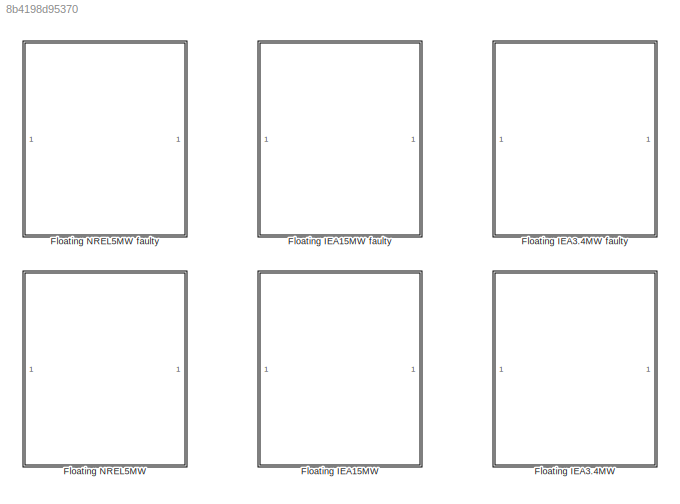
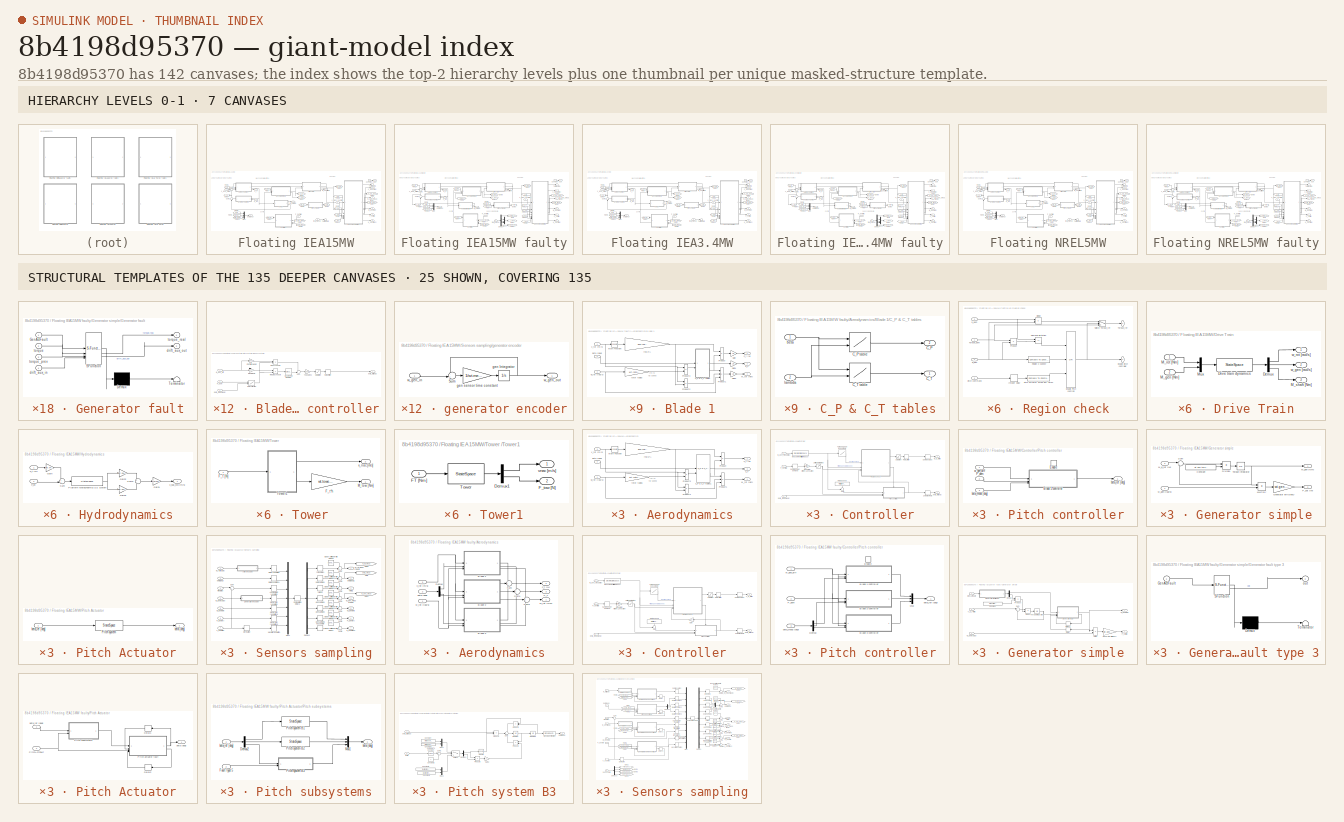
[diagram: thumbnail index - top-2 hierarchy levels (7 canvases) + 25 structural-template representatives of the remaining 135 canvases]
MODEL slx_8b4198d95370
KIND library
CONFIG AbsTol = auto
CONFIG EnableMultiTasking = on
CONFIG FixedStep = auto
CONFIG MaxStep = auto
CONFIG MinStep = auto
CONFIG RelTol = 1e-3
CONFIG SampleTimeConstraint = Unconstrained
CONFIG SolverName = ode45
CONFIG StartTime = 0.0
CONFIG StopTime = 10.0
BLOCK [SubSystem] Floating IEA15MW
  AncestorBlock = libturbines/Floating NREL5MW
  NameLocation = top
  UserDataPersistent = on
BLOCK [SubSystem] Floating IEA15MW faulty
  AncestorBlock = libturbines/Floating NREL5MW faulty
  NameLocation = top
  UserDataPersistent = on
BLOCK [SubSystem] Floating IEA15MW faulty/Aerodynamics
BLOCK [SubSystem] Floating IEA15MW faulty/Aerodynamics/Blade 1
BLOCK [SubSystem] Floating IEA15MW faulty/Aerodynamics/Blade 1/C_P & C_T tables
BLOCK [Outport] Floating IEA15MW faulty/Aerodynamics/Blade 1/C_P & C_T tables/C_P
  Port = 2
BLOCK [Lookup2D] Floating IEA15MW faulty/Aerodynamics/Blade 1/C_P & C_T tables/C_P table 
  ColumnIndex = wt.cp.tsr
  LookUpMeth = Interpolation-Use End Values
  RowIndex = wt.cp.beta
  Table = wt.cp.table
BLOCK [Outport] Floating IEA15MW faulty/Aerodynamics/Blade 1/C_P & C_T tables/C_T
BLOCK [Lookup2D] Floating IEA15MW faulty/Aerodynamics/Blade 1/C_P & C_T tables/C_T table
  ColumnIndex = wt.ct.tsr
  LookUpMeth = Interpolation-Use End Values
  RowIndex = wt.ct.beta
  Table = wt.ct.table
BLOCK [Inport] Floating IEA15MW faulty/Aerodynamics/Blade 1/C_P & C_T tables/beta
BLOCK [Inport] Floating IEA15MW faulty/Aerodynamics/Blade 1/C_P & C_T tables/lambda
  Port = 2
BLOCK [Outport] Floating IEA15MW faulty/Aerodynamics/Blade 1/C_T
  Port = 2
BLOCK [Outport] Floating IEA15MW faulty/Aerodynamics/Blade 1/F_t [N]
BLOCK [Gain] Floating IEA15MW faulty/Aerodynamics/Blade 1/Gain
  Gain = 1/3
BLOCK [Gain] Floating IEA15MW faulty/Aerodynamics/Blade 1/Gain1
  Gain = 1/3
BLOCK [Gain] Floating IEA15MW faulty/Aerodynamics/Blade 1/Gain2
  Gain = 1/3
BLOCK [Outport] Floating IEA15MW faulty/Aerodynamics/Blade 1/M_rot [Nm]
  Port = 3
BLOCK [Math] Floating IEA15MW faulty/Aerodynamics/Blade 1/Math Function
  Operator = square
  SignedPower = on
BLOCK [Product] Floating IEA15MW faulty/Aerodynamics/Blade 1/Product
  InputSameDT = on
  OutDataTypeStr = Inherit: Same as first input
  SaturateOnIntegerOverflow = on
BLOCK [Product] Floating IEA15MW faulty/Aerodynamics/Blade 1/Product1
  InputSameDT = on
  Inputs = **/
  OutDataTypeStr = Inherit: Same as first input
  SaturateOnIntegerOverflow = on
BLOCK [Product] Floating IEA15MW faulty/Aerodynamics/Blade 1/Product2
  InputSameDT = on
  OutDataTypeStr = Inherit: Same as first input
  SaturateOnIntegerOverflow = on
BLOCK [Product] Floating IEA15MW faulty/Aerodynamics/Blade 1/Product3
  InputSameDT = on
  Inputs = /*
  OutDataTypeStr = Inherit: Same as first input
  SaturateOnIntegerOverflow = on
BLOCK [Inport] Floating IEA15MW faulty/Aerodynamics/Blade 1/beta [deg]
  Port = 2
BLOCK [Gain] Floating IEA15MW faulty/Aerodynamics/Blade 1/rho//2*A
  Gain = env.rho*.5* pi * wt.rotor.radius^2
  OutDataTypeStr = Inherit: Same as input
  ParamDataTypeStr = Inherit: Same as input
  SaturateOnIntegerOverflow = on
BLOCK [Gain] Floating IEA15MW faulty/Aerodynamics/Blade 1/rotor radius
  Gain = wt.rotor.radius
  OutDataTypeStr = Inherit: Same as input
  ParamDataTypeStr = Inherit: Same as input
  SaturateOnIntegerOverflow = on
BLOCK [Inport] Floating IEA15MW faulty/Aerodynamics/Blade 1/v_rot [m//s]
BLOCK [Inport] Floating IEA15MW faulty/Aerodynamics/Blade 1/w_rot [rad//s]
  Port = 3
BLOCK [SubSystem] Floating IEA15MW faulty/Aerodynamics/Blade 2
  AncestorBlock = libturbines/Floating faulty NREL5MW1/Aerodynamics/Blade 1
BLOCK [SubSystem] Floating IEA15MW faulty/Aerodynamics/Blade 2/C_P & C_T tables
BLOCK [Outport] Floating IEA15MW faulty/Aerodynamics/Blade 2/C_P & C_T tables/C_P
  Port = 2
BLOCK [Lookup2D] Floating IEA15MW faulty/Aerodynamics/Blade 2/C_P & C_T tables/C_P table 
  ColumnIndex = wt.cp.tsr
  LookUpMeth = Interpolation-Use End Values
  RowIndex = wt.cp.beta
  Table = wt.cp.table
BLOCK [Outport] Floating IEA15MW faulty/Aerodynamics/Blade 2/C_P & C_T tables/C_T
BLOCK [Lookup2D] Floating IEA15MW faulty/Aerodynamics/Blade 2/C_P & C_T tables/C_T table
  ColumnIndex = wt.ct.tsr
  LookUpMeth = Interpolation-Use End Values
  RowIndex = wt.ct.beta
  Table = wt.ct.table
BLOCK [Inport] Floating IEA15MW faulty/Aerodynamics/Blade 2/C_P & C_T tables/beta
BLOCK [Inport] Floating IEA15MW faulty/Aerodynamics/Blade 2/C_P & C_T tables/lambda
  Port = 2
BLOCK [Outport] Floating IEA15MW faulty/Aerodynamics/Blade 2/C_T
  Port = 2
BLOCK [Outport] Floating IEA15MW faulty/Aerodynamics/Blade 2/F_t [N]
BLOCK [Gain] Floating IEA15MW faulty/Aerodynamics/Blade 2/Gain
  Gain = 1/3
BLOCK [Gain] Floating IEA15MW faulty/Aerodynamics/Blade 2/Gain1
  Gain = 1/3
BLOCK [Gain] Floating IEA15MW faulty/Aerodynamics/Blade 2/Gain2
  Gain = 1/3
BLOCK [Outport] Floating IEA15MW faulty/Aerodynamics/Blade 2/M_rot [Nm]
  Port = 3
BLOCK [Math] Floating IEA15MW faulty/Aerodynamics/Blade 2/Math Function
  Operator = square
  SignedPower = on
BLOCK [Product] Floating IEA15MW faulty/Aerodynamics/Blade 2/Product
  InputSameDT = on
  OutDataTypeStr = Inherit: Same as first input
  SaturateOnIntegerOverflow = on
BLOCK [Product] Floating IEA15MW faulty/Aerodynamics/Blade 2/Product1
  InputSameDT = on
  Inputs = **/
  OutDataTypeStr = Inherit: Same as first input
  SaturateOnIntegerOverflow = on
BLOCK [Product] Floating IEA15MW faulty/Aerodynamics/Blade 2/Product2
  InputSameDT = on
  OutDataTypeStr = Inherit: Same as first input
  SaturateOnIntegerOverflow = on
BLOCK [Product] Floating IEA15MW faulty/Aerodynamics/Blade 2/Product3
  InputSameDT = on
  Inputs = /*
  OutDataTypeStr = Inherit: Same as first input
  SaturateOnIntegerOverflow = on
BLOCK [Inport] Floating IEA15MW faulty/Aerodynamics/Blade 2/beta [deg]
  Port = 2
BLOCK [Gain] Floating IEA15MW faulty/Aerodynamics/Blade 2/rho//2*A
  Gain = env.rho*.5* pi * wt.rotor.radius^2
  OutDataTypeStr = Inherit: Same as input
  ParamDataTypeStr = Inherit: Same as input
  SaturateOnIntegerOverflow = on
BLOCK [Gain] Floating IEA15MW faulty/Aerodynamics/Blade 2/rotor radius
  Gain = wt.rotor.radius
  OutDataTypeStr = Inherit: Same as input
  ParamDataTypeStr = Inherit: Same as input
  SaturateOnIntegerOverflow = on
BLOCK [Inport] Floating IEA15MW faulty/Aerodynamics/Blade 2/v_rot [m//s]
BLOCK [Inport] Floating IEA15MW faulty/Aerodynamics/Blade 2/w_rot [rad//s]
  Port = 3
BLOCK [SubSystem] Floating IEA15MW faulty/Aerodynamics/Blade 3
  AncestorBlock = libturbines/Floating faulty NREL5MW1/Aerodynamics/Blade 1
BLOCK [SubSystem] Floating IEA15MW faulty/Aerodynamics/Blade 3/C_P & C_T tables
BLOCK [Outport] Floating IEA15MW faulty/Aerodynamics/Blade 3/C_P & C_T tables/C_P
  Port = 2
BLOCK [Lookup2D] Floating IEA15MW faulty/Aerodynamics/Blade 3/C_P & C_T tables/C_P table 
  ColumnIndex = wt.cp.tsr
  LookUpMeth = Interpolation-Use End Values
  RowIndex = wt.cp.beta
  Table = wt.cp.table
BLOCK [Outport] Floating IEA15MW faulty/Aerodynamics/Blade 3/C_P & C_T tables/C_T
BLOCK [Lookup2D] Floating IEA15MW faulty/Aerodynamics/Blade 3/C_P & C_T tables/C_T table
  ColumnIndex = wt.ct.tsr
  LookUpMeth = Interpolation-Use End Values
  RowIndex = wt.ct.beta
  Table = wt.ct.table
BLOCK [Inport] Floating IEA15MW faulty/Aerodynamics/Blade 3/C_P & C_T tables/beta
BLOCK [Inport] Floating IEA15MW faulty/Aerodynamics/Blade 3/C_P & C_T tables/lambda
  Port = 2
BLOCK [Outport] Floating IEA15MW faulty/Aerodynamics/Blade 3/C_T
  Port = 2
BLOCK [Outport] Floating IEA15MW faulty/Aerodynamics/Blade 3/F_t [N]
BLOCK [Gain] Floating IEA15MW faulty/Aerodynamics/Blade 3/Gain
  Gain = 1/3
BLOCK [Gain] Floating IEA15MW faulty/Aerodynamics/Blade 3/Gain1
  Gain = 1/3
BLOCK [Gain] Floating IEA15MW faulty/Aerodynamics/Blade 3/Gain2
  Gain = 1/3
BLOCK [Outport] Floating IEA15MW faulty/Aerodynamics/Blade 3/M_rot [Nm]
  Port = 3
BLOCK [Math] Floating IEA15MW faulty/Aerodynamics/Blade 3/Math Function
  Operator = square
  SignedPower = on
BLOCK [Product] Floating IEA15MW faulty/Aerodynamics/Blade 3/Product
  InputSameDT = on
  OutDataTypeStr = Inherit: Same as first input
  SaturateOnIntegerOverflow = on
BLOCK [Product] Floating IEA15MW faulty/Aerodynamics/Blade 3/Product1
  InputSameDT = on
  Inputs = **/
  OutDataTypeStr = Inherit: Same as first input
  SaturateOnIntegerOverflow = on
BLOCK [Product] Floating IEA15MW faulty/Aerodynamics/Blade 3/Product2
  InputSameDT = on
  OutDataTypeStr = Inherit: Same as first input
  SaturateOnIntegerOverflow = on
BLOCK [Product] Floating IEA15MW faulty/Aerodynamics/Blade 3/Product3
  InputSameDT = on
  Inputs = /*
  OutDataTypeStr = Inherit: Same as first input
  SaturateOnIntegerOverflow = on
BLOCK [Inport] Floating IEA15MW faulty/Aerodynamics/Blade 3/beta [deg]
  Port = 2
BLOCK [Gain] Floating IEA15MW faulty/Aerodynamics/Blade 3/rho//2*A
  Gain = env.rho*.5* pi * wt.rotor.radius^2
  OutDataTypeStr = Inherit: Same as input
  ParamDataTypeStr = Inherit: Same as input
  SaturateOnIntegerOverflow = on
BLOCK [Gain] Floating IEA15MW faulty/Aerodynamics/Blade 3/rotor radius
  Gain = wt.rotor.radius
  OutDataTypeStr = Inherit: Same as input
  ParamDataTypeStr = Inherit: Same as input
  SaturateOnIntegerOverflow = on
BLOCK [Inport] Floating IEA15MW faulty/Aerodynamics/Blade 3/v_rot [m//s]
BLOCK [Inport] Floating IEA15MW faulty/Aerodynamics/Blade 3/w_rot [rad//s]
  Port = 3
BLOCK [Outport] Floating IEA15MW faulty/Aerodynamics/C_T
  Port = 3
BLOCK [Demux] Floating IEA15MW faulty/Aerodynamics/Demux
  Outputs = 3
BLOCK [Outport] Floating IEA15MW faulty/Aerodynamics/F_t [N]
  Port = 2
BLOCK [Outport] Floating IEA15MW faulty/Aerodynamics/M_rot [Nm]
BLOCK [Sum] Floating IEA15MW faulty/Aerodynamics/Sum
  Inputs = +++
BLOCK [Sum] Floating IEA15MW faulty/Aerodynamics/Sum1
  Inputs = +++
BLOCK [Sum] Floating IEA15MW faulty/Aerodynamics/Sum2
  Inputs = +++
BLOCK [Inport] Floating IEA15MW faulty/Aerodynamics/beta [deg]
  Port = 2
BLOCK [Inport] Floating IEA15MW faulty/Aerodynamics/v_rot [m//s]
  Port = 3
BLOCK [Inport] Floating IEA15MW faulty/Aerodynamics/w_rot [rad//s]
BLOCK [Outport] Floating IEA15MW faulty/C_T
  Port = 2
BLOCK [Constant] Floating IEA15MW faulty/Constant
  Value = 0
BLOCK [SubSystem] Floating IEA15MW faulty/Controller
BLOCK [Gain] Floating IEA15MW faulty/Controller/Gain
  Gain = [1 0 0]
  Multiplication = Matrix(K*u) (u vector)
  NameLocation = top
BLOCK [Gain] Floating IEA15MW faulty/Controller/Generator efficiency compensation
  Gain = 1/wt.ctrl.gen.effeciency
BLOCK [Saturate] Floating IEA15MW faulty/Controller/Limit power to rated
  LowerLimit = 0
  UpperLimit = wt.ctrl.p_rated
BLOCK [DiscreteStateSpace] Floating IEA15MW faulty/Controller/Measurement filter (low pass)
  A = wt.ctrl.alpha
  B = 1-wt.ctrl.alpha
  C = wt.ctrl.alpha
  D = 1-wt.ctrl.alpha
  InitialCondition = wt.ctrl.gen.ini
  SampleTime = wt.ctrl.Ts
BLOCK [Inport] Floating IEA15MW faulty/Controller/P_dem [W]
BLOCK [SubSystem] Floating IEA15MW faulty/Controller/Pitch controller
  TreatAsAtomicUnit = on
BLOCK [SubSystem] Floating IEA15MW faulty/Controller/Pitch controller/Blade 1 controller
BLOCK [DiscreteIntegrator] Floating IEA15MW faulty/Controller/Pitch controller/Blade 1 controller/Discrete-Time Integrator
  ICPrevOutput = DiscIntNeverNeededParam
  ICPrevScaledInput = DiscIntNeverNeededParam
  LimitOutput = on
  LowerSaturationLimit = wt.ctrl.pitch.llim
  SampleTime = wt.ctrl.Ts
  UpperSaturationLimit = wt.ctrl.pitch.ulim*pi/180
BLOCK [Lookup2D] Floating IEA15MW faulty/Controller/Pitch controller/Blade 1 controller/Gain correction
  ColumnIndex = wt.ctrl.pitch.beta
  InputSameDT = off
  LookUpMeth = Interpolation-Use End Values
  RowIndex = wt.ctrl.pitch.pwr
  SaturateOnIntegerOverflow = off
  Table = wt.ctrl.pitch.gs
BLOCK [Gain] Floating IEA15MW faulty/Controller/Pitch controller/Blade 1 controller/Integral gain
  Gain = (1-0.999*noiseFlag)*wt.ctrl.pitch.Igain
BLOCK [Product] Floating IEA15MW faulty/Controller/Pitch controller/Blade 1 controller/Integral schedule
  Inputs = */
  RndMeth = Zero
BLOCK [Inport] Floating IEA15MW faulty/Controller/Pitch controller/Blade 1 controller/P_dem
  Port = 2
BLOCK [Product] Floating IEA15MW faulty/Controller/Pitch controller/Blade 1 controller/Prop schedule
  Inputs = */
  RndMeth = Zero
BLOCK [Gain] Floating IEA15MW faulty/Controller/Pitch controller/Blade 1 controller/Proportional gain
  Gain = (1-0.3*noiseFlag)*wt.ctrl.pitch.Pgain
BLOCK [RateLimiter] Floating IEA15MW faulty/Controller/Pitch controller/Blade 1 controller/Rate Limiter
  FallingSlewLimit = -wt.ctrl.pitch.ratelim
  InitialCondition = wt.ctrl.pitch.ini
  RisingSlewLimit = wt.ctrl.pitch.ratelim
  SampleTimeMode = inherited
BLOCK [Saturate] Floating IEA15MW faulty/Controller/Pitch controller/Blade 1 controller/Saturation
  LowerLimit = 0
  UpperLimit = wt.ctrl.pitch.ulim
BLOCK [Sum] Floating IEA15MW faulty/Controller/Pitch controller/Blade 1 controller/Sum
  Inputs = ++|
BLOCK [Gain] Floating IEA15MW faulty/Controller/Pitch controller/Blade 1 controller/To degrees
  Gain = 180/pi
BLOCK [Inport] Floating IEA15MW faulty/Controller/Pitch controller/Blade 1 controller/beta_meas [deg]
  Port = 3
BLOCK [Outport] Floating IEA15MW faulty/Controller/Pitch controller/Blade 1 controller/beta_ref [deg]
BLOCK [Inport] Floating IEA15MW faulty/Controller/Pitch controller/Blade 1 controller/w_gen_diff
BLOCK [SubSystem] Floating IEA15MW faulty/Controller/Pitch controller/Blade 2 controller
BLOCK [DiscreteIntegrator] Floating IEA15MW faulty/Controller/Pitch controller/Blade 2 controller/Discrete-Time Integrator
  ICPrevOutput = DiscIntNeverNeededParam
  ICPrevScaledInput = DiscIntNeverNeededParam
  LimitOutput = on
  LowerSaturationLimit = wt.ctrl.pitch.llim
  SampleTime = wt.ctrl.Ts
  UpperSaturationLimit = wt.ctrl.pitch.ulim*pi/180
BLOCK [Lookup2D] Floating IEA15MW faulty/Controller/Pitch controller/Blade 2 controller/Gain correction
  ColumnIndex = wt.ctrl.pitch.beta
  InputSameDT = off
  LookUpMeth = Interpolation-Use End Values
  RowIndex = wt.ctrl.pitch.pwr
  SaturateOnIntegerOverflow = off
  Table = wt.ctrl.pitch.gs
BLOCK [Gain] Floating IEA15MW faulty/Controller/Pitch controller/Blade 2 controller/Integral gain
  Gain = (1-0.999*noiseFlag)*wt.ctrl.pitch.Igain
BLOCK [Product] Floating IEA15MW faulty/Controller/Pitch controller/Blade 2 controller/Integral schedule
  Inputs = */
  RndMeth = Zero
BLOCK [Inport] Floating IEA15MW faulty/Controller/Pitch controller/Blade 2 controller/P_dem
  Port = 2
BLOCK [Product] Floating IEA15MW faulty/Controller/Pitch controller/Blade 2 controller/Prop schedule
  Inputs = */
  RndMeth = Zero
BLOCK [Gain] Floating IEA15MW faulty/Controller/Pitch controller/Blade 2 controller/Proportional gain
  Gain = (1-0.3*noiseFlag)*wt.ctrl.pitch.Pgain
BLOCK [RateLimiter] Floating IEA15MW faulty/Controller/Pitch controller/Blade 2 controller/Rate Limiter
  FallingSlewLimit = -wt.ctrl.pitch.ratelim
  InitialCondition = wt.ctrl.pitch.ini
  RisingSlewLimit = wt.ctrl.pitch.ratelim
  SampleTimeMode = inherited
BLOCK [Saturate] Floating IEA15MW faulty/Controller/Pitch controller/Blade 2 controller/Saturation
  LowerLimit = 0
  UpperLimit = wt.ctrl.pitch.ulim
BLOCK [Sum] Floating IEA15MW faulty/Controller/Pitch controller/Blade 2 controller/Sum
  Inputs = ++|
BLOCK [Gain] Floating IEA15MW faulty/Controller/Pitch controller/Blade 2 controller/To degrees
  Gain = 180/pi
BLOCK [Inport] Floating IEA15MW faulty/Controller/Pitch controller/Blade 2 controller/beta_meas [deg]
  Port = 3
BLOCK [Outport] Floating IEA15MW faulty/Controller/Pitch controller/Blade 2 controller/beta_ref [deg]
BLOCK [Inport] Floating IEA15MW faulty/Controller/Pitch controller/Blade 2 controller/w_gen_diff
BLOCK [SubSystem] Floating IEA15MW faulty/Controller/Pitch controller/Blade 3 controller
BLOCK [DiscreteIntegrator] Floating IEA15MW faulty/Controller/Pitch controller/Blade 3 controller/Discrete-Time Integrator
  ICPrevOutput = DiscIntNeverNeededParam
  ICPrevScaledInput = DiscIntNeverNeededParam
  LimitOutput = on
  LowerSaturationLimit = wt.ctrl.pitch.llim
  SampleTime = wt.ctrl.Ts
  UpperSaturationLimit = wt.ctrl.pitch.ulim*pi/180
BLOCK [Lookup2D] Floating IEA15MW faulty/Controller/Pitch controller/Blade 3 controller/Gain correction
  ColumnIndex = wt.ctrl.pitch.beta
  InputSameDT = off
  LookUpMeth = Interpolation-Use End Values
  RowIndex = wt.ctrl.pitch.pwr
  SaturateOnIntegerOverflow = off
  Table = wt.ctrl.pitch.gs
BLOCK [Gain] Floating IEA15MW faulty/Controller/Pitch controller/Blade 3 controller/Integral gain
  Gain = (1-0.999*noiseFlag)*wt.ctrl.pitch.Igain
BLOCK [Product] Floating IEA15MW faulty/Controller/Pitch controller/Blade 3 controller/Integral schedule
  Inputs = */
  RndMeth = Zero
BLOCK [Inport] Floating IEA15MW faulty/Controller/Pitch controller/Blade 3 controller/P_dem
  Port = 2
BLOCK [Product] Floating IEA15MW faulty/Controller/Pitch controller/Blade 3 controller/Prop schedule
  Inputs = */
  RndMeth = Zero
BLOCK [Gain] Floating IEA15MW faulty/Controller/Pitch controller/Blade 3 controller/Proportional gain
  Gain = (1-0.3*noiseFlag)*wt.ctrl.pitch.Pgain
BLOCK [RateLimiter] Floating IEA15MW faulty/Controller/Pitch controller/Blade 3 controller/Rate Limiter
  FallingSlewLimit = -wt.ctrl.pitch.ratelim
  InitialCondition = wt.ctrl.pitch.ini
  RisingSlewLimit = wt.ctrl.pitch.ratelim
  SampleTimeMode = inherited
BLOCK [Saturate] Floating IEA15MW faulty/Controller/Pitch controller/Blade 3 controller/Saturation
  LowerLimit = 0
  UpperLimit = wt.ctrl.pitch.ulim
BLOCK [Sum] Floating IEA15MW faulty/Controller/Pitch controller/Blade 3 controller/Sum
  Inputs = ++|
BLOCK [Gain] Floating IEA15MW faulty/Controller/Pitch controller/Blade 3 controller/To degrees
  Gain = 180/pi
BLOCK [Inport] Floating IEA15MW faulty/Controller/Pitch controller/Blade 3 controller/beta_meas [deg]
  Port = 3
BLOCK [Outport] Floating IEA15MW faulty/Controller/Pitch controller/Blade 3 controller/beta_ref [deg]
BLOCK [Inport] Floating IEA15MW faulty/Controller/Pitch controller/Blade 3 controller/w_gen_diff
BLOCK [Demux] Floating IEA15MW faulty/Controller/Pitch controller/Demux
  Outputs = 3
BLOCK [EnablePort] Floating IEA15MW faulty/Controller/Pitch controller/Enable
  PropagateVarSize = During execution
  StatesWhenEnabling = reset
BLOCK [Mux] Floating IEA15MW faulty/Controller/Pitch controller/Mux
  DisplayOption = bar
  Inputs = 3
BLOCK [Inport] Floating IEA15MW faulty/Controller/Pitch controller/P_dem
  Port = 2
BLOCK [Inport] Floating IEA15MW faulty/Controller/Pitch controller/beta_meas [deg]
  Port = 3
BLOCK [Outport] Floating IEA15MW faulty/Controller/Pitch controller/beta_ref [deg]
  InitialOutput = wt.ctrl.torq.beta
  OutputWhenDisabled = reset
BLOCK [Inport] Floating IEA15MW faulty/Controller/Pitch controller/w_gen_diff
BLOCK [RateLimiter] Floating IEA15MW faulty/Controller/Rate Limiter
  FallingSlewLimit = -wt.ctrl.torq.ratelim
  InitialCondition = wt.ctrl.torq.ini
  RisingSlewLimit = wt.ctrl.torq.ratelim
  SampleTimeMode = inherited
BLOCK [Constant] Floating IEA15MW faulty/Controller/Rated speed
  NameLocation = top
  Value = wt.ctrl.gen.rated
BLOCK [SubSystem] Floating IEA15MW faulty/Controller/Region check
  NameLocation = top
BLOCK [RelationalOperator] Floating IEA15MW faulty/Controller/Region check/Demand limitation
  InputSameDT = off
  Operator = <=
  OutDataTypeStr = boolean
BLOCK [Product] Floating IEA15MW faulty/Controller/Region check/Divide
  Inputs = */
BLOCK [Logic] Floating IEA15MW faulty/Controller/Region check/Enable Pitch control?
  AllPortsSameDT = off
  Inputs = 3
  Operator = OR
  OutDataTypeStr = boolean
BLOCK [Outport] Floating IEA15MW faulty/Controller/Region check/Enable pitch controller
  Port = 2
BLOCK [Delay] Floating IEA15MW faulty/Controller/Region check/Integer Delay
  DelayLength = 1
  InputPortMap = u0
BLOCK [Reference] Floating IEA15MW faulty/Controller/Region check/Pitch actuator active last time?  REF=simulink/Logic and Bit
Operations/Compare
To Constant
  SourceBlock = simulink/Logic and Bit\nOperations/Compare\nTo Constant
  SourceType = Compare To Constant
BLOCK [Product] Floating IEA15MW faulty/Controller/Region check/Product
  RndMeth = Zero
BLOCK [Reference] Floating IEA15MW faulty/Controller/Region check/Region 3 speed?  REF=simulink/Logic and Bit
Operations/Compare
To Constant
  SourceBlock = simulink/Logic and Bit\nOperations/Compare\nTo Constant
  SourceType = Compare To Constant
BLOCK [Switch] Floating IEA15MW faulty/Controller/Region check/Switch Torque_ref
  InputSameDT = off
  SaturateOnIntegerOverflow = off
  Threshold = 1
BLOCK [Inport] Floating IEA15MW faulty/Controller/Region check/Torque_dem
BLOCK [Outport] Floating IEA15MW faulty/Controller/Region check/Torque_ref
BLOCK [Inport] Floating IEA15MW faulty/Controller/Region check/p_dem
  Port = 3
BLOCK [Inport] Floating IEA15MW faulty/Controller/Region check/pitch command
  Port = 4
BLOCK [Inport] Floating IEA15MW faulty/Controller/Region check/w_gen
  Port = 2
BLOCK [ZeroOrderHold] Floating IEA15MW faulty/Controller/Sample output
  SampleTime = wt.ctrl.Ts
BLOCK [ZeroOrderHold] Floating IEA15MW faulty/Controller/Sample power demand
  SampleTime = wt.ctrl.Ts
BLOCK [Saturate] Floating IEA15MW faulty/Controller/Saturation
  LowerLimit = 0
  UpperLimit = wt.ctrl.torq.lim
BLOCK [Sum] Floating IEA15MW faulty/Controller/Sum
  Inputs = +-|
BLOCK [Outport] Floating IEA15MW faulty/Controller/T_g_ref [W]
  Port = 2
BLOCK [Lookup] Floating IEA15MW faulty/Controller/Torque - speed lookup table
  InputValues = wt.ctrl.torq.wg
  LookUpMeth = Interpolation-Use End Values
  SaturateOnIntegerOverflow = off
  Table = wt.ctrl.torq.M
BLOCK [ZeroOrderHold] Floating IEA15MW faulty/Controller/Zero-Order Hold
  SampleTime = wt.ctrl.Ts
BLOCK [Inport] Floating IEA15MW faulty/Controller/beta_meas [deg]
  Port = 3
BLOCK [Outport] Floating IEA15MW faulty/Controller/beta_ref [deg]
BLOCK [Inport] Floating IEA15MW faulty/Controller/w_gen_meas [m//s]
  Port = 2
BLOCK [Demux] Floating IEA15MW faulty/Demux
  Outputs = 6
BLOCK [SubSystem] Floating IEA15MW faulty/Drive Train
BLOCK [Demux] Floating IEA15MW faulty/Drive Train/Demux
  Outputs = 3
BLOCK [StateSpace] Floating IEA15MW faulty/Drive Train/Drive train dynamics
  A = wt.dt.ssA
  B = wt.dt.ssB
  C = wt.dt.ssC
  D = wt.dt.ssD
  InitialCondition = [wt.rotor.ini;wt.gen.ini;0]
BLOCK [Inport] Floating IEA15MW faulty/Drive Train/M_gen [Nm]
  Port = 2
BLOCK [Inport] Floating IEA15MW faulty/Drive Train/M_rot [Nm]
BLOCK [Outport] Floating IEA15MW faulty/Drive Train/M_shaft [Nm]
  Port = 3
BLOCK [Mux] Floating IEA15MW faulty/Drive Train/Mux
  DisplayOption = bar
  Inputs = 2
BLOCK [Outport] Floating IEA15MW faulty/Drive Train/w_gen [rad//s]
  Port = 2
BLOCK [Outport] Floating IEA15MW faulty/Drive Train/w_rot [rad//s]
BLOCK [Inport] Floating IEA15MW faulty/F_ex
  Port = 4
BLOCK [From] Floating IEA15MW faulty/From
  GotoTag = f_PitchAct
BLOCK [From] Floating IEA15MW faulty/From1
  GotoTag = beta
BLOCK [From] Floating IEA15MW faulty/From11
  GotoTag = beta_meas
BLOCK [From] Floating IEA15MW faulty/From12
  GotoTag = w_gen
BLOCK [From] Floating IEA15MW faulty/From13
  GotoTag = P_gen
BLOCK [From] Floating IEA15MW faulty/From14
  GotoTag = M_gen
BLOCK [From] Floating IEA15MW faulty/From15
  GotoTag = v_nac
BLOCK [From] Floating IEA15MW faulty/From2
  GotoTag = f_Sens
BLOCK [From] Floating IEA15MW faulty/From3
  GotoTag = beta
  NameLocation = top
BLOCK [From] Floating IEA15MW faulty/From4
  GotoTag = beta_ref
BLOCK [From] Floating IEA15MW faulty/From5
  GotoTag = beta
  NameLocation = top
BLOCK [From] Floating IEA15MW faulty/From6
  GotoTag = f_GenAct
BLOCK [From] Floating IEA15MW faulty/From7
  GotoTag = w_gen_meas
  NameLocation = top
BLOCK [From] Floating IEA15MW faulty/From8
  GotoTag = beta_meas
  NameLocation = top
BLOCK [From] Floating IEA15MW faulty/From9
  GotoTag = beta_ref
  NameLocation = top
BLOCK [SubSystem] Floating IEA15MW faulty/Generator simple
BLOCK [Constant] Floating IEA15MW faulty/Generator simple/Constant
  Value = wt.gen.timeconstant
BLOCK [Delay] Floating IEA15MW faulty/Generator simple/Delay
  DelayLength = 1
  InitialCondition = 0
  InputPortMap = u0
  NameLocation = top
BLOCK [Delay] Floating IEA15MW faulty/Generator simple/Delay1
  DelayLength = 1
  InitialCondition = 0
  InputPortMap = u0
  NameLocation = top
BLOCK [Demux] Floating IEA15MW faulty/Generator simple/Demux
  Outputs = 2
BLOCK [Product] Floating IEA15MW faulty/Generator simple/Divide1
  Inputs = */
BLOCK [Inport] Floating IEA15MW faulty/Generator simple/GenActFault
  Port = 3
BLOCK [Gain] Floating IEA15MW faulty/Generator simple/Generator efficiency
  Gain = wt.gen.effeciency
BLOCK [SubSystem] Floating IEA15MW faulty/Generator simple/Generator fault
  ErrorFcn = Stateflow.Translate.translate
  PermitHierarchicalResolution = ExplicitOnly
  SFBlockType = MATLAB Function
  TreatAsAtomicUnit = on
BLOCK [SubSystem] Floating IEA15MW faulty/Generator simple/Generator fault type 3
  ErrorFcn = Stateflow.Translate.translate
  PermitHierarchicalResolution = ExplicitOnly
  SFBlockType = MATLAB Function
  TreatAsAtomicUnit = on
BLOCK [Demux] Floating IEA15MW faulty/Generator simple/Generator fault type 3/ Demux 
  Outputs = 1
BLOCK [S-Function] Floating IEA15MW faulty/Generator simple/Generator fault type 3/ SFunction 
  EnableBusSupport = off
  FunctionName = sf_sfun
  Parameters = faultOptions
  PortCounts = [1 2]
  SFcnIsStateOwnerBlock = off
  SFunctionDeploymentMode = off
  Tag = Stateflow S-Function 5
BLOCK [Terminator] Floating IEA15MW faulty/Generator simple/Generator fault type 3/ Terminator 
BLOCK [Inport] Floating IEA15MW faulty/Generator simple/Generator fault type 3/GenActFault
BLOCK [Outport] Floating IEA15MW faulty/Generator simple/Generator fault type 3/out
BLOCK [Demux] Floating IEA15MW faulty/Generator simple/Generator fault/ Demux 
  Outputs = 1
BLOCK [S-Function] Floating IEA15MW faulty/Generator simple/Generator fault/ SFunction 
  EnableBusSupport = off
  FunctionName = sf_sfun
  Parameters = faultOptions
  PortCounts = [4 3]
  SFcnIsStateOwnerBlock = off
  SFunctionDeploymentMode = off
  Tag = Stateflow S-Function 2
BLOCK [Terminator] Floating IEA15MW faulty/Generator simple/Generator fault/ Terminator 
BLOCK [Inport] Floating IEA15MW faulty/Generator simple/Generator fault/GenActFault
BLOCK [Inport] Floating IEA15MW faulty/Generator simple/Generator fault/drift_aux_in
  Port = 4
BLOCK [Outport] Floating IEA15MW faulty/Generator simple/Generator fault/drift_aux_out
  Port = 2
BLOCK [Inport] Floating IEA15MW faulty/Generator simple/Generator fault/torque
  Port = 2
BLOCK [Inport] Floating IEA15MW faulty/Generator simple/Generator fault/torque_prev
  Port = 3
BLOCK [Outport] Floating IEA15MW faulty/Generator simple/Generator fault/torque_real
BLOCK [Outport] Floating IEA15MW faulty/Generator simple/M_gen [Nm]
BLOCK [Product] Floating IEA15MW faulty/Generator simple/Multiply
  Inputs = **
BLOCK [Outport] Floating IEA15MW faulty/Generator simple/P_out [W]
  Port = 2
BLOCK [Product] Floating IEA15MW faulty/Generator simple/Product
BLOCK [Sum] Floating IEA15MW faulty/Generator simple/Sum
  Inputs = |+-
BLOCK [Inport] Floating IEA15MW faulty/Generator simple/T_g_ref [W]
  Port = 2
BLOCK [Integrator] Floating IEA15MW faulty/Generator simple/Torque Integrator
  InitialCondition = wt.gen.torq.ini
BLOCK [Inport] Floating IEA15MW faulty/Generator simple/w_gen [rad//s]
BLOCK [Goto] Floating IEA15MW faulty/Goto
  GotoTag = f_PitchAct
BLOCK [Goto] Floating IEA15MW faulty/Goto1
  GotoTag = w_gen
BLOCK [Goto] Floating IEA15MW faulty/Goto10
  GotoTag = P_gen
BLOCK [Goto] Floating IEA15MW faulty/Goto2
  GotoTag = f_Sens
BLOCK [Goto] Floating IEA15MW faulty/Goto3
  GotoTag = beta
BLOCK [Goto] Floating IEA15MW faulty/Goto4
  GotoTag = beta_ref
  NameLocation = top
BLOCK [Goto] Floating IEA15MW faulty/Goto5
  GotoTag = M_gen
BLOCK [Goto] Floating IEA15MW faulty/Goto6
  GotoTag = w_gen_meas
BLOCK [Goto] Floating IEA15MW faulty/Goto7
  GotoTag = beta_meas
BLOCK [Goto] Floating IEA15MW faulty/Goto8
  GotoTag = f_GenAct
BLOCK [Goto] Floating IEA15MW faulty/Goto9
  GotoTag = v_nac
BLOCK [SubSystem] Floating IEA15MW faulty/Hydrodynamics
BLOCK [Inport] Floating IEA15MW faulty/Hydrodynamics/F_ex
  Port = 2
BLOCK [Inport] Floating IEA15MW faulty/Hydrodynamics/F_t [N]
BLOCK [Gain] Floating IEA15MW faulty/Hydrodynamics/Gain
  Gain = plat.nF2pT
  Multiplication = Matrix(K*u)
BLOCK [Gain] Floating IEA15MW faulty/Hydrodynamics/Gain1
  Gain = hydroFlag
BLOCK [Gain] Floating IEA15MW faulty/Hydrodynamics/Gain2
  Gain = plat.pM2nM_surge
  Multiplication = Matrix(K*u)
BLOCK [Gain] Floating IEA15MW faulty/Hydrodynamics/Gain3
  Gain = plat.pM2nM_pitch
  Multiplication = Matrix(K*u)
BLOCK [StateSpace] Floating IEA15MW faulty/Hydrodynamics/Platform hydrodynamics SS system
  A = plat.HydSys.a
  B = plat.HydSys.b
  C = plat.HydSys.c
  D = plat.HydSys.d
  InitialCondition = 0
BLOCK [Sum] Floating IEA15MW faulty/Hydrodynamics/Sum
  Inputs = ++|
BLOCK [Sum] Floating IEA15MW faulty/Hydrodynamics/Sum2
  Inputs = +|+
BLOCK [Outport] Floating IEA15MW faulty/Hydrodynamics/v_nac_hyd [m//s]
BLOCK [Outport] Floating IEA15MW faulty/M_Shaft [Nm]
  Port = 6
BLOCK [Outport] Floating IEA15MW faulty/M_gen [Nm]
  Port = 8
BLOCK [Outport] Floating IEA15MW faulty/M_tow [Nm]
  Port = 7
BLOCK [Mux] Floating IEA15MW faulty/Mux
  DisplayOption = bar
  Inputs = 3
BLOCK [Mux] Floating IEA15MW faulty/Mux1
  DisplayOption = bar
BLOCK [Inport] Floating IEA15MW faulty/P_dem [W]
BLOCK [Outport] Floating IEA15MW faulty/P_out [W]
BLOCK [SubSystem] Floating IEA15MW faulty/Pitch Actuator
BLOCK [Delay] Floating IEA15MW faulty/Pitch Actuator/Delay1
  DelayLength = 1
  InitialCondition = 0
  InputPortMap = u0
  NameLocation = top
BLOCK [Delay] Floating IEA15MW faulty/Pitch Actuator/Delay2
  DelayLength = 1
  InitialCondition = 0
  InputPortMap = u0
  NameLocation = top
BLOCK [SubSystem] Floating IEA15MW faulty/Pitch Actuator/Pitch actuator fault
  ErrorFcn = Stateflow.Translate.translate
  PermitHierarchicalResolution = ExplicitOnly
  SFBlockType = MATLAB Function
  TreatAsAtomicUnit = on
BLOCK [Demux] Floating IEA15MW faulty/Pitch Actuator/Pitch actuator fault/ Demux 
  Outputs = 1
BLOCK [S-Function] Floating IEA15MW faulty/Pitch Actuator/Pitch actuator fault/ SFunction 
  EnableBusSupport = off
  FunctionName = sf_sfun
  Parameters = faultOptions
  PortCounts = [4 3]
  SFcnIsStateOwnerBlock = off
  SFunctionDeploymentMode = off
  Tag = Stateflow S-Function 8
BLOCK [Terminator] Floating IEA15MW faulty/Pitch Actuator/Pitch actuator fault/ Terminator 
BLOCK [Inport] Floating IEA15MW faulty/Pitch Actuator/Pitch actuator fault/PitchActFault
  Port = 3
BLOCK [Inport] Floating IEA15MW faulty/Pitch Actuator/Pitch actuator fault/beta
BLOCK [Inport] Floating IEA15MW faulty/Pitch Actuator/Pitch actuator fault/beta_prev
  Port = 2
BLOCK [Outport] Floating IEA15MW faulty/Pitch Actuator/Pitch actuator fault/beta_real
BLOCK [Inport] Floating IEA15MW faulty/Pitch Actuator/Pitch actuator fault/drift_aux_in
  Port = 4
BLOCK [Outport] Floating IEA15MW faulty/Pitch Actuator/Pitch actuator fault/drift_aux_out
  Port = 2
BLOCK [SubSystem] Floating IEA15MW faulty/Pitch Actuator/Pitch subsystems
BLOCK [Demux] Floating IEA15MW faulty/Pitch Actuator/Pitch subsystems/Demux2
  Outputs = 3
BLOCK [Inport] Floating IEA15MW faulty/Pitch Actuator/Pitch subsystems/Fault type 5
  Port = 2
BLOCK [Mux] Floating IEA15MW faulty/Pitch Actuator/Pitch subsystems/Mux1
  DisplayOption = bar
  Inputs = 3
BLOCK [StateSpace] Floating IEA15MW faulty/Pitch Actuator/Pitch subsystems/Pitch system B1
  A = wt.pitch.ssA
  B = wt.pitch.ssB
  C = wt.pitch.ssC
  D = wt.pitch.ssD
  InitialCondition = 0
BLOCK [StateSpace] Floating IEA15MW faulty/Pitch Actuator/Pitch subsystems/Pitch system B2
  A = wt.pitch.ssA
  B = wt.pitch.ssB
  C = wt.pitch.ssC
  D = wt.pitch.ssD
  InitialCondition = 0
BLOCK [SubSystem] Floating IEA15MW faulty/Pitch Actuator/Pitch subsystems/Pitch system B3
BLOCK [Reference] Floating IEA15MW faulty/Pitch Actuator/Pitch subsystems/Pitch system B3/Compare To Constant  REF=simulink/Logic and Bit
Operations/Compare
To Constant
  SourceBlock = simulink/Logic and Bit\nOperations/Compare\nTo Constant
  SourceType = Compare To Constant
BLOCK [Constant] Floating IEA15MW faulty/Pitch Actuator/Pitch subsystems/Pitch system B3/Constant
  Value = wt.pitch.omega
BLOCK [Constant] Floating IEA15MW faulty/Pitch Actuator/Pitch subsystems/Pitch system B3/Constant1
  Value = wt.pitch.damp
BLOCK [Constant] Floating IEA15MW faulty/Pitch Actuator/Pitch subsystems/Pitch system B3/Constant2
BLOCK [Constant] Floating IEA15MW faulty/Pitch Actuator/Pitch subsystems/Pitch system B3/Constant3
  Value = faultOptions.pitchNatFreq
BLOCK [Constant] Floating IEA15MW faulty/Pitch Actuator/Pitch subsystems/Pitch system B3/Constant4
  Value = faultOptions.pitchDamp
BLOCK [Demux] Floating IEA15MW faulty/Pitch Actuator/Pitch subsystems/Pitch system B3/Demux1
  Outputs = 2
BLOCK [Gain] Floating IEA15MW faulty/Pitch Actuator/Pitch subsystems/Pitch system B3/Gain2
  Gain = 2
BLOCK [Integrator] Floating IEA15MW faulty/Pitch Actuator/Pitch subsystems/Pitch system B3/Integrator
BLOCK [Integrator] Floating IEA15MW faulty/Pitch Actuator/Pitch subsystems/Pitch system B3/Integrator1
BLOCK [Product] Floating IEA15MW faulty/Pitch Actuator/Pitch subsystems/Pitch system B3/Product1
BLOCK [Product] Floating IEA15MW faulty/Pitch Actuator/Pitch subsystems/Pitch system B3/Product2
  NameLocation = top
BLOCK [Product] Floating IEA15MW faulty/Pitch Actuator/Pitch subsystems/Pitch system B3/Product3
  NameLocation = top
BLOCK [Product] Floating IEA15MW faulty/Pitch Actuator/Pitch subsystems/Pitch system B3/Product5
BLOCK [SignalSpecification] Floating IEA15MW faulty/Pitch Actuator/Pitch subsystems/Pitch system B3/Signal Specification
  Dimensions = 1
  OutDataTypeStr = double
BLOCK [Math] Floating IEA15MW faulty/Pitch Actuator/Pitch subsystems/Pitch system B3/Square
  Operator = square
BLOCK [Sum] Floating IEA15MW faulty/Pitch Actuator/Pitch subsystems/Pitch system B3/Sum
  Inputs = -+-
BLOCK [Sum] Floating IEA15MW faulty/Pitch Actuator/Pitch subsystems/Pitch system B3/Sum1
  Inputs = |+-
BLOCK [Switch] Floating IEA15MW faulty/Pitch Actuator/Pitch subsystems/Pitch system B3/Switch1
  Criteria = u2 ~= 0
  InputSameDT = off
  SaturateOnIntegerOverflow = off
BLOCK [Outport] Floating IEA15MW faulty/Pitch Actuator/Pitch subsystems/Pitch system B3/beta [deg]
BLOCK [Inport] Floating IEA15MW faulty/Pitch Actuator/Pitch subsystems/Pitch system B3/beta_ref [deg]
BLOCK [Inport] Floating IEA15MW faulty/Pitch Actuator/Pitch subsystems/Pitch system B3/fault 5
  Port = 2
BLOCK [Mux] Floating IEA15MW faulty/Pitch Actuator/Pitch subsystems/Pitch system B3/mux1
  DisplayOption = bar
  Inputs = 2
BLOCK [Mux] Floating IEA15MW faulty/Pitch Actuator/Pitch subsystems/Pitch system B3/mux2
  DisplayOption = bar
  Inputs = 2
BLOCK [Outport] Floating IEA15MW faulty/Pitch Actuator/Pitch subsystems/beta [deg]
BLOCK [Inport] Floating IEA15MW faulty/Pitch Actuator/Pitch subsystems/beta_ref [deg]
BLOCK [Inport] Floating IEA15MW faulty/Pitch Actuator/PitchActFault
  Port = 2
BLOCK [Outport] Floating IEA15MW faulty/Pitch Actuator/beta [deg]
BLOCK [Inport] Floating IEA15MW faulty/Pitch Actuator/beta_ref [deg]
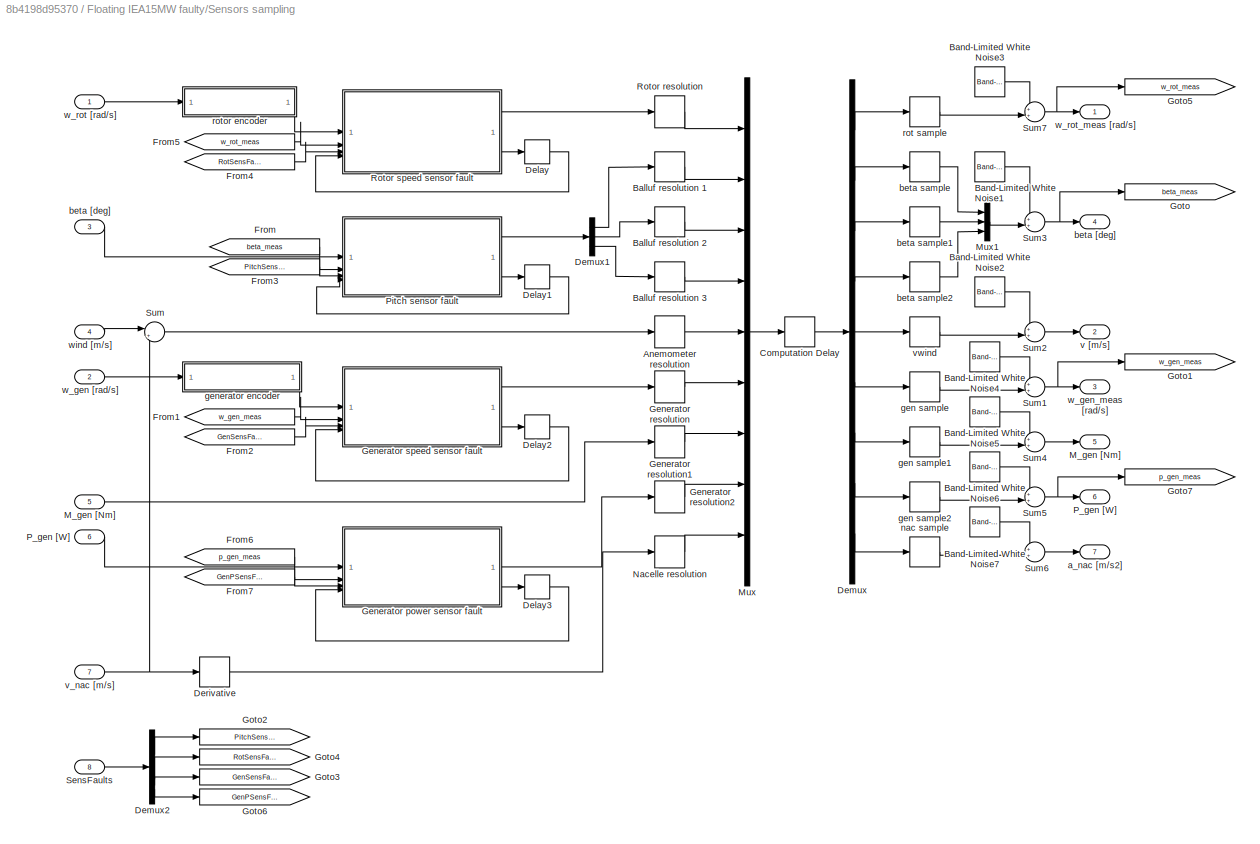
BLOCK [SubSystem] Floating IEA15MW faulty/Sensors sampling
BLOCK [Quantizer] Floating IEA15MW faulty/Sensors sampling/Anemometer resolution
  QuantizationInterval = wt.meas.aneres
BLOCK [Quantizer] Floating IEA15MW faulty/Sensors sampling/Balluf resolution 1
  QuantizationInterval = wt.meas.pitchres
BLOCK [Quantizer] Floating IEA15MW faulty/Sensors sampling/Balluf resolution 2
  QuantizationInterval = wt.meas.pitchres
BLOCK [Quantizer] Floating IEA15MW faulty/Sensors sampling/Balluf resolution 3
  QuantizationInterval = wt.meas.pitchres
BLOCK [Reference] Floating IEA15MW faulty/Sensors sampling/Band-Limited White Noise1  REF=simulink/Sources/Band-Limited
White Noise
  SourceBlock = simulink/Sources/Band-Limited\nWhite Noise
  SourceType = Band-Limited White Noise.
BLOCK [Reference] Floating IEA15MW faulty/Sensors sampling/Band-Limited White Noise2  REF=simulink/Sources/Band-Limited
White Noise
  SourceBlock = simulink/Sources/Band-Limited\nWhite Noise
  SourceType = Band-Limited White Noise.
BLOCK [Reference] Floating IEA15MW faulty/Sensors sampling/Band-Limited White Noise3  REF=simulink/Sources/Band-Limited
White Noise
  SourceBlock = simulink/Sources/Band-Limited\nWhite Noise
  SourceType = Band-Limited White Noise.
BLOCK [Reference] Floating IEA15MW faulty/Sensors sampling/Band-Limited White Noise4  REF=simulink/Sources/Band-Limited
White Noise
  SourceBlock = simulink/Sources/Band-Limited\nWhite Noise
  SourceType = Band-Limited White Noise.
BLOCK [Reference] Floating IEA15MW faulty/Sensors sampling/Band-Limited White Noise5  REF=simulink/Sources/Band-Limited
White Noise
  SourceBlock = simulink/Sources/Band-Limited\nWhite Noise
  SourceType = Band-Limited White Noise.
BLOCK [Reference] Floating IEA15MW faulty/Sensors sampling/Band-Limited White Noise6  REF=simulink/Sources/Band-Limited
White Noise
  SourceBlock = simulink/Sources/Band-Limited\nWhite Noise
  SourceType = Band-Limited White Noise.
BLOCK [Reference] Floating IEA15MW faulty/Sensors sampling/Band-Limited White Noise7  REF=simulink/Sources/Band-Limited
White Noise
  SourceBlock = simulink/Sources/Band-Limited\nWhite Noise
  SourceType = Band-Limited White Noise.
BLOCK [TransportDelay] Floating IEA15MW faulty/Sensors sampling/Computation Delay
  DelayTime = wt.meas.delay
  InitialOutput = [wt.rotor.ini wt.pitch.ini wt.pitch.ini wt.pitch.ini 0 wt.gen.ini 0 0 0]
BLOCK [Delay] Floating IEA15MW faulty/Sensors sampling/Delay
  DelayLength = 1
  InitialCondition = 0
  InputPortMap = u0
BLOCK [Delay] Floating IEA15MW faulty/Sensors sampling/Delay1
  DelayLength = 1
  InitialCondition = 0
  InputPortMap = u0
BLOCK [Delay] Floating IEA15MW faulty/Sensors sampling/Delay2
  DelayLength = 1
  InitialCondition = 0
  InputPortMap = u0
BLOCK [Delay] Floating IEA15MW faulty/Sensors sampling/Delay3
  DelayLength = 1
  InitialCondition = 0
  InputPortMap = u0
BLOCK [Demux] Floating IEA15MW faulty/Sensors sampling/Demux
  Outputs = 9
BLOCK [Demux] Floating IEA15MW faulty/Sensors sampling/Demux1
  Outputs = 3
BLOCK [Demux] Floating IEA15MW faulty/Sensors sampling/Demux2
BLOCK [Derivative] Floating IEA15MW faulty/Sensors sampling/Derivative
BLOCK [From] Floating IEA15MW faulty/Sensors sampling/From
  GotoTag = beta_meas
BLOCK [From] Floating IEA15MW faulty/Sensors sampling/From1
  GotoTag = w_gen_meas
BLOCK [From] Floating IEA15MW faulty/Sensors sampling/From2
  GotoTag = GenSensFault
BLOCK [From] Floating IEA15MW faulty/Sensors sampling/From3
  GotoTag = PitchSensFault
BLOCK [From] Floating IEA15MW faulty/Sensors sampling/From4
  GotoTag = RotSensFault
BLOCK [From] Floating IEA15MW faulty/Sensors sampling/From5
  GotoTag = w_rot_meas
BLOCK [From] Floating IEA15MW faulty/Sensors sampling/From6
  GotoTag = p_gen_meas
BLOCK [From] Floating IEA15MW faulty/Sensors sampling/From7
  GotoTag = GenPSensFault
BLOCK [SubSystem] Floating IEA15MW faulty/Sensors sampling/Generator power sensor fault
  ErrorFcn = Stateflow.Translate.translate
  PermitHierarchicalResolution = ExplicitOnly
  SFBlockType = MATLAB Function
  TreatAsAtomicUnit = on
BLOCK [Demux] Floating IEA15MW faulty/Sensors sampling/Generator power sensor fault/ Demux 
  Outputs = 1
BLOCK [S-Function] Floating IEA15MW faulty/Sensors sampling/Generator power sensor fault/ SFunction 
  EnableBusSupport = off
  FunctionName = sf_sfun
  Parameters = faultOptions
  PortCounts = [4 3]
  SFcnIsStateOwnerBlock = off
  SFunctionDeploymentMode = off
  Tag = Stateflow S-Function 11
BLOCK [Terminator] Floating IEA15MW faulty/Sensors sampling/Generator power sensor fault/ Terminator 
BLOCK [Inport] Floating IEA15MW faulty/Sensors sampling/Generator power sensor fault/GenPSenFault
  Port = 3
BLOCK [Inport] Floating IEA15MW faulty/Sensors sampling/Generator power sensor fault/drift_aux_in
  Port = 4
BLOCK [Outport] Floating IEA15MW faulty/Sensors sampling/Generator power sensor fault/drift_aux_out
  Port = 2
BLOCK [Outport] Floating IEA15MW faulty/Sensors sampling/Generator power sensor fault/p_gen_meas
BLOCK [Inport] Floating IEA15MW faulty/Sensors sampling/Generator power sensor fault/p_gen_prev
  Port = 2
BLOCK [Inport] Floating IEA15MW faulty/Sensors sampling/Generator power sensor fault/p_gen_real
BLOCK [Quantizer] Floating IEA15MW faulty/Sensors sampling/Generator resolution
  QuantizationInterval = wt.meas.genres
BLOCK [Quantizer] Floating IEA15MW faulty/Sensors sampling/Generator resolution1
  QuantizationInterval = wt.meas.genres
BLOCK [Quantizer] Floating IEA15MW faulty/Sensors sampling/Generator resolution2
  QuantizationInterval = wt.meas.genres
BLOCK [SubSystem] Floating IEA15MW faulty/Sensors sampling/Generator speed sensor fault
  ErrorFcn = Stateflow.Translate.translate
  PermitHierarchicalResolution = ExplicitOnly
  SFBlockType = MATLAB Function
  TreatAsAtomicUnit = on
BLOCK [Demux] Floating IEA15MW faulty/Sensors sampling/Generator speed sensor fault/ Demux 
  Outputs = 1
BLOCK [S-Function] Floating IEA15MW faulty/Sensors sampling/Generator speed sensor fault/ SFunction 
  EnableBusSupport = off
  FunctionName = sf_sfun
  Parameters = faultOptions
  PortCounts = [4 3]
  SFcnIsStateOwnerBlock = off
  SFunctionDeploymentMode = off
  Tag = Stateflow S-Function 13
BLOCK [Terminator] Floating IEA15MW faulty/Sensors sampling/Generator speed sensor fault/ Terminator 
BLOCK [Inport] Floating IEA15MW faulty/Sensors sampling/Generator speed sensor fault/GenSenFault
  Port = 3
BLOCK [Inport] Floating IEA15MW faulty/Sensors sampling/Generator speed sensor fault/drift_aux_in
  Port = 4
BLOCK [Outport] Floating IEA15MW faulty/Sensors sampling/Generator speed sensor fault/drift_aux_out
  Port = 2
BLOCK [Outport] Floating IEA15MW faulty/Sensors sampling/Generator speed sensor fault/w_gen_meas
BLOCK [Inport] Floating IEA15MW faulty/Sensors sampling/Generator speed sensor fault/w_gen_prev
  Port = 2
BLOCK [Inport] Floating IEA15MW faulty/Sensors sampling/Generator speed sensor fault/w_gen_real
BLOCK [Goto] Floating IEA15MW faulty/Sensors sampling/Goto
  GotoTag = beta_meas
BLOCK [Goto] Floating IEA15MW faulty/Sensors sampling/Goto1
  GotoTag = w_gen_meas
BLOCK [Goto] Floating IEA15MW faulty/Sensors sampling/Goto2
  GotoTag = PitchSensFault
BLOCK [Goto] Floating IEA15MW faulty/Sensors sampling/Goto3
  GotoTag = GenSensFault
BLOCK [Goto] Floating IEA15MW faulty/Sensors sampling/Goto4
  GotoTag = RotSensFault
BLOCK [Goto] Floating IEA15MW faulty/Sensors sampling/Goto5
  GotoTag = w_rot_meas
BLOCK [Goto] Floating IEA15MW faulty/Sensors sampling/Goto6
  GotoTag = GenPSensFault
BLOCK [Goto] Floating IEA15MW faulty/Sensors sampling/Goto7
  GotoTag = p_gen_meas
BLOCK [Outport] Floating IEA15MW faulty/Sensors sampling/M_gen [Nm]
  InitialOutput = 0
  Port = 5
BLOCK [Inport] Floating IEA15MW faulty/Sensors sampling/M_gen [Nm] 
  Port = 5
BLOCK [Mux] Floating IEA15MW faulty/Sensors sampling/Mux
  DisplayOption = bar
  Inputs = 9
BLOCK [Mux] Floating IEA15MW faulty/Sensors sampling/Mux1
  DisplayOption = bar
  Inputs = 3
BLOCK [Quantizer] Floating IEA15MW faulty/Sensors sampling/Nacelle resolution
  QuantizationInterval = wt.meas.nacres
BLOCK [Outport] Floating IEA15MW faulty/Sensors sampling/P_gen [W]
  InitialOutput = 0
  Port = 6
BLOCK [Inport] Floating IEA15MW faulty/Sensors sampling/P_gen [W] 
  Port = 6
BLOCK [SubSystem] Floating IEA15MW faulty/Sensors sampling/Pitch sensor fault
  ErrorFcn = Stateflow.Translate.translate
  PermitHierarchicalResolution = ExplicitOnly
  SFBlockType = MATLAB Function
  TreatAsAtomicUnit = on
BLOCK [Demux] Floating IEA15MW faulty/Sensors sampling/Pitch sensor fault/ Demux 
  Outputs = 1
BLOCK [S-Function] Floating IEA15MW faulty/Sensors sampling/Pitch sensor fault/ SFunction 
  EnableBusSupport = off
  FunctionName = sf_sfun
  Parameters = faultOptions
  PortCounts = [4 3]
  SFcnIsStateOwnerBlock = off
  SFunctionDeploymentMode = off
  Tag = Stateflow S-Function 14
BLOCK [Terminator] Floating IEA15MW faulty/Sensors sampling/Pitch sensor fault/ Terminator 
BLOCK [Inport] Floating IEA15MW faulty/Sensors sampling/Pitch sensor fault/PitchSenFault
  Port = 3
BLOCK [Outport] Floating IEA15MW faulty/Sensors sampling/Pitch sensor fault/beta_meas
BLOCK [Inport] Floating IEA15MW faulty/Sensors sampling/Pitch sensor fault/beta_prev
  Port = 2
BLOCK [Inport] Floating IEA15MW faulty/Sensors sampling/Pitch sensor fault/beta_real
BLOCK [Inport] Floating IEA15MW faulty/Sensors sampling/Pitch sensor fault/drift_aux_in
  Port = 4
BLOCK [Outport] Floating IEA15MW faulty/Sensors sampling/Pitch sensor fault/drift_aux_out
  Port = 2
BLOCK [Quantizer] Floating IEA15MW faulty/Sensors sampling/Rotor resolution
  QuantizationInterval = wt.meas.rotres
BLOCK [SubSystem] Floating IEA15MW faulty/Sensors sampling/Rotor speed sensor fault
  ErrorFcn = Stateflow.Translate.translate
  PermitHierarchicalResolution = ExplicitOnly
  SFBlockType = MATLAB Function
  TreatAsAtomicUnit = on
BLOCK [Demux] Floating IEA15MW faulty/Sensors sampling/Rotor speed sensor fault/ Demux 
  Outputs = 1
BLOCK [S-Function] Floating IEA15MW faulty/Sensors sampling/Rotor speed sensor fault/ SFunction 
  EnableBusSupport = off
  FunctionName = sf_sfun
  Parameters = faultOptions
  PortCounts = [4 3]
  SFcnIsStateOwnerBlock = off
  SFunctionDeploymentMode = off
  Tag = Stateflow S-Function 15
BLOCK [Terminator] Floating IEA15MW faulty/Sensors sampling/Rotor speed sensor fault/ Terminator 
BLOCK [Inport] Floating IEA15MW faulty/Sensors sampling/Rotor speed sensor fault/RotSenFault
  Port = 3
BLOCK [Inport] Floating IEA15MW faulty/Sensors sampling/Rotor speed sensor fault/drift_aux_in
  Port = 4
BLOCK [Outport] Floating IEA15MW faulty/Sensors sampling/Rotor speed sensor fault/drift_aux_out
  Port = 2
BLOCK [Outport] Floating IEA15MW faulty/Sensors sampling/Rotor speed sensor fault/w_rot_meas
BLOCK [Inport] Floating IEA15MW faulty/Sensors sampling/Rotor speed sensor fault/w_rot_prev
  Port = 2
BLOCK [Inport] Floating IEA15MW faulty/Sensors sampling/Rotor speed sensor fault/w_rot_real
BLOCK [Inport] Floating IEA15MW faulty/Sensors sampling/SensFaults
  Port = 8
BLOCK [Sum] Floating IEA15MW faulty/Sensors sampling/Sum
  Inputs = |+-
BLOCK [Sum] Floating IEA15MW faulty/Sensors sampling/Sum1
  Inputs = ++|
BLOCK [Sum] Floating IEA15MW faulty/Sensors sampling/Sum2
  Inputs = ++|
BLOCK [Sum] Floating IEA15MW faulty/Sensors sampling/Sum3
  Inputs = ++|
BLOCK [Sum] Floating IEA15MW faulty/Sensors sampling/Sum4
  Inputs = ++|
BLOCK [Sum] Floating IEA15MW faulty/Sensors sampling/Sum5
  Inputs = ++|
BLOCK [Sum] Floating IEA15MW faulty/Sensors sampling/Sum6
  Inputs = ++|
BLOCK [Sum] Floating IEA15MW faulty/Sensors sampling/Sum7
  Inputs = ++|
BLOCK [Outport] Floating IEA15MW faulty/Sensors sampling/a_nac [m//s2]
  InitialOutput = 0
  Port = 7
BLOCK [Outport] Floating IEA15MW faulty/Sensors sampling/beta [deg]
  InitialOutput = 0
  Port = 4
BLOCK [Inport] Floating IEA15MW faulty/Sensors sampling/beta [deg] 
  Port = 3
BLOCK [ZeroOrderHold] Floating IEA15MW faulty/Sensors sampling/beta sample
  SampleTime = wt.meas.Ts
BLOCK [ZeroOrderHold] Floating IEA15MW faulty/Sensors sampling/beta sample1
  SampleTime = wt.meas.Ts
BLOCK [ZeroOrderHold] Floating IEA15MW faulty/Sensors sampling/beta sample2
  SampleTime = wt.meas.Ts
BLOCK [ZeroOrderHold] Floating IEA15MW faulty/Sensors sampling/gen sample
  SampleTime = wt.meas.Ts
BLOCK [ZeroOrderHold] Floating IEA15MW faulty/Sensors sampling/gen sample1
  SampleTime = wt.meas.Ts
BLOCK [ZeroOrderHold] Floating IEA15MW faulty/Sensors sampling/gen sample2
  SampleTime = wt.meas.Ts
BLOCK [SubSystem] Floating IEA15MW faulty/Sensors sampling/generator encoder
BLOCK [Sum] Floating IEA15MW faulty/Sensors sampling/generator encoder/Sum
  Inputs = -+|
BLOCK [Integrator] Floating IEA15MW faulty/Sensors sampling/generator encoder/gen Integrator
  InitialCondition = wt.gen.ini
  NameLocation = top
BLOCK [Gain] Floating IEA15MW faulty/Sensors sampling/generator encoder/gen sensor time constant
  Gain = 1/wt.meas.gentau
BLOCK [Inport] Floating IEA15MW faulty/Sensors sampling/generator encoder/w_gen_in
BLOCK [Outport] Floating IEA15MW faulty/Sensors sampling/generator encoder/w_gen_out
BLOCK [ZeroOrderHold] Floating IEA15MW faulty/Sensors sampling/nac sample
  SampleTime = wt.meas.Ts
BLOCK [ZeroOrderHold] Floating IEA15MW faulty/Sensors sampling/rot sample
  SampleTime = wt.meas.Ts
BLOCK [SubSystem] Floating IEA15MW faulty/Sensors sampling/rotor encoder
BLOCK [Sum] Floating IEA15MW faulty/Sensors sampling/rotor encoder/Sum1
  Inputs = |+-
BLOCK [Integrator] Floating IEA15MW faulty/Sensors sampling/rotor encoder/gen Integrator1
  InitialCondition = wt.rotor.ini
BLOCK [Gain] Floating IEA15MW faulty/Sensors sampling/rotor encoder/gen sensor time constant1
  Gain = 1/wt.meas.rottau
BLOCK [Inport] Floating IEA15MW faulty/Sensors sampling/rotor encoder/w_rot_in
BLOCK [Outport] Floating IEA15MW faulty/Sensors sampling/rotor encoder/w_rot_out
BLOCK [Outport] Floating IEA15MW faulty/Sensors sampling/v [m//s]
  InitialOutput = 0
  Port = 2
BLOCK [Inport] Floating IEA15MW faulty/Sensors sampling/v_nac [m//s] 
  Port = 7
BLOCK [ZeroOrderHold] Floating IEA15MW faulty/Sensors sampling/vwind
  SampleTime = wt.meas.Ts
BLOCK [Inport] Floating IEA15MW faulty/Sensors sampling/w_gen [rad//s]
  Port = 2
BLOCK [Outport] Floating IEA15MW faulty/Sensors sampling/w_gen_meas [rad//s]
  InitialOutput = 0
  Port = 3
BLOCK [Inport] Floating IEA15MW faulty/Sensors sampling/w_rot [rad//s] 
BLOCK [Outport] Floating IEA15MW faulty/Sensors sampling/w_rot_meas [rad//s]
  InitialOutput = 0
BLOCK [Inport] Floating IEA15MW faulty/Sensors sampling/wind [m//s]
  Port = 4
BLOCK [Sum] Floating IEA15MW faulty/Sum2
  InputSameDT = on
  Inputs = |++
  NameLocation = right
  OutDataTypeStr = Inherit: Same as first input
  SaturateOnIntegerOverflow = on
BLOCK [Sum] Floating IEA15MW faulty/Sum3
  InputSameDT = on
  Inputs = |+-
  OutDataTypeStr = Inherit: Same as first input
  SaturateOnIntegerOverflow = on
BLOCK [Terminator] Floating IEA15MW faulty/Terminator1
BLOCK [SubSystem] Floating IEA15MW faulty/Tower deflection 
BLOCK [Inport] Floating IEA15MW faulty/Tower deflection /F_t [N]
BLOCK [Gain] Floating IEA15MW faulty/Tower deflection /F_t*h
  Gain = wt.tower.height
  OutDataTypeStr = Inherit: Same as input
  ParamDataTypeStr = Inherit: Same as input
  SaturateOnIntegerOverflow = on
BLOCK [Outport] Floating IEA15MW faulty/Tower deflection /M_tow [Nm]
  Port = 2
BLOCK [SubSystem] Floating IEA15MW faulty/Tower deflection /Tower1
BLOCK [Demux] Floating IEA15MW faulty/Tower deflection /Tower1/Demux1
  Outputs = 2
BLOCK [Inport] Floating IEA15MW faulty/Tower deflection /Tower1/FT [Nm]
BLOCK [Outport] Floating IEA15MW faulty/Tower deflection /Tower1/F_tow [N]
  InitialOutput = 0
  Port = 2
BLOCK [StateSpace] Floating IEA15MW faulty/Tower deflection /Tower1/Tower
  A = A
  B = B
  C = C
  D = D
  InitialCondition = zeros(2,1)
BLOCK [Outport] Floating IEA15MW faulty/Tower deflection /Tower1/vnac [m//s]
  InitialOutput = 0
BLOCK [Outport] Floating IEA15MW faulty/Tower deflection /v_nac [m//s]
BLOCK [Outport] Floating IEA15MW faulty/V_meas [m//s]
  Port = 4
BLOCK [Outport] Floating IEA15MW faulty/a_nac [m//s]
  Port = 9
BLOCK [Outport] Floating IEA15MW faulty/aux
  Port = 10
BLOCK [Outport] Floating IEA15MW faulty/beta [deg]
  Port = 5
BLOCK [Inport] Floating IEA15MW faulty/fault_signal
  Port = 5
BLOCK [Inport] Floating IEA15MW faulty/v_wnd_nac [m//s]
  Port = 3
BLOCK [Inport] Floating IEA15MW faulty/v_wnd_rot [m//s]
  Port = 2
BLOCK [Outport] Floating IEA15MW faulty/w_gen_meas [rad//s]
  Port = 3
BLOCK [SubSystem] Floating IEA15MW/Aerodynamics
BLOCK [Reference] Floating IEA15MW/Aerodynamics/C_P & C_T tables1  REF=$bdroot/Floating NREL5MW faulty/Aerodynamics/Blade 1/C_P & C_T tables
  SourceBlock = $bdroot/Floating NREL5MW faulty/Aerodynamics/Blade 1/C_P & C_T tables
BLOCK [Outport] Floating IEA15MW/Aerodynamics/C_T
  Port = 3
BLOCK [Outport] Floating IEA15MW/Aerodynamics/F_t [N]
  Port = 2
BLOCK [Outport] Floating IEA15MW/Aerodynamics/M_rot [Nm]
BLOCK [Math] Floating IEA15MW/Aerodynamics/Math Function
  Operator = square
  SignedPower = on
BLOCK [Product] Floating IEA15MW/Aerodynamics/Product
  InputSameDT = on
  OutDataTypeStr = Inherit: Same as first input
  SaturateOnIntegerOverflow = on
BLOCK [Product] Floating IEA15MW/Aerodynamics/Product1
  InputSameDT = on
  Inputs = **/
  OutDataTypeStr = Inherit: Same as first input
  SaturateOnIntegerOverflow = on
BLOCK [Product] Floating IEA15MW/Aerodynamics/Product2
  InputSameDT = on
  OutDataTypeStr = Inherit: Same as first input
  SaturateOnIntegerOverflow = on
BLOCK [Product] Floating IEA15MW/Aerodynamics/Product3
  InputSameDT = on
  Inputs = /*
  OutDataTypeStr = Inherit: Same as first input
  SaturateOnIntegerOverflow = on
BLOCK [Inport] Floating IEA15MW/Aerodynamics/beta [deg]
  Port = 2
BLOCK [Gain] Floating IEA15MW/Aerodynamics/rho//2*A
  Gain = env.rho*.5* pi * wt.rotor.radius^2
  OutDataTypeStr = Inherit: Same as input
  ParamDataTypeStr = Inherit: Same as input
  SaturateOnIntegerOverflow = on
BLOCK [Gain] Floating IEA15MW/Aerodynamics/rotor radius
  Gain = wt.rotor.radius
  OutDataTypeStr = Inherit: Same as input
  ParamDataTypeStr = Inherit: Same as input
  SaturateOnIntegerOverflow = on
BLOCK [Inport] Floating IEA15MW/Aerodynamics/v_rot [m//s]
  Port = 3
BLOCK [Inport] Floating IEA15MW/Aerodynamics/w_rot [rad//s]
BLOCK [Outport] Floating IEA15MW/C_T
  Port = 2
BLOCK [Constant] Floating IEA15MW/Constant
  Value = 0
BLOCK [SubSystem] Floating IEA15MW/Controller
BLOCK [Gain] Floating IEA15MW/Controller/Generator efficiency compensation
  Gain = 1/wt.ctrl.gen.effeciency
BLOCK [Saturate] Floating IEA15MW/Controller/Limit power to rated
  LowerLimit = 0
  UpperLimit = wt.ctrl.p_rated
BLOCK [Outport] Floating IEA15MW/Controller/M_g_ref [W]
  Port = 2
BLOCK [DiscreteStateSpace] Floating IEA15MW/Controller/Measurement filter (low pass)
  A = wt.ctrl.alpha
  B = 1-wt.ctrl.alpha
  C = wt.ctrl.alpha
  D = 1-wt.ctrl.alpha
  InitialCondition = wt.ctrl.gen.ini
  SampleTime = wt.ctrl.Ts
BLOCK [Inport] Floating IEA15MW/Controller/P_dem [W]
BLOCK [SubSystem] Floating IEA15MW/Controller/Pitch controller
  TreatAsAtomicUnit = on
BLOCK [SubSystem] Floating IEA15MW/Controller/Pitch controller/Blade 1 controller
BLOCK [DiscreteIntegrator] Floating IEA15MW/Controller/Pitch controller/Blade 1 controller/Discrete-Time Integrator
  ICPrevOutput = DiscIntNeverNeededParam
  ICPrevScaledInput = DiscIntNeverNeededParam
  LimitOutput = on
  LowerSaturationLimit = wt.ctrl.pitch.llim
  SampleTime = wt.ctrl.Ts
  UpperSaturationLimit = wt.ctrl.pitch.ulim*pi/180
BLOCK [Lookup2D] Floating IEA15MW/Controller/Pitch controller/Blade 1 controller/Gain correction
  ColumnIndex = wt.ctrl.pitch.beta
  InputSameDT = off
  LookUpMeth = Interpolation-Use End Values
  RowIndex = wt.ctrl.pitch.pwr
  SaturateOnIntegerOverflow = off
  Table = wt.ctrl.pitch.gs
BLOCK [Gain] Floating IEA15MW/Controller/Pitch controller/Blade 1 controller/Integral gain
  Gain = (1-0.999*noiseFlag)*wt.ctrl.pitch.Igain
BLOCK [Product] Floating IEA15MW/Controller/Pitch controller/Blade 1 controller/Integral schedule
  Inputs = */
  RndMeth = Zero
BLOCK [Inport] Floating IEA15MW/Controller/Pitch controller/Blade 1 controller/P_dem
  Port = 2
BLOCK [Product] Floating IEA15MW/Controller/Pitch controller/Blade 1 controller/Prop schedule
  Inputs = */
  RndMeth = Zero
BLOCK [Gain] Floating IEA15MW/Controller/Pitch controller/Blade 1 controller/Proportional gain
  Gain = (1-0.3*noiseFlag)*wt.ctrl.pitch.Pgain
BLOCK [RateLimiter] Floating IEA15MW/Controller/Pitch controller/Blade 1 controller/Rate Limiter
  FallingSlewLimit = -wt.ctrl.pitch.ratelim
  InitialCondition = wt.ctrl.pitch.ini
  RisingSlewLimit = wt.ctrl.pitch.ratelim
  SampleTimeMode = inherited
BLOCK [Saturate] Floating IEA15MW/Controller/Pitch controller/Blade 1 controller/Saturation
  LowerLimit = 0
  UpperLimit = wt.ctrl.pitch.ulim
BLOCK [Sum] Floating IEA15MW/Controller/Pitch controller/Blade 1 controller/Sum
  Inputs = ++|
BLOCK [Gain] Floating IEA15MW/Controller/Pitch controller/Blade 1 controller/To degrees
  Gain = 180/pi
BLOCK [Inport] Floating IEA15MW/Controller/Pitch controller/Blade 1 controller/beta_meas [deg]
  Port = 3
BLOCK [Outport] Floating IEA15MW/Controller/Pitch controller/Blade 1 controller/beta_ref [deg]
BLOCK [Inport] Floating IEA15MW/Controller/Pitch controller/Blade 1 controller/w_gen_diff
BLOCK [EnablePort] Floating IEA15MW/Controller/Pitch controller/Enable
  PropagateVarSize = During execution
  StatesWhenEnabling = reset
BLOCK [Inport] Floating IEA15MW/Controller/Pitch controller/P_dem
  Port = 2
BLOCK [Inport] Floating IEA15MW/Controller/Pitch controller/beta_meas [deg]
  Port = 3
BLOCK [Outport] Floating IEA15MW/Controller/Pitch controller/beta_ref [deg]
  InitialOutput = wt.ctrl.torq.beta
  OutputWhenDisabled = reset
BLOCK [Inport] Floating IEA15MW/Controller/Pitch controller/w_gen_diff
BLOCK [RateLimiter] Floating IEA15MW/Controller/Rate Limiter
  FallingSlewLimit = -wt.ctrl.torq.ratelim
  InitialCondition = wt.ctrl.torq.ini
  RisingSlewLimit = wt.ctrl.torq.ratelim
  SampleTimeMode = inherited
BLOCK [Constant] Floating IEA15MW/Controller/Rated speed
  NameLocation = top
  Value = wt.ctrl.gen.rated
BLOCK [SubSystem] Floating IEA15MW/Controller/Region check
  NameLocation = top
BLOCK [RelationalOperator] Floating IEA15MW/Controller/Region check/Demand limitation
  InputSameDT = off
  Operator = <=
  OutDataTypeStr = boolean
BLOCK [Product] Floating IEA15MW/Controller/Region check/Divide
  Inputs = */
BLOCK [Logic] Floating IEA15MW/Controller/Region check/Enable Pitch control?
  AllPortsSameDT = off
  Inputs = 3
  Operator = OR
  OutDataTypeStr = boolean
BLOCK [Outport] Floating IEA15MW/Controller/Region check/Enable pitch controller
  Port = 2
BLOCK [Delay] Floating IEA15MW/Controller/Region check/Integer Delay
  DelayLength = 1
  InputPortMap = u0
BLOCK [Reference] Floating IEA15MW/Controller/Region check/Pitch actuator active last time?  REF=simulink/Logic and Bit
Operations/Compare
To Constant
  SourceBlock = simulink/Logic and Bit\nOperations/Compare\nTo Constant
  SourceType = Compare To Constant
BLOCK [Product] Floating IEA15MW/Controller/Region check/Product
  RndMeth = Zero
BLOCK [Reference] Floating IEA15MW/Controller/Region check/Region 3 speed?  REF=simulink/Logic and Bit
Operations/Compare
To Constant
  SourceBlock = simulink/Logic and Bit\nOperations/Compare\nTo Constant
  SourceType = Compare To Constant
BLOCK [Switch] Floating IEA15MW/Controller/Region check/Switch Torque_ref
  InputSameDT = off
  SaturateOnIntegerOverflow = off
  Threshold = 1
BLOCK [Inport] Floating IEA15MW/Controller/Region check/Torque_dem
BLOCK [Outport] Floating IEA15MW/Controller/Region check/Torque_ref
BLOCK [Inport] Floating IEA15MW/Controller/Region check/p_dem
  Port = 3
BLOCK [Inport] Floating IEA15MW/Controller/Region check/pitch command
  Port = 4
BLOCK [Inport] Floating IEA15MW/Controller/Region check/w_gen
  Port = 2
BLOCK [ZeroOrderHold] Floating IEA15MW/Controller/Sample output
  SampleTime = wt.ctrl.Ts
BLOCK [ZeroOrderHold] Floating IEA15MW/Controller/Sample power demand
  SampleTime = wt.ctrl.Ts
BLOCK [Saturate] Floating IEA15MW/Controller/Saturation
  LowerLimit = 0
  UpperLimit = wt.ctrl.torq.lim
BLOCK [Sum] Floating IEA15MW/Controller/Sum
  Inputs = +-|
BLOCK [Lookup] Floating IEA15MW/Controller/Torque - speed lookup table
  InputValues = wt.ctrl.torq.wg
  LookUpMeth = Interpolation-Use End Values
  SaturateOnIntegerOverflow = off
  Table = wt.ctrl.torq.M
BLOCK [ZeroOrderHold] Floating IEA15MW/Controller/Zero-Order Hold
  SampleTime = wt.ctrl.Ts
BLOCK [Inport] Floating IEA15MW/Controller/beta_meas [deg]
  Port = 3
BLOCK [Outport] Floating IEA15MW/Controller/beta_ref [deg]
BLOCK [Inport] Floating IEA15MW/Controller/w_gen_meas [m//s]
  Port = 2
BLOCK [SubSystem] Floating IEA15MW/Drive Train
BLOCK [Demux] Floating IEA15MW/Drive Train/Demux
  Outputs = 3
BLOCK [StateSpace] Floating IEA15MW/Drive Train/Drive train dynamics
  A = wt.dt.ssA
  B = wt.dt.ssB
  C = wt.dt.ssC
  D = wt.dt.ssD
  InitialCondition = [wt.rotor.ini;wt.gen.ini;0]
BLOCK [Inport] Floating IEA15MW/Drive Train/M_gen [Nm]
  Port = 2
BLOCK [Inport] Floating IEA15MW/Drive Train/M_rot [Nm]
BLOCK [Outport] Floating IEA15MW/Drive Train/M_shaft [Nm]
  Port = 3
BLOCK [Mux] Floating IEA15MW/Drive Train/Mux
  DisplayOption = bar
  Inputs = 2
BLOCK [Outport] Floating IEA15MW/Drive Train/w_gen [rad//s]
  Port = 2
BLOCK [Outport] Floating IEA15MW/Drive Train/w_rot [rad//s]
BLOCK [Inport] Floating IEA15MW/F_ex
  Port = 4
BLOCK [From] Floating IEA15MW/From
  GotoTag = w_gen
BLOCK [From] Floating IEA15MW/From1
  GotoTag = beta
BLOCK [From] Floating IEA15MW/From10
  GotoTag = v_nac
  NameLocation = top
BLOCK [From] Floating IEA15MW/From11
  GotoTag = beta_meas
BLOCK [From] Floating IEA15MW/From2
  GotoTag = M_gen
BLOCK [From] Floating IEA15MW/From3
  GotoTag = beta
  NameLocation = top
BLOCK [From] Floating IEA15MW/From4
  GotoTag = beta_ref
BLOCK [From] Floating IEA15MW/From5
  GotoTag = beta
  NameLocation = top
BLOCK [From] Floating IEA15MW/From6
  GotoTag = P_gen
BLOCK [From] Floating IEA15MW/From7
  GotoTag = w_gen_meas
BLOCK [From] Floating IEA15MW/From8
  GotoTag = beta_meas
BLOCK [From] Floating IEA15MW/From9
  GotoTag = beta_ref
  NameLocation = top
BLOCK [SubSystem] Floating IEA15MW/Generator simple
BLOCK [Constant] Floating IEA15MW/Generator simple/Constant
  Value = wt.gen.timeconstant
BLOCK [Product] Floating IEA15MW/Generator simple/Divide1
  Inputs = */
BLOCK [Gain] Floating IEA15MW/Generator simple/Generator efficiency
  Gain = wt.gen.effeciency
BLOCK [Inport] Floating IEA15MW/Generator simple/M_g_ref [W]
  Port = 2
BLOCK [Outport] Floating IEA15MW/Generator simple/M_gen [Nm]
BLOCK [Product] Floating IEA15MW/Generator simple/Multiply
  Inputs = **
BLOCK [Outport] Floating IEA15MW/Generator simple/P_out [W]
  Port = 2
BLOCK [Sum] Floating IEA15MW/Generator simple/Sum
  Inputs = |+-
BLOCK [Integrator] Floating IEA15MW/Generator simple/Torque Integrator
  InitialCondition = wt.gen.torq.ini
BLOCK [Inport] Floating IEA15MW/Generator simple/w_gen [rad//s]
BLOCK [Goto] Floating IEA15MW/Goto1
  GotoTag = w_gen
BLOCK [Goto] Floating IEA15MW/Goto2
  GotoTag = P_gen
BLOCK [Goto] Floating IEA15MW/Goto3
  GotoTag = beta
BLOCK [Goto] Floating IEA15MW/Goto4
  GotoTag = beta_ref
  NameLocation = top
BLOCK [Goto] Floating IEA15MW/Goto5
  GotoTag = M_gen
BLOCK [Goto] Floating IEA15MW/Goto6
  GotoTag = w_gen_meas
BLOCK [Goto] Floating IEA15MW/Goto7
  GotoTag = beta_meas
BLOCK [Goto] Floating IEA15MW/Goto8
  GotoTag = v_nac
  NameLocation = top
BLOCK [SubSystem] Floating IEA15MW/Hydrodynamics
BLOCK [Inport] Floating IEA15MW/Hydrodynamics/F_ex
  Port = 2
BLOCK [Inport] Floating IEA15MW/Hydrodynamics/F_t [N]
BLOCK [Gain] Floating IEA15MW/Hydrodynamics/Gain
  Gain = plat.nF2pT
  Multiplication = Matrix(K*u)
BLOCK [Gain] Floating IEA15MW/Hydrodynamics/Gain1
  Gain = hydroFlag
BLOCK [Gain] Floating IEA15MW/Hydrodynamics/Gain2
  Gain = plat.pM2nM_surge
  Multiplication = Matrix(K*u)
BLOCK [Gain] Floating IEA15MW/Hydrodynamics/Gain3
  Gain = plat.pM2nM_pitch
  Multiplication = Matrix(K*u)
BLOCK [StateSpace] Floating IEA15MW/Hydrodynamics/Platform hydrodynamics SS system
  A = plat.HydSys.a
  B = plat.HydSys.b
  C = plat.HydSys.c
  D = plat.HydSys.d
  InitialCondition = 0
BLOCK [Sum] Floating IEA15MW/Hydrodynamics/Sum
  Inputs = ++|
BLOCK [Sum] Floating IEA15MW/Hydrodynamics/Sum2
  Inputs = +|+
BLOCK [Outport] Floating IEA15MW/Hydrodynamics/v_nac_hyd [m//s]
BLOCK [Outport] Floating IEA15MW/M_Shaft [Nm]
  Port = 6
BLOCK [Outport] Floating IEA15MW/M_gen [Nm]
  Port = 8
BLOCK [Outport] Floating IEA15MW/M_tow [Nm]
  Port = 7
BLOCK [Mux] Floating IEA15MW/Mux
  DisplayOption = bar
  Inputs = 3
BLOCK [Inport] Floating IEA15MW/P_dem [W]
BLOCK [Outport] Floating IEA15MW/P_out [W]
BLOCK [SubSystem] Floating IEA15MW/Pitch Actuator
BLOCK [StateSpace] Floating IEA15MW/Pitch Actuator/Pitch system
  A = wt.pitch.ssA
  B = wt.pitch.ssB
  C = wt.pitch.ssC
  D = wt.pitch.ssD
  InitialCondition = 0
BLOCK [Outport] Floating IEA15MW/Pitch Actuator/beta [deg]
BLOCK [Inport] Floating IEA15MW/Pitch Actuator/beta_ref [deg]
BLOCK [SubSystem] Floating IEA15MW/Sensors sampling
BLOCK [Quantizer] Floating IEA15MW/Sensors sampling/Anemometer resolution
  QuantizationInterval = wt.meas.aneres
BLOCK [Quantizer] Floating IEA15MW/Sensors sampling/Balluf resolution 1
  QuantizationInterval = wt.meas.pitchres
BLOCK [Reference] Floating IEA15MW/Sensors sampling/Band-Limited White Noise1  REF=simulink/Sources/Band-Limited
White Noise
  SourceBlock = simulink/Sources/Band-Limited\nWhite Noise
  SourceType = Band-Limited White Noise.
BLOCK [Reference] Floating IEA15MW/Sensors sampling/Band-Limited White Noise2  REF=simulink/Sources/Band-Limited
White Noise
  SourceBlock = simulink/Sources/Band-Limited\nWhite Noise
  SourceType = Band-Limited White Noise.
BLOCK [Reference] Floating IEA15MW/Sensors sampling/Band-Limited White Noise3  REF=simulink/Sources/Band-Limited
White Noise
  SourceBlock = simulink/Sources/Band-Limited\nWhite Noise
  SourceType = Band-Limited White Noise.
BLOCK [Reference] Floating IEA15MW/Sensors sampling/Band-Limited White Noise4  REF=simulink/Sources/Band-Limited
White Noise
  SourceBlock = simulink/Sources/Band-Limited\nWhite Noise
  SourceType = Band-Limited White Noise.
BLOCK [Reference] Floating IEA15MW/Sensors sampling/Band-Limited White Noise5  REF=simulink/Sources/Band-Limited
White Noise
  SourceBlock = simulink/Sources/Band-Limited\nWhite Noise
  SourceType = Band-Limited White Noise.
BLOCK [Reference] Floating IEA15MW/Sensors sampling/Band-Limited White Noise6  REF=simulink/Sources/Band-Limited
White Noise
  SourceBlock = simulink/Sources/Band-Limited\nWhite Noise
  SourceType = Band-Limited White Noise.
BLOCK [Reference] Floating IEA15MW/Sensors sampling/Band-Limited White Noise7  REF=simulink/Sources/Band-Limited
White Noise
  SourceBlock = simulink/Sources/Band-Limited\nWhite Noise
  SourceType = Band-Limited White Noise.
BLOCK [TransportDelay] Floating IEA15MW/Sensors sampling/Computation Delay1
  DelayTime = wt.meas.delay
  InitialOutput = [wt.rotor.ini wt.pitch.ini 0 wt.gen.ini 0 0 0]
BLOCK [Demux] Floating IEA15MW/Sensors sampling/Demux1
  Outputs = 7
BLOCK [Derivative] Floating IEA15MW/Sensors sampling/Derivative
BLOCK [Quantizer] Floating IEA15MW/Sensors sampling/Generator resolution
  QuantizationInterval = wt.meas.genres
BLOCK [Quantizer] Floating IEA15MW/Sensors sampling/Generator resolution1
  QuantizationInterval = wt.meas.genres
BLOCK [Quantizer] Floating IEA15MW/Sensors sampling/Generator resolution2
  QuantizationInterval = wt.meas.genres
BLOCK [Goto] Floating IEA15MW/Sensors sampling/Goto
  GotoTag = beta_meas
BLOCK [Goto] Floating IEA15MW/Sensors sampling/Goto1
  GotoTag = w_gen_meas
BLOCK [Goto] Floating IEA15MW/Sensors sampling/Goto5
  GotoTag = w_rot_meas
BLOCK [Outport] Floating IEA15MW/Sensors sampling/M_gen [Nm]
  InitialOutput = 0
  Port = 5
BLOCK [Inport] Floating IEA15MW/Sensors sampling/M_gen [Nm] 
  Port = 5
BLOCK [Mux] Floating IEA15MW/Sensors sampling/Mux1
  DisplayOption = bar
  Inputs = 7
BLOCK [Quantizer] Floating IEA15MW/Sensors sampling/Nacelle resolution
  QuantizationInterval = wt.meas.nacres
BLOCK [Outport] Floating IEA15MW/Sensors sampling/P_gen [W]
  InitialOutput = 0
  Port = 6
BLOCK [Inport] Floating IEA15MW/Sensors sampling/P_gen [W] 
  Port = 6
BLOCK [Quantizer] Floating IEA15MW/Sensors sampling/Rotor resolution
  QuantizationInterval = wt.meas.rotres
BLOCK [Sum] Floating IEA15MW/Sensors sampling/Sum
  Inputs = |+-
BLOCK [Sum] Floating IEA15MW/Sensors sampling/Sum1
  Inputs = ++|
BLOCK [Sum] Floating IEA15MW/Sensors sampling/Sum2
  Inputs = ++|
BLOCK [Sum] Floating IEA15MW/Sensors sampling/Sum3
  Inputs = ++|
BLOCK [Sum] Floating IEA15MW/Sensors sampling/Sum4
  Inputs = ++|
BLOCK [Sum] Floating IEA15MW/Sensors sampling/Sum5
  Inputs = ++|
BLOCK [Sum] Floating IEA15MW/Sensors sampling/Sum6
  Inputs = ++|
BLOCK [Sum] Floating IEA15MW/Sensors sampling/Sum7
  Inputs = ++|
BLOCK [Outport] Floating IEA15MW/Sensors sampling/a_nac [m//s2]
  InitialOutput = 0
  Port = 7
BLOCK [Inport] Floating IEA15MW/Sensors sampling/beta [deg] 
  Port = 3
BLOCK [Outport] Floating IEA15MW/Sensors sampling/beta [deg]1
  InitialOutput = 0
  Port = 4
BLOCK [ZeroOrderHold] Floating IEA15MW/Sensors sampling/beta sample1
  SampleTime = wt.meas.Ts
BLOCK [ZeroOrderHold] Floating IEA15MW/Sensors sampling/gen sample1
  SampleTime = wt.meas.Ts
BLOCK [ZeroOrderHold] Floating IEA15MW/Sensors sampling/gen sample2
  SampleTime = wt.meas.Ts
BLOCK [ZeroOrderHold] Floating IEA15MW/Sensors sampling/gen sample3
  SampleTime = wt.meas.Ts
BLOCK [SubSystem] Floating IEA15MW/Sensors sampling/generator encoder
BLOCK [Sum] Floating IEA15MW/Sensors sampling/generator encoder/Sum
  Inputs = -+|
BLOCK [Integrator] Floating IEA15MW/Sensors sampling/generator encoder/gen Integrator
  InitialCondition = wt.gen.ini
  NameLocation = top
BLOCK [Gain] Floating IEA15MW/Sensors sampling/generator encoder/gen sensor time constant
  Gain = 1/wt.meas.gentau
BLOCK [Inport] Floating IEA15MW/Sensors sampling/generator encoder/w_gen_in
BLOCK [Outport] Floating IEA15MW/Sensors sampling/generator encoder/w_gen_out
BLOCK [ZeroOrderHold] Floating IEA15MW/Sensors sampling/nac sample
  SampleTime = wt.meas.Ts
BLOCK [ZeroOrderHold] Floating IEA15MW/Sensors sampling/rot sample1
  SampleTime = wt.meas.Ts
BLOCK [SubSystem] Floating IEA15MW/Sensors sampling/rotor encoder
BLOCK [Sum] Floating IEA15MW/Sensors sampling/rotor encoder/Sum1
  Inputs = |+-
BLOCK [Integrator] Floating IEA15MW/Sensors sampling/rotor encoder/gen Integrator1
  InitialCondition = wt.rotor.ini
BLOCK [Gain] Floating IEA15MW/Sensors sampling/rotor encoder/gen sensor time constant1
  Gain = 1/wt.meas.rottau
BLOCK [Inport] Floating IEA15MW/Sensors sampling/rotor encoder/w_rot_in
BLOCK [Outport] Floating IEA15MW/Sensors sampling/rotor encoder/w_rot_out
BLOCK [Outport] Floating IEA15MW/Sensors sampling/v [m//s]1
  InitialOutput = 0
  Port = 2
BLOCK [Inport] Floating IEA15MW/Sensors sampling/v_nac [m//s] 
  Port = 7
BLOCK [ZeroOrderHold] Floating IEA15MW/Sensors sampling/vwind1
  SampleTime = wt.meas.Ts
BLOCK [Inport] Floating IEA15MW/Sensors sampling/w_gen [rad//s]
  Port = 2
BLOCK [Outport] Floating IEA15MW/Sensors sampling/w_gen_meas [rad//s]1
  InitialOutput = 0
  Port = 3
BLOCK [Inport] Floating IEA15MW/Sensors sampling/w_rot [rad//s] 
BLOCK [Outport] Floating IEA15MW/Sensors sampling/w_rot_meas [rad//s]1
  InitialOutput = 0
BLOCK [Inport] Floating IEA15MW/Sensors sampling/wind [m//s]
  Port = 4
BLOCK [Sum] Floating IEA15MW/Sum1
  InputSameDT = on
  Inputs = |+-
  OutDataTypeStr = Inherit: Same as first input
  SaturateOnIntegerOverflow = on
BLOCK [Sum] Floating IEA15MW/Sum2
  InputSameDT = on
  Inputs = |++
  NameLocation = right
  OutDataTypeStr = Inherit: Same as first input
  SaturateOnIntegerOverflow = on
BLOCK [Terminator] Floating IEA15MW/Terminator1
BLOCK [Terminator] Floating IEA15MW/Terminator2
BLOCK [SubSystem] Floating IEA15MW/Tower 
BLOCK [Inport] Floating IEA15MW/Tower /F_t [N]
BLOCK [Gain] Floating IEA15MW/Tower /F_t*h
  Gain = wt.tower.height
  OutDataTypeStr = Inherit: Same as input
  ParamDataTypeStr = Inherit: Same as input
  SaturateOnIntegerOverflow = on
BLOCK [Outport] Floating IEA15MW/Tower /M_tow [Nm]
BLOCK [SubSystem] Floating IEA15MW/Tower /Tower1
BLOCK [Demux] Floating IEA15MW/Tower /Tower1/Demux1
  Outputs = 2
BLOCK [Inport] Floating IEA15MW/Tower /Tower1/FT [Nm]
BLOCK [Outport] Floating IEA15MW/Tower /Tower1/F_tow [N]
  InitialOutput = 0
  Port = 2
BLOCK [StateSpace] Floating IEA15MW/Tower /Tower1/Tower
  A = A
  B = B
  C = C
  D = D
  InitialCondition = zeros(2,1)
BLOCK [Outport] Floating IEA15MW/Tower /Tower1/vnac [m//s]
  InitialOutput = 0
BLOCK [Outport] Floating IEA15MW/Tower /v_nac [m//s]
  Port = 2
BLOCK [Outport] Floating IEA15MW/V_meas [m//s]
  Port = 4
BLOCK [Outport] Floating IEA15MW/a_nac [m//s2]
  Port = 9
BLOCK [Outport] Floating IEA15MW/aux
  Port = 10
BLOCK [Outport] Floating IEA15MW/beta [deg]
  Port = 5
BLOCK [Inport] Floating IEA15MW/fault_signal
  Port = 5
BLOCK [Inport] Floating IEA15MW/v_wnd_nac [m//s]
  Port = 3
BLOCK [Inport] Floating IEA15MW/v_wnd_rot [m//s]
  Port = 2
BLOCK [Outport] Floating IEA15MW/w_gen_meas [rad//s]
  Port = 3
BLOCK [SubSystem] Floating IEA3.4MW
  AncestorBlock = libturbines/Floating IEA15MW
  NameLocation = top
  UserDataPersistent = on
BLOCK [SubSystem] Floating IEA3.4MW faulty
  AncestorBlock = libturbines/Floating IEA15MW faulty
  NameLocation = top
  UserDataPersistent = on
BLOCK [SubSystem] Floating IEA3.4MW faulty/Aerodynamics
BLOCK [SubSystem] Floating IEA3.4MW faulty/Aerodynamics/Blade 1
BLOCK [SubSystem] Floating IEA3.4MW faulty/Aerodynamics/Blade 1/C_P & C_T tables
BLOCK [Outport] Floating IEA3.4MW faulty/Aerodynamics/Blade 1/C_P & C_T tables/C_P
  Port = 2
BLOCK [Lookup2D] Floating IEA3.4MW faulty/Aerodynamics/Blade 1/C_P & C_T tables/C_P table 
  ColumnIndex = wt.cp.tsr
  LookUpMeth = Interpolation-Use End Values
  RowIndex = wt.cp.beta
  Table = wt.cp.table
BLOCK [Outport] Floating IEA3.4MW faulty/Aerodynamics/Blade 1/C_P & C_T tables/C_T
BLOCK [Lookup2D] Floating IEA3.4MW faulty/Aerodynamics/Blade 1/C_P & C_T tables/C_T table
  ColumnIndex = wt.ct.tsr
  LookUpMeth = Interpolation-Use End Values
  RowIndex = wt.ct.beta
  Table = wt.ct.table
BLOCK [Inport] Floating IEA3.4MW faulty/Aerodynamics/Blade 1/C_P & C_T tables/beta
BLOCK [Inport] Floating IEA3.4MW faulty/Aerodynamics/Blade 1/C_P & C_T tables/lambda
  Port = 2
BLOCK [Outport] Floating IEA3.4MW faulty/Aerodynamics/Blade 1/C_T
  Port = 2
BLOCK [Outport] Floating IEA3.4MW faulty/Aerodynamics/Blade 1/F_t [N]
BLOCK [Gain] Floating IEA3.4MW faulty/Aerodynamics/Blade 1/Gain
  Gain = 1/3
BLOCK [Gain] Floating IEA3.4MW faulty/Aerodynamics/Blade 1/Gain1
  Gain = 1/3
BLOCK [Gain] Floating IEA3.4MW faulty/Aerodynamics/Blade 1/Gain2
  Gain = 1/3
BLOCK [Outport] Floating IEA3.4MW faulty/Aerodynamics/Blade 1/M_rot [Nm]
  Port = 3
BLOCK [Math] Floating IEA3.4MW faulty/Aerodynamics/Blade 1/Math Function
  Operator = square
  SignedPower = on
BLOCK [Product] Floating IEA3.4MW faulty/Aerodynamics/Blade 1/Product
  InputSameDT = on
  OutDataTypeStr = Inherit: Same as first input
  SaturateOnIntegerOverflow = on
BLOCK [Product] Floating IEA3.4MW faulty/Aerodynamics/Blade 1/Product1
  InputSameDT = on
  Inputs = **/
  OutDataTypeStr = Inherit: Same as first input
  SaturateOnIntegerOverflow = on
BLOCK [Product] Floating IEA3.4MW faulty/Aerodynamics/Blade 1/Product2
  InputSameDT = on
  OutDataTypeStr = Inherit: Same as first input
  SaturateOnIntegerOverflow = on
BLOCK [Product] Floating IEA3.4MW faulty/Aerodynamics/Blade 1/Product3
  InputSameDT = on
  Inputs = /*
  OutDataTypeStr = Inherit: Same as first input
  SaturateOnIntegerOverflow = on
BLOCK [Inport] Floating IEA3.4MW faulty/Aerodynamics/Blade 1/beta [deg]
  Port = 2
BLOCK [Gain] Floating IEA3.4MW faulty/Aerodynamics/Blade 1/rho//2*A
  Gain = env.rho*.5* pi * wt.rotor.radius^2
  OutDataTypeStr = Inherit: Same as input
  ParamDataTypeStr = Inherit: Same as input
  SaturateOnIntegerOverflow = on
BLOCK [Gain] Floating IEA3.4MW faulty/Aerodynamics/Blade 1/rotor radius
  Gain = wt.rotor.radius
  OutDataTypeStr = Inherit: Same as input
  ParamDataTypeStr = Inherit: Same as input
  SaturateOnIntegerOverflow = on
BLOCK [Inport] Floating IEA3.4MW faulty/Aerodynamics/Blade 1/v_rot [m//s]
BLOCK [Inport] Floating IEA3.4MW faulty/Aerodynamics/Blade 1/w_rot [rad//s]
  Port = 3
BLOCK [SubSystem] Floating IEA3.4MW faulty/Aerodynamics/Blade 2
  AncestorBlock = libturbines/Floating faulty NREL5MW1/Aerodynamics/Blade 1
BLOCK [SubSystem] Floating IEA3.4MW faulty/Aerodynamics/Blade 2/C_P & C_T tables
BLOCK [Outport] Floating IEA3.4MW faulty/Aerodynamics/Blade 2/C_P & C_T tables/C_P
  Port = 2
BLOCK [Lookup2D] Floating IEA3.4MW faulty/Aerodynamics/Blade 2/C_P & C_T tables/C_P table 
  ColumnIndex = wt.cp.tsr
  LookUpMeth = Interpolation-Use End Values
  RowIndex = wt.cp.beta
  Table = wt.cp.table
BLOCK [Outport] Floating IEA3.4MW faulty/Aerodynamics/Blade 2/C_P & C_T tables/C_T
BLOCK [Lookup2D] Floating IEA3.4MW faulty/Aerodynamics/Blade 2/C_P & C_T tables/C_T table
  ColumnIndex = wt.ct.tsr
  LookUpMeth = Interpolation-Use End Values
  RowIndex = wt.ct.beta
  Table = wt.ct.table
BLOCK [Inport] Floating IEA3.4MW faulty/Aerodynamics/Blade 2/C_P & C_T tables/beta
BLOCK [Inport] Floating IEA3.4MW faulty/Aerodynamics/Blade 2/C_P & C_T tables/lambda
  Port = 2
BLOCK [Outport] Floating IEA3.4MW faulty/Aerodynamics/Blade 2/C_T
  Port = 2
BLOCK [Outport] Floating IEA3.4MW faulty/Aerodynamics/Blade 2/F_t [N]
BLOCK [Gain] Floating IEA3.4MW faulty/Aerodynamics/Blade 2/Gain
  Gain = 1/3
BLOCK [Gain] Floating IEA3.4MW faulty/Aerodynamics/Blade 2/Gain1
  Gain = 1/3
BLOCK [Gain] Floating IEA3.4MW faulty/Aerodynamics/Blade 2/Gain2
  Gain = 1/3
BLOCK [Outport] Floating IEA3.4MW faulty/Aerodynamics/Blade 2/M_rot [Nm]
  Port = 3
BLOCK [Math] Floating IEA3.4MW faulty/Aerodynamics/Blade 2/Math Function
  Operator = square
  SignedPower = on
BLOCK [Product] Floating IEA3.4MW faulty/Aerodynamics/Blade 2/Product
  InputSameDT = on
  OutDataTypeStr = Inherit: Same as first input
  SaturateOnIntegerOverflow = on
BLOCK [Product] Floating IEA3.4MW faulty/Aerodynamics/Blade 2/Product1
  InputSameDT = on
  Inputs = **/
  OutDataTypeStr = Inherit: Same as first input
  SaturateOnIntegerOverflow = on
BLOCK [Product] Floating IEA3.4MW faulty/Aerodynamics/Blade 2/Product2
  InputSameDT = on
  OutDataTypeStr = Inherit: Same as first input
  SaturateOnIntegerOverflow = on
BLOCK [Product] Floating IEA3.4MW faulty/Aerodynamics/Blade 2/Product3
  InputSameDT = on
  Inputs = /*
  OutDataTypeStr = Inherit: Same as first input
  SaturateOnIntegerOverflow = on
BLOCK [Inport] Floating IEA3.4MW faulty/Aerodynamics/Blade 2/beta [deg]
  Port = 2
BLOCK [Gain] Floating IEA3.4MW faulty/Aerodynamics/Blade 2/rho//2*A
  Gain = env.rho*.5* pi * wt.rotor.radius^2
  OutDataTypeStr = Inherit: Same as input
  ParamDataTypeStr = Inherit: Same as input
  SaturateOnIntegerOverflow = on
BLOCK [Gain] Floating IEA3.4MW faulty/Aerodynamics/Blade 2/rotor radius
  Gain = wt.rotor.radius
  OutDataTypeStr = Inherit: Same as input
  ParamDataTypeStr = Inherit: Same as input
  SaturateOnIntegerOverflow = on
BLOCK [Inport] Floating IEA3.4MW faulty/Aerodynamics/Blade 2/v_rot [m//s]
BLOCK [Inport] Floating IEA3.4MW faulty/Aerodynamics/Blade 2/w_rot [rad//s]
  Port = 3
BLOCK [SubSystem] Floating IEA3.4MW faulty/Aerodynamics/Blade 3
  AncestorBlock = libturbines/Floating faulty NREL5MW1/Aerodynamics/Blade 1
BLOCK [SubSystem] Floating IEA3.4MW faulty/Aerodynamics/Blade 3/C_P & C_T tables
BLOCK [Outport] Floating IEA3.4MW faulty/Aerodynamics/Blade 3/C_P & C_T tables/C_P
  Port = 2
BLOCK [Lookup2D] Floating IEA3.4MW faulty/Aerodynamics/Blade 3/C_P & C_T tables/C_P table 
  ColumnIndex = wt.cp.tsr
  LookUpMeth = Interpolation-Use End Values
  RowIndex = wt.cp.beta
  Table = wt.cp.table
BLOCK [Outport] Floating IEA3.4MW faulty/Aerodynamics/Blade 3/C_P & C_T tables/C_T
BLOCK [Lookup2D] Floating IEA3.4MW faulty/Aerodynamics/Blade 3/C_P & C_T tables/C_T table
  ColumnIndex = wt.ct.tsr
  LookUpMeth = Interpolation-Use End Values
  RowIndex = wt.ct.beta
  Table = wt.ct.table
BLOCK [Inport] Floating IEA3.4MW faulty/Aerodynamics/Blade 3/C_P & C_T tables/beta
BLOCK [Inport] Floating IEA3.4MW faulty/Aerodynamics/Blade 3/C_P & C_T tables/lambda
  Port = 2
BLOCK [Outport] Floating IEA3.4MW faulty/Aerodynamics/Blade 3/C_T
  Port = 2
BLOCK [Outport] Floating IEA3.4MW faulty/Aerodynamics/Blade 3/F_t [N]
BLOCK [Gain] Floating IEA3.4MW faulty/Aerodynamics/Blade 3/Gain
  Gain = 1/3
BLOCK [Gain] Floating IEA3.4MW faulty/Aerodynamics/Blade 3/Gain1
  Gain = 1/3
BLOCK [Gain] Floating IEA3.4MW faulty/Aerodynamics/Blade 3/Gain2
  Gain = 1/3
BLOCK [Outport] Floating IEA3.4MW faulty/Aerodynamics/Blade 3/M_rot [Nm]
  Port = 3
BLOCK [Math] Floating IEA3.4MW faulty/Aerodynamics/Blade 3/Math Function
  Operator = square
  SignedPower = on
BLOCK [Product] Floating IEA3.4MW faulty/Aerodynamics/Blade 3/Product
  InputSameDT = on
  OutDataTypeStr = Inherit: Same as first input
  SaturateOnIntegerOverflow = on
BLOCK [Product] Floating IEA3.4MW faulty/Aerodynamics/Blade 3/Product1
  InputSameDT = on
  Inputs = **/
  OutDataTypeStr = Inherit: Same as first input
  SaturateOnIntegerOverflow = on
BLOCK [Product] Floating IEA3.4MW faulty/Aerodynamics/Blade 3/Product2
  InputSameDT = on
  OutDataTypeStr = Inherit: Same as first input
  SaturateOnIntegerOverflow = on
BLOCK [Product] Floating IEA3.4MW faulty/Aerodynamics/Blade 3/Product3
  InputSameDT = on
  Inputs = /*
  OutDataTypeStr = Inherit: Same as first input
  SaturateOnIntegerOverflow = on
BLOCK [Inport] Floating IEA3.4MW faulty/Aerodynamics/Blade 3/beta [deg]
  Port = 2
BLOCK [Gain] Floating IEA3.4MW faulty/Aerodynamics/Blade 3/rho//2*A
  Gain = env.rho*.5* pi * wt.rotor.radius^2
  OutDataTypeStr = Inherit: Same as input
  ParamDataTypeStr = Inherit: Same as input
  SaturateOnIntegerOverflow = on
BLOCK [Gain] Floating IEA3.4MW faulty/Aerodynamics/Blade 3/rotor radius
  Gain = wt.rotor.radius
  OutDataTypeStr = Inherit: Same as input
  ParamDataTypeStr = Inherit: Same as input
  SaturateOnIntegerOverflow = on
BLOCK [Inport] Floating IEA3.4MW faulty/Aerodynamics/Blade 3/v_rot [m//s]
BLOCK [Inport] Floating IEA3.4MW faulty/Aerodynamics/Blade 3/w_rot [rad//s]
  Port = 3
BLOCK [Outport] Floating IEA3.4MW faulty/Aerodynamics/C_T
  Port = 3
BLOCK [Demux] Floating IEA3.4MW faulty/Aerodynamics/Demux
  Outputs = 3
BLOCK [Outport] Floating IEA3.4MW faulty/Aerodynamics/F_t [N]
  Port = 2
BLOCK [Outport] Floating IEA3.4MW faulty/Aerodynamics/M_rot [Nm]
BLOCK [Sum] Floating IEA3.4MW faulty/Aerodynamics/Sum
  Inputs = +++
BLOCK [Sum] Floating IEA3.4MW faulty/Aerodynamics/Sum1
  Inputs = +++
BLOCK [Sum] Floating IEA3.4MW faulty/Aerodynamics/Sum2
  Inputs = +++
BLOCK [Inport] Floating IEA3.4MW faulty/Aerodynamics/beta [deg]
  Port = 2
BLOCK [Inport] Floating IEA3.4MW faulty/Aerodynamics/v_rot [m//s]
  Port = 3
BLOCK [Inport] Floating IEA3.4MW faulty/Aerodynamics/w_rot [rad//s]
BLOCK [Outport] Floating IEA3.4MW faulty/C_T
  Port = 2
BLOCK [Constant] Floating IEA3.4MW faulty/Constant
  Value = 0
BLOCK [SubSystem] Floating IEA3.4MW faulty/Controller
BLOCK [Gain] Floating IEA3.4MW faulty/Controller/Gain
  Gain = [1 0 0]
  Multiplication = Matrix(K*u) (u vector)
  NameLocation = top
BLOCK [Gain] Floating IEA3.4MW faulty/Controller/Generator efficiency compensation
  Gain = 1/wt.ctrl.gen.effeciency
BLOCK [Saturate] Floating IEA3.4MW faulty/Controller/Limit power to rated
  LowerLimit = 0
  UpperLimit = wt.ctrl.p_rated
BLOCK [DiscreteStateSpace] Floating IEA3.4MW faulty/Controller/Measurement filter (low pass)
  A = wt.ctrl.alpha
  B = 1-wt.ctrl.alpha
  C = wt.ctrl.alpha
  D = 1-wt.ctrl.alpha
  InitialCondition = wt.ctrl.gen.ini
  SampleTime = wt.ctrl.Ts
BLOCK [Inport] Floating IEA3.4MW faulty/Controller/P_dem [W]
BLOCK [SubSystem] Floating IEA3.4MW faulty/Controller/Pitch controller
  TreatAsAtomicUnit = on
BLOCK [SubSystem] Floating IEA3.4MW faulty/Controller/Pitch controller/Blade 1 controller
BLOCK [DiscreteIntegrator] Floating IEA3.4MW faulty/Controller/Pitch controller/Blade 1 controller/Discrete-Time Integrator
  ICPrevOutput = DiscIntNeverNeededParam
  ICPrevScaledInput = DiscIntNeverNeededParam
  LimitOutput = on
  LowerSaturationLimit = wt.ctrl.pitch.llim
  SampleTime = wt.ctrl.Ts
  UpperSaturationLimit = wt.ctrl.pitch.ulim*pi/180
BLOCK [Lookup2D] Floating IEA3.4MW faulty/Controller/Pitch controller/Blade 1 controller/Gain correction
  ColumnIndex = wt.ctrl.pitch.beta
  InputSameDT = off
  LookUpMeth = Interpolation-Use End Values
  RowIndex = wt.ctrl.pitch.pwr
  SaturateOnIntegerOverflow = off
  Table = wt.ctrl.pitch.gs
BLOCK [Gain] Floating IEA3.4MW faulty/Controller/Pitch controller/Blade 1 controller/Integral gain
  Gain = (1-0.999*noiseFlag)*wt.ctrl.pitch.Igain
BLOCK [Product] Floating IEA3.4MW faulty/Controller/Pitch controller/Blade 1 controller/Integral schedule
  Inputs = */
  RndMeth = Zero
BLOCK [Inport] Floating IEA3.4MW faulty/Controller/Pitch controller/Blade 1 controller/P_dem
  Port = 2
BLOCK [Product] Floating IEA3.4MW faulty/Controller/Pitch controller/Blade 1 controller/Prop schedule
  Inputs = */
  RndMeth = Zero
BLOCK [Gain] Floating IEA3.4MW faulty/Controller/Pitch controller/Blade 1 controller/Proportional gain
  Gain = (1-0.3*noiseFlag)*wt.ctrl.pitch.Pgain
BLOCK [RateLimiter] Floating IEA3.4MW faulty/Controller/Pitch controller/Blade 1 controller/Rate Limiter
  FallingSlewLimit = -wt.ctrl.pitch.ratelim
  InitialCondition = wt.ctrl.pitch.ini
  RisingSlewLimit = wt.ctrl.pitch.ratelim
  SampleTimeMode = inherited
BLOCK [Saturate] Floating IEA3.4MW faulty/Controller/Pitch controller/Blade 1 controller/Saturation
  LowerLimit = 0
  UpperLimit = wt.ctrl.pitch.ulim
BLOCK [Sum] Floating IEA3.4MW faulty/Controller/Pitch controller/Blade 1 controller/Sum
  Inputs = ++|
BLOCK [Gain] Floating IEA3.4MW faulty/Controller/Pitch controller/Blade 1 controller/To degrees
  Gain = 180/pi
BLOCK [Inport] Floating IEA3.4MW faulty/Controller/Pitch controller/Blade 1 controller/beta_meas [deg]
  Port = 3
BLOCK [Outport] Floating IEA3.4MW faulty/Controller/Pitch controller/Blade 1 controller/beta_ref [deg]
BLOCK [Inport] Floating IEA3.4MW faulty/Controller/Pitch controller/Blade 1 controller/w_gen_diff
BLOCK [SubSystem] Floating IEA3.4MW faulty/Controller/Pitch controller/Blade 2 controller
BLOCK [DiscreteIntegrator] Floating IEA3.4MW faulty/Controller/Pitch controller/Blade 2 controller/Discrete-Time Integrator
  ICPrevOutput = DiscIntNeverNeededParam
  ICPrevScaledInput = DiscIntNeverNeededParam
  LimitOutput = on
  LowerSaturationLimit = wt.ctrl.pitch.llim
  SampleTime = wt.ctrl.Ts
  UpperSaturationLimit = wt.ctrl.pitch.ulim*pi/180
BLOCK [Lookup2D] Floating IEA3.4MW faulty/Controller/Pitch controller/Blade 2 controller/Gain correction
  ColumnIndex = wt.ctrl.pitch.beta
  InputSameDT = off
  LookUpMeth = Interpolation-Use End Values
  RowIndex = wt.ctrl.pitch.pwr
  SaturateOnIntegerOverflow = off
  Table = wt.ctrl.pitch.gs
BLOCK [Gain] Floating IEA3.4MW faulty/Controller/Pitch controller/Blade 2 controller/Integral gain
  Gain = (1-0.999*noiseFlag)*wt.ctrl.pitch.Igain
BLOCK [Product] Floating IEA3.4MW faulty/Controller/Pitch controller/Blade 2 controller/Integral schedule
  Inputs = */
  RndMeth = Zero
BLOCK [Inport] Floating IEA3.4MW faulty/Controller/Pitch controller/Blade 2 controller/P_dem
  Port = 2
BLOCK [Product] Floating IEA3.4MW faulty/Controller/Pitch controller/Blade 2 controller/Prop schedule
  Inputs = */
  RndMeth = Zero
BLOCK [Gain] Floating IEA3.4MW faulty/Controller/Pitch controller/Blade 2 controller/Proportional gain
  Gain = (1-0.3*noiseFlag)*wt.ctrl.pitch.Pgain
BLOCK [RateLimiter] Floating IEA3.4MW faulty/Controller/Pitch controller/Blade 2 controller/Rate Limiter
  FallingSlewLimit = -wt.ctrl.pitch.ratelim
  InitialCondition = wt.ctrl.pitch.ini
  RisingSlewLimit = wt.ctrl.pitch.ratelim
  SampleTimeMode = inherited
BLOCK [Saturate] Floating IEA3.4MW faulty/Controller/Pitch controller/Blade 2 controller/Saturation
  LowerLimit = 0
  UpperLimit = wt.ctrl.pitch.ulim
BLOCK [Sum] Floating IEA3.4MW faulty/Controller/Pitch controller/Blade 2 controller/Sum
  Inputs = ++|
BLOCK [Gain] Floating IEA3.4MW faulty/Controller/Pitch controller/Blade 2 controller/To degrees
  Gain = 180/pi
BLOCK [Inport] Floating IEA3.4MW faulty/Controller/Pitch controller/Blade 2 controller/beta_meas [deg]
  Port = 3
BLOCK [Outport] Floating IEA3.4MW faulty/Controller/Pitch controller/Blade 2 controller/beta_ref [deg]
BLOCK [Inport] Floating IEA3.4MW faulty/Controller/Pitch controller/Blade 2 controller/w_gen_diff
BLOCK [SubSystem] Floating IEA3.4MW faulty/Controller/Pitch controller/Blade 3 controller
BLOCK [DiscreteIntegrator] Floating IEA3.4MW faulty/Controller/Pitch controller/Blade 3 controller/Discrete-Time Integrator
  ICPrevOutput = DiscIntNeverNeededParam
  ICPrevScaledInput = DiscIntNeverNeededParam
  LimitOutput = on
  LowerSaturationLimit = wt.ctrl.pitch.llim
  SampleTime = wt.ctrl.Ts
  UpperSaturationLimit = wt.ctrl.pitch.ulim*pi/180
BLOCK [Lookup2D] Floating IEA3.4MW faulty/Controller/Pitch controller/Blade 3 controller/Gain correction
  ColumnIndex = wt.ctrl.pitch.beta
  InputSameDT = off
  LookUpMeth = Interpolation-Use End Values
  RowIndex = wt.ctrl.pitch.pwr
  SaturateOnIntegerOverflow = off
  Table = wt.ctrl.pitch.gs
BLOCK [Gain] Floating IEA3.4MW faulty/Controller/Pitch controller/Blade 3 controller/Integral gain
  Gain = (1-0.999*noiseFlag)*wt.ctrl.pitch.Igain
BLOCK [Product] Floating IEA3.4MW faulty/Controller/Pitch controller/Blade 3 controller/Integral schedule
  Inputs = */
  RndMeth = Zero
BLOCK [Inport] Floating IEA3.4MW faulty/Controller/Pitch controller/Blade 3 controller/P_dem
  Port = 2
BLOCK [Product] Floating IEA3.4MW faulty/Controller/Pitch controller/Blade 3 controller/Prop schedule
  Inputs = */
  RndMeth = Zero
BLOCK [Gain] Floating IEA3.4MW faulty/Controller/Pitch controller/Blade 3 controller/Proportional gain
  Gain = (1-0.3*noiseFlag)*wt.ctrl.pitch.Pgain
BLOCK [RateLimiter] Floating IEA3.4MW faulty/Controller/Pitch controller/Blade 3 controller/Rate Limiter
  FallingSlewLimit = -wt.ctrl.pitch.ratelim
  InitialCondition = wt.ctrl.pitch.ini
  RisingSlewLimit = wt.ctrl.pitch.ratelim
  SampleTimeMode = inherited
BLOCK [Saturate] Floating IEA3.4MW faulty/Controller/Pitch controller/Blade 3 controller/Saturation
  LowerLimit = 0
  UpperLimit = wt.ctrl.pitch.ulim
BLOCK [Sum] Floating IEA3.4MW faulty/Controller/Pitch controller/Blade 3 controller/Sum
  Inputs = ++|
BLOCK [Gain] Floating IEA3.4MW faulty/Controller/Pitch controller/Blade 3 controller/To degrees
  Gain = 180/pi
BLOCK [Inport] Floating IEA3.4MW faulty/Controller/Pitch controller/Blade 3 controller/beta_meas [deg]
  Port = 3
BLOCK [Outport] Floating IEA3.4MW faulty/Controller/Pitch controller/Blade 3 controller/beta_ref [deg]
BLOCK [Inport] Floating IEA3.4MW faulty/Controller/Pitch controller/Blade 3 controller/w_gen_diff
BLOCK [Demux] Floating IEA3.4MW faulty/Controller/Pitch controller/Demux
  Outputs = 3
BLOCK [EnablePort] Floating IEA3.4MW faulty/Controller/Pitch controller/Enable
  PropagateVarSize = During execution
  StatesWhenEnabling = reset
BLOCK [Mux] Floating IEA3.4MW faulty/Controller/Pitch controller/Mux
  DisplayOption = bar
  Inputs = 3
BLOCK [Inport] Floating IEA3.4MW faulty/Controller/Pitch controller/P_dem
  Port = 2
BLOCK [Inport] Floating IEA3.4MW faulty/Controller/Pitch controller/beta_meas [deg]
  Port = 3
BLOCK [Outport] Floating IEA3.4MW faulty/Controller/Pitch controller/beta_ref [deg]
  InitialOutput = wt.ctrl.torq.beta
  OutputWhenDisabled = reset
BLOCK [Inport] Floating IEA3.4MW faulty/Controller/Pitch controller/w_gen_diff
BLOCK [RateLimiter] Floating IEA3.4MW faulty/Controller/Rate Limiter
  FallingSlewLimit = -wt.ctrl.torq.ratelim
  InitialCondition = wt.ctrl.torq.ini
  RisingSlewLimit = wt.ctrl.torq.ratelim
  SampleTimeMode = inherited
BLOCK [Constant] Floating IEA3.4MW faulty/Controller/Rated speed
  NameLocation = top
  Value = wt.ctrl.gen.rated
BLOCK [SubSystem] Floating IEA3.4MW faulty/Controller/Region check
  NameLocation = top
BLOCK [RelationalOperator] Floating IEA3.4MW faulty/Controller/Region check/Demand limitation
  InputSameDT = off
  Operator = <=
  OutDataTypeStr = boolean
BLOCK [Product] Floating IEA3.4MW faulty/Controller/Region check/Divide
  Inputs = */
BLOCK [Logic] Floating IEA3.4MW faulty/Controller/Region check/Enable Pitch control?
  AllPortsSameDT = off
  Inputs = 3
  Operator = OR
  OutDataTypeStr = boolean
BLOCK [Outport] Floating IEA3.4MW faulty/Controller/Region check/Enable pitch controller
  Port = 2
BLOCK [Delay] Floating IEA3.4MW faulty/Controller/Region check/Integer Delay
  DelayLength = 1
  InputPortMap = u0
BLOCK [Reference] Floating IEA3.4MW faulty/Controller/Region check/Pitch actuator active last time?  REF=simulink/Logic and Bit
Operations/Compare
To Constant
  SourceBlock = simulink/Logic and Bit\nOperations/Compare\nTo Constant
  SourceType = Compare To Constant
BLOCK [Product] Floating IEA3.4MW faulty/Controller/Region check/Product
  RndMeth = Zero
BLOCK [Reference] Floating IEA3.4MW faulty/Controller/Region check/Region 3 speed?  REF=simulink/Logic and Bit
Operations/Compare
To Constant
  SourceBlock = simulink/Logic and Bit\nOperations/Compare\nTo Constant
  SourceType = Compare To Constant
BLOCK [Switch] Floating IEA3.4MW faulty/Controller/Region check/Switch Torque_ref
  InputSameDT = off
  SaturateOnIntegerOverflow = off
  Threshold = 1
BLOCK [Inport] Floating IEA3.4MW faulty/Controller/Region check/Torque_dem
BLOCK [Outport] Floating IEA3.4MW faulty/Controller/Region check/Torque_ref
BLOCK [Inport] Floating IEA3.4MW faulty/Controller/Region check/p_dem
  Port = 3
BLOCK [Inport] Floating IEA3.4MW faulty/Controller/Region check/pitch command
  Port = 4
BLOCK [Inport] Floating IEA3.4MW faulty/Controller/Region check/w_gen
  Port = 2
BLOCK [ZeroOrderHold] Floating IEA3.4MW faulty/Controller/Sample output
  SampleTime = wt.ctrl.Ts
BLOCK [ZeroOrderHold] Floating IEA3.4MW faulty/Controller/Sample power demand
  SampleTime = wt.ctrl.Ts
BLOCK [Saturate] Floating IEA3.4MW faulty/Controller/Saturation
  LowerLimit = 0
  UpperLimit = wt.ctrl.torq.lim
BLOCK [Sum] Floating IEA3.4MW faulty/Controller/Sum
  Inputs = +-|
BLOCK [Outport] Floating IEA3.4MW faulty/Controller/T_g_ref [W]
  Port = 2
BLOCK [Lookup] Floating IEA3.4MW faulty/Controller/Torque - speed lookup table
  InputValues = wt.ctrl.torq.wg
  LookUpMeth = Interpolation-Use End Values
  SaturateOnIntegerOverflow = off
  Table = wt.ctrl.torq.M
BLOCK [ZeroOrderHold] Floating IEA3.4MW faulty/Controller/Zero-Order Hold
  SampleTime = wt.ctrl.Ts
BLOCK [Inport] Floating IEA3.4MW faulty/Controller/beta_meas [deg]
  Port = 3
BLOCK [Outport] Floating IEA3.4MW faulty/Controller/beta_ref [deg]
BLOCK [Inport] Floating IEA3.4MW faulty/Controller/w_gen_meas [m//s]
  Port = 2
BLOCK [Demux] Floating IEA3.4MW faulty/Demux
  Outputs = 6
BLOCK [SubSystem] Floating IEA3.4MW faulty/Drive Train
BLOCK [Demux] Floating IEA3.4MW faulty/Drive Train/Demux
  Outputs = 3
BLOCK [StateSpace] Floating IEA3.4MW faulty/Drive Train/Drive train dynamics
  A = wt.dt.ssA
  B = wt.dt.ssB
  C = wt.dt.ssC
  D = wt.dt.ssD
  InitialCondition = [wt.rotor.ini;wt.gen.ini;0]
BLOCK [Inport] Floating IEA3.4MW faulty/Drive Train/M_gen [Nm]
  Port = 2
BLOCK [Inport] Floating IEA3.4MW faulty/Drive Train/M_rot [Nm]
BLOCK [Outport] Floating IEA3.4MW faulty/Drive Train/M_shaft [Nm]
  Port = 3
BLOCK [Mux] Floating IEA3.4MW faulty/Drive Train/Mux
  DisplayOption = bar
  Inputs = 2
BLOCK [Outport] Floating IEA3.4MW faulty/Drive Train/w_gen [rad//s]
  Port = 2
BLOCK [Outport] Floating IEA3.4MW faulty/Drive Train/w_rot [rad//s]
BLOCK [Inport] Floating IEA3.4MW faulty/F_ex
  Port = 4
BLOCK [From] Floating IEA3.4MW faulty/From
  GotoTag = f_PitchAct
BLOCK [From] Floating IEA3.4MW faulty/From1
  GotoTag = beta
BLOCK [From] Floating IEA3.4MW faulty/From11
  GotoTag = beta_meas
BLOCK [From] Floating IEA3.4MW faulty/From12
  GotoTag = w_gen
BLOCK [From] Floating IEA3.4MW faulty/From13
  GotoTag = P_gen
BLOCK [From] Floating IEA3.4MW faulty/From14
  GotoTag = M_gen
BLOCK [From] Floating IEA3.4MW faulty/From15
  GotoTag = v_nac
BLOCK [From] Floating IEA3.4MW faulty/From2
  GotoTag = f_Sens
BLOCK [From] Floating IEA3.4MW faulty/From3
  GotoTag = beta
  NameLocation = top
BLOCK [From] Floating IEA3.4MW faulty/From4
  GotoTag = beta_ref
BLOCK [From] Floating IEA3.4MW faulty/From5
  GotoTag = beta
  NameLocation = top
BLOCK [From] Floating IEA3.4MW faulty/From6
  GotoTag = f_GenAct
BLOCK [From] Floating IEA3.4MW faulty/From7
  GotoTag = w_gen_meas
  NameLocation = top
BLOCK [From] Floating IEA3.4MW faulty/From8
  GotoTag = beta_meas
  NameLocation = top
BLOCK [From] Floating IEA3.4MW faulty/From9
  GotoTag = beta_ref
  NameLocation = top
BLOCK [SubSystem] Floating IEA3.4MW faulty/Generator simple
BLOCK [Constant] Floating IEA3.4MW faulty/Generator simple/Constant
  Value = wt.gen.timeconstant
BLOCK [Delay] Floating IEA3.4MW faulty/Generator simple/Delay
  DelayLength = 1
  InitialCondition = 0
  InputPortMap = u0
  NameLocation = top
BLOCK [Delay] Floating IEA3.4MW faulty/Generator simple/Delay1
  DelayLength = 1
  InitialCondition = 0
  InputPortMap = u0
  NameLocation = top
BLOCK [Demux] Floating IEA3.4MW faulty/Generator simple/Demux
  Outputs = 2
BLOCK [Product] Floating IEA3.4MW faulty/Generator simple/Divide1
  Inputs = */
BLOCK [Inport] Floating IEA3.4MW faulty/Generator simple/GenActFault
  Port = 3
BLOCK [Gain] Floating IEA3.4MW faulty/Generator simple/Generator efficiency
  Gain = wt.gen.effeciency
BLOCK [SubSystem] Floating IEA3.4MW faulty/Generator simple/Generator fault
  ErrorFcn = Stateflow.Translate.translate
  PermitHierarchicalResolution = ExplicitOnly
  SFBlockType = MATLAB Function
  TreatAsAtomicUnit = on
BLOCK [SubSystem] Floating IEA3.4MW faulty/Generator simple/Generator fault type 3
  ErrorFcn = Stateflow.Translate.translate
  PermitHierarchicalResolution = ExplicitOnly
  SFBlockType = MATLAB Function
  TreatAsAtomicUnit = on
BLOCK [Demux] Floating IEA3.4MW faulty/Generator simple/Generator fault type 3/ Demux 
  Outputs = 1
BLOCK [S-Function] Floating IEA3.4MW faulty/Generator simple/Generator fault type 3/ SFunction 
  EnableBusSupport = off
  FunctionName = sf_sfun
  Parameters = faultOptions
  PortCounts = [1 2]
  SFcnIsStateOwnerBlock = off
  SFunctionDeploymentMode = off
  Tag = Stateflow S-Function 17
BLOCK [Terminator] Floating IEA3.4MW faulty/Generator simple/Generator fault type 3/ Terminator 
BLOCK [Inport] Floating IEA3.4MW faulty/Generator simple/Generator fault type 3/GenActFault
BLOCK [Outport] Floating IEA3.4MW faulty/Generator simple/Generator fault type 3/out
BLOCK [Demux] Floating IEA3.4MW faulty/Generator simple/Generator fault/ Demux 
  Outputs = 1
BLOCK [S-Function] Floating IEA3.4MW faulty/Generator simple/Generator fault/ SFunction 
  EnableBusSupport = off
  FunctionName = sf_sfun
  Parameters = faultOptions
  PortCounts = [4 3]
  SFcnIsStateOwnerBlock = off
  SFunctionDeploymentMode = off
  Tag = Stateflow S-Function 16
BLOCK [Terminator] Floating IEA3.4MW faulty/Generator simple/Generator fault/ Terminator 
BLOCK [Inport] Floating IEA3.4MW faulty/Generator simple/Generator fault/GenActFault
BLOCK [Inport] Floating IEA3.4MW faulty/Generator simple/Generator fault/drift_aux_in
  Port = 4
BLOCK [Outport] Floating IEA3.4MW faulty/Generator simple/Generator fault/drift_aux_out
  Port = 2
BLOCK [Inport] Floating IEA3.4MW faulty/Generator simple/Generator fault/torque
  Port = 2
BLOCK [Inport] Floating IEA3.4MW faulty/Generator simple/Generator fault/torque_prev
  Port = 3
BLOCK [Outport] Floating IEA3.4MW faulty/Generator simple/Generator fault/torque_real
BLOCK [Outport] Floating IEA3.4MW faulty/Generator simple/M_gen [Nm]
BLOCK [Product] Floating IEA3.4MW faulty/Generator simple/Multiply
  Inputs = **
BLOCK [Outport] Floating IEA3.4MW faulty/Generator simple/P_out [W]
  Port = 2
BLOCK [Product] Floating IEA3.4MW faulty/Generator simple/Product
BLOCK [Sum] Floating IEA3.4MW faulty/Generator simple/Sum
  Inputs = |+-
BLOCK [Inport] Floating IEA3.4MW faulty/Generator simple/T_g_ref [W]
  Port = 2
BLOCK [Integrator] Floating IEA3.4MW faulty/Generator simple/Torque Integrator
  InitialCondition = wt.gen.torq.ini
BLOCK [Inport] Floating IEA3.4MW faulty/Generator simple/w_gen [rad//s]
BLOCK [Goto] Floating IEA3.4MW faulty/Goto
  GotoTag = f_PitchAct
BLOCK [Goto] Floating IEA3.4MW faulty/Goto1
  GotoTag = w_gen
BLOCK [Goto] Floating IEA3.4MW faulty/Goto10
  GotoTag = P_gen
BLOCK [Goto] Floating IEA3.4MW faulty/Goto2
  GotoTag = f_Sens
BLOCK [Goto] Floating IEA3.4MW faulty/Goto3
  GotoTag = beta
BLOCK [Goto] Floating IEA3.4MW faulty/Goto4
  GotoTag = beta_ref
  NameLocation = top
BLOCK [Goto] Floating IEA3.4MW faulty/Goto5
  GotoTag = M_gen
BLOCK [Goto] Floating IEA3.4MW faulty/Goto6
  GotoTag = w_gen_meas
BLOCK [Goto] Floating IEA3.4MW faulty/Goto7
  GotoTag = beta_meas
BLOCK [Goto] Floating IEA3.4MW faulty/Goto8
  GotoTag = f_GenAct
BLOCK [Goto] Floating IEA3.4MW faulty/Goto9
  GotoTag = v_nac
BLOCK [SubSystem] Floating IEA3.4MW faulty/Hydrodynamics
BLOCK [Inport] Floating IEA3.4MW faulty/Hydrodynamics/F_ex
  Port = 2
BLOCK [Inport] Floating IEA3.4MW faulty/Hydrodynamics/F_t [N]
BLOCK [Gain] Floating IEA3.4MW faulty/Hydrodynamics/Gain
  Gain = plat.nF2pT
  Multiplication = Matrix(K*u)
BLOCK [Gain] Floating IEA3.4MW faulty/Hydrodynamics/Gain1
  Gain = hydroFlag
BLOCK [Gain] Floating IEA3.4MW faulty/Hydrodynamics/Gain2
  Gain = plat.pM2nM_surge
  Multiplication = Matrix(K*u)
BLOCK [Gain] Floating IEA3.4MW faulty/Hydrodynamics/Gain3
  Gain = plat.pM2nM_pitch
  Multiplication = Matrix(K*u)
BLOCK [StateSpace] Floating IEA3.4MW faulty/Hydrodynamics/Platform hydrodynamics SS system
  A = plat.HydSys.a
  B = plat.HydSys.b
  C = plat.HydSys.c
  D = plat.HydSys.d
  InitialCondition = 0
BLOCK [Sum] Floating IEA3.4MW faulty/Hydrodynamics/Sum
  Inputs = ++|
BLOCK [Sum] Floating IEA3.4MW faulty/Hydrodynamics/Sum2
  Inputs = +|+
BLOCK [Outport] Floating IEA3.4MW faulty/Hydrodynamics/v_nac_hyd [m//s]
BLOCK [Outport] Floating IEA3.4MW faulty/M_Shaft [Nm]
  Port = 6
BLOCK [Outport] Floating IEA3.4MW faulty/M_gen [Nm]
  Port = 8
BLOCK [Outport] Floating IEA3.4MW faulty/M_tow [Nm]
  Port = 7
BLOCK [Mux] Floating IEA3.4MW faulty/Mux
  DisplayOption = bar
  Inputs = 3
BLOCK [Mux] Floating IEA3.4MW faulty/Mux1
  DisplayOption = bar
BLOCK [Inport] Floating IEA3.4MW faulty/P_dem [W]
BLOCK [Outport] Floating IEA3.4MW faulty/P_out [W]
BLOCK [SubSystem] Floating IEA3.4MW faulty/Pitch Actuator
BLOCK [Delay] Floating IEA3.4MW faulty/Pitch Actuator/Delay1
  DelayLength = 1
  InitialCondition = 0
  InputPortMap = u0
  NameLocation = top
BLOCK [Delay] Floating IEA3.4MW faulty/Pitch Actuator/Delay2
  DelayLength = 1
  InitialCondition = 0
  InputPortMap = u0
  NameLocation = top
BLOCK [SubSystem] Floating IEA3.4MW faulty/Pitch Actuator/Pitch actuator fault
  ErrorFcn = Stateflow.Translate.translate
  PermitHierarchicalResolution = ExplicitOnly
  SFBlockType = MATLAB Function
  TreatAsAtomicUnit = on
BLOCK [Demux] Floating IEA3.4MW faulty/Pitch Actuator/Pitch actuator fault/ Demux 
  Outputs = 1
BLOCK [S-Function] Floating IEA3.4MW faulty/Pitch Actuator/Pitch actuator fault/ SFunction 
  EnableBusSupport = off
  FunctionName = sf_sfun
  Parameters = faultOptions
  PortCounts = [4 3]
  SFcnIsStateOwnerBlock = off
  SFunctionDeploymentMode = off
  Tag = Stateflow S-Function 18
BLOCK [Terminator] Floating IEA3.4MW faulty/Pitch Actuator/Pitch actuator fault/ Terminator 
BLOCK [Inport] Floating IEA3.4MW faulty/Pitch Actuator/Pitch actuator fault/PitchActFault
  Port = 3
BLOCK [Inport] Floating IEA3.4MW faulty/Pitch Actuator/Pitch actuator fault/beta
BLOCK [Inport] Floating IEA3.4MW faulty/Pitch Actuator/Pitch actuator fault/beta_prev
  Port = 2
BLOCK [Outport] Floating IEA3.4MW faulty/Pitch Actuator/Pitch actuator fault/beta_real
BLOCK [Inport] Floating IEA3.4MW faulty/Pitch Actuator/Pitch actuator fault/drift_aux_in
  Port = 4
BLOCK [Outport] Floating IEA3.4MW faulty/Pitch Actuator/Pitch actuator fault/drift_aux_out
  Port = 2
BLOCK [SubSystem] Floating IEA3.4MW faulty/Pitch Actuator/Pitch subsystems
BLOCK [Demux] Floating IEA3.4MW faulty/Pitch Actuator/Pitch subsystems/Demux2
  Outputs = 3
BLOCK [Inport] Floating IEA3.4MW faulty/Pitch Actuator/Pitch subsystems/Fault type 5
  Port = 2
BLOCK [Mux] Floating IEA3.4MW faulty/Pitch Actuator/Pitch subsystems/Mux1
  DisplayOption = bar
  Inputs = 3
BLOCK [StateSpace] Floating IEA3.4MW faulty/Pitch Actuator/Pitch subsystems/Pitch system B1
  A = wt.pitch.ssA
  B = wt.pitch.ssB
  C = wt.pitch.ssC
  D = wt.pitch.ssD
  InitialCondition = 0
BLOCK [StateSpace] Floating IEA3.4MW faulty/Pitch Actuator/Pitch subsystems/Pitch system B2
  A = wt.pitch.ssA
  B = wt.pitch.ssB
  C = wt.pitch.ssC
  D = wt.pitch.ssD
  InitialCondition = 0
BLOCK [SubSystem] Floating IEA3.4MW faulty/Pitch Actuator/Pitch subsystems/Pitch system B3
BLOCK [Reference] Floating IEA3.4MW faulty/Pitch Actuator/Pitch subsystems/Pitch system B3/Compare To Constant  REF=simulink/Logic and Bit
Operations/Compare
To Constant
  SourceBlock = simulink/Logic and Bit\nOperations/Compare\nTo Constant
  SourceType = Compare To Constant
BLOCK [Constant] Floating IEA3.4MW faulty/Pitch Actuator/Pitch subsystems/Pitch system B3/Constant
  Value = wt.pitch.omega
BLOCK [Constant] Floating IEA3.4MW faulty/Pitch Actuator/Pitch subsystems/Pitch system B3/Constant1
  Value = wt.pitch.damp
BLOCK [Constant] Floating IEA3.4MW faulty/Pitch Actuator/Pitch subsystems/Pitch system B3/Constant2
BLOCK [Constant] Floating IEA3.4MW faulty/Pitch Actuator/Pitch subsystems/Pitch system B3/Constant3
  Value = faultOptions.pitchNatFreq
BLOCK [Constant] Floating IEA3.4MW faulty/Pitch Actuator/Pitch subsystems/Pitch system B3/Constant4
  Value = faultOptions.pitchDamp
BLOCK [Demux] Floating IEA3.4MW faulty/Pitch Actuator/Pitch subsystems/Pitch system B3/Demux1
  Outputs = 2
BLOCK [Gain] Floating IEA3.4MW faulty/Pitch Actuator/Pitch subsystems/Pitch system B3/Gain2
  Gain = 2
BLOCK [Integrator] Floating IEA3.4MW faulty/Pitch Actuator/Pitch subsystems/Pitch system B3/Integrator
BLOCK [Integrator] Floating IEA3.4MW faulty/Pitch Actuator/Pitch subsystems/Pitch system B3/Integrator1
BLOCK [Product] Floating IEA3.4MW faulty/Pitch Actuator/Pitch subsystems/Pitch system B3/Product1
BLOCK [Product] Floating IEA3.4MW faulty/Pitch Actuator/Pitch subsystems/Pitch system B3/Product2
  NameLocation = top
BLOCK [Product] Floating IEA3.4MW faulty/Pitch Actuator/Pitch subsystems/Pitch system B3/Product3
  NameLocation = top
BLOCK [Product] Floating IEA3.4MW faulty/Pitch Actuator/Pitch subsystems/Pitch system B3/Product5
BLOCK [SignalSpecification] Floating IEA3.4MW faulty/Pitch Actuator/Pitch subsystems/Pitch system B3/Signal Specification
  Dimensions = 1
  OutDataTypeStr = double
BLOCK [Math] Floating IEA3.4MW faulty/Pitch Actuator/Pitch subsystems/Pitch system B3/Square
  Operator = square
BLOCK [Sum] Floating IEA3.4MW faulty/Pitch Actuator/Pitch subsystems/Pitch system B3/Sum
  Inputs = -+-
BLOCK [Sum] Floating IEA3.4MW faulty/Pitch Actuator/Pitch subsystems/Pitch system B3/Sum1
  Inputs = |+-
BLOCK [Switch] Floating IEA3.4MW faulty/Pitch Actuator/Pitch subsystems/Pitch system B3/Switch1
  Criteria = u2 ~= 0
  InputSameDT = off
  SaturateOnIntegerOverflow = off
BLOCK [Outport] Floating IEA3.4MW faulty/Pitch Actuator/Pitch subsystems/Pitch system B3/beta [deg]
BLOCK [Inport] Floating IEA3.4MW faulty/Pitch Actuator/Pitch subsystems/Pitch system B3/beta_ref [deg]
BLOCK [Inport] Floating IEA3.4MW faulty/Pitch Actuator/Pitch subsystems/Pitch system B3/fault 5
  Port = 2
BLOCK [Mux] Floating IEA3.4MW faulty/Pitch Actuator/Pitch subsystems/Pitch system B3/mux1
  DisplayOption = bar
  Inputs = 2
BLOCK [Mux] Floating IEA3.4MW faulty/Pitch Actuator/Pitch subsystems/Pitch system B3/mux2
  DisplayOption = bar
  Inputs = 2
BLOCK [Outport] Floating IEA3.4MW faulty/Pitch Actuator/Pitch subsystems/beta [deg]
BLOCK [Inport] Floating IEA3.4MW faulty/Pitch Actuator/Pitch subsystems/beta_ref [deg]
BLOCK [Inport] Floating IEA3.4MW faulty/Pitch Actuator/PitchActFault
  Port = 2
BLOCK [Outport] Floating IEA3.4MW faulty/Pitch Actuator/beta [deg]
BLOCK [Inport] Floating IEA3.4MW faulty/Pitch Actuator/beta_ref [deg]
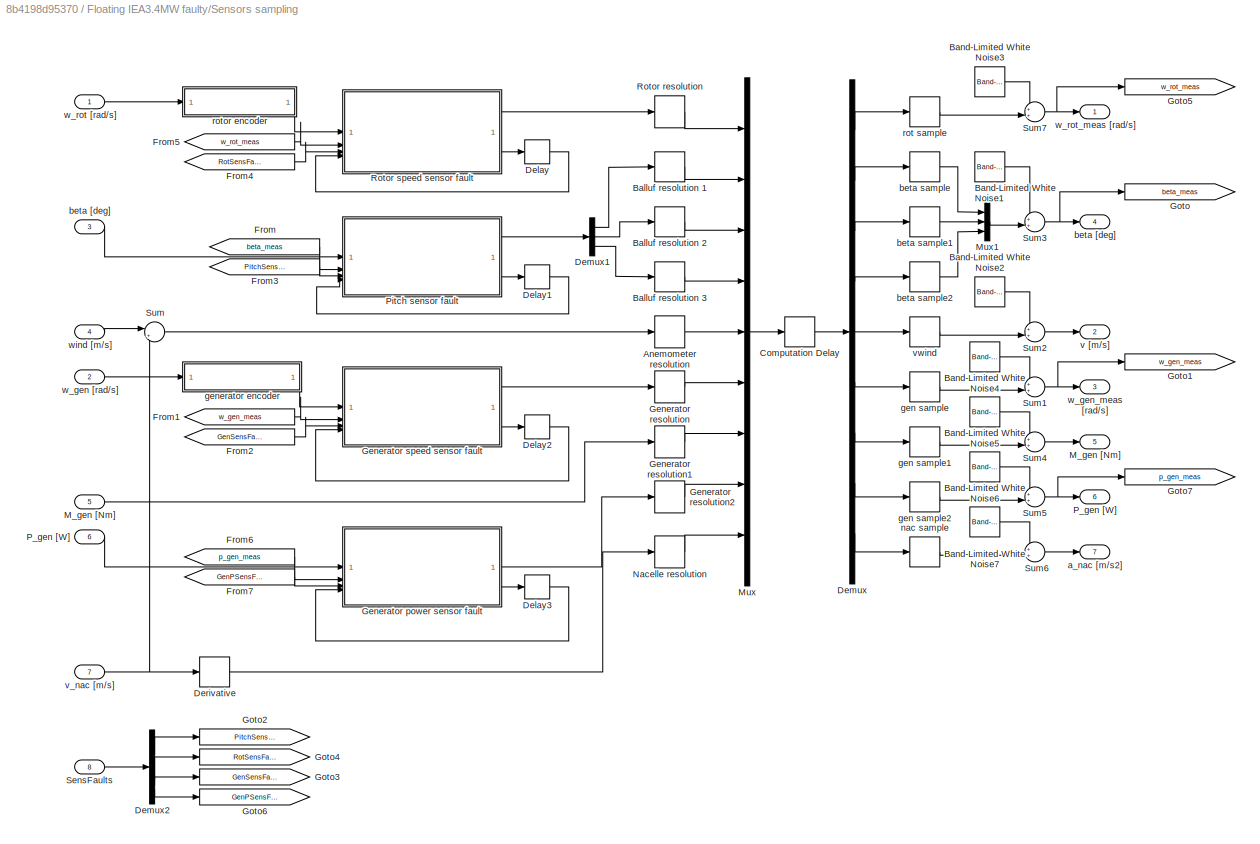
BLOCK [SubSystem] Floating IEA3.4MW faulty/Sensors sampling
BLOCK [Quantizer] Floating IEA3.4MW faulty/Sensors sampling/Anemometer resolution
  QuantizationInterval = wt.meas.aneres
BLOCK [Quantizer] Floating IEA3.4MW faulty/Sensors sampling/Balluf resolution 1
  QuantizationInterval = wt.meas.pitchres
BLOCK [Quantizer] Floating IEA3.4MW faulty/Sensors sampling/Balluf resolution 2
  QuantizationInterval = wt.meas.pitchres
BLOCK [Quantizer] Floating IEA3.4MW faulty/Sensors sampling/Balluf resolution 3
  QuantizationInterval = wt.meas.pitchres
BLOCK [Reference] Floating IEA3.4MW faulty/Sensors sampling/Band-Limited White Noise1  REF=simulink/Sources/Band-Limited
White Noise
  SourceBlock = simulink/Sources/Band-Limited\nWhite Noise
  SourceType = Band-Limited White Noise.
BLOCK [Reference] Floating IEA3.4MW faulty/Sensors sampling/Band-Limited White Noise2  REF=simulink/Sources/Band-Limited
White Noise
  SourceBlock = simulink/Sources/Band-Limited\nWhite Noise
  SourceType = Band-Limited White Noise.
BLOCK [Reference] Floating IEA3.4MW faulty/Sensors sampling/Band-Limited White Noise3  REF=simulink/Sources/Band-Limited
White Noise
  SourceBlock = simulink/Sources/Band-Limited\nWhite Noise
  SourceType = Band-Limited White Noise.
BLOCK [Reference] Floating IEA3.4MW faulty/Sensors sampling/Band-Limited White Noise4  REF=simulink/Sources/Band-Limited
White Noise
  SourceBlock = simulink/Sources/Band-Limited\nWhite Noise
  SourceType = Band-Limited White Noise.
BLOCK [Reference] Floating IEA3.4MW faulty/Sensors sampling/Band-Limited White Noise5  REF=simulink/Sources/Band-Limited
White Noise
  SourceBlock = simulink/Sources/Band-Limited\nWhite Noise
  SourceType = Band-Limited White Noise.
BLOCK [Reference] Floating IEA3.4MW faulty/Sensors sampling/Band-Limited White Noise6  REF=simulink/Sources/Band-Limited
White Noise
  SourceBlock = simulink/Sources/Band-Limited\nWhite Noise
  SourceType = Band-Limited White Noise.
BLOCK [Reference] Floating IEA3.4MW faulty/Sensors sampling/Band-Limited White Noise7  REF=simulink/Sources/Band-Limited
White Noise
  SourceBlock = simulink/Sources/Band-Limited\nWhite Noise
  SourceType = Band-Limited White Noise.
BLOCK [TransportDelay] Floating IEA3.4MW faulty/Sensors sampling/Computation Delay
  DelayTime = wt.meas.delay
  InitialOutput = [wt.rotor.ini wt.pitch.ini wt.pitch.ini wt.pitch.ini 0 wt.gen.ini 0 0 0]
BLOCK [Delay] Floating IEA3.4MW faulty/Sensors sampling/Delay
  DelayLength = 1
  InitialCondition = 0
  InputPortMap = u0
BLOCK [Delay] Floating IEA3.4MW faulty/Sensors sampling/Delay1
  DelayLength = 1
  InitialCondition = 0
  InputPortMap = u0
BLOCK [Delay] Floating IEA3.4MW faulty/Sensors sampling/Delay2
  DelayLength = 1
  InitialCondition = 0
  InputPortMap = u0
BLOCK [Delay] Floating IEA3.4MW faulty/Sensors sampling/Delay3
  DelayLength = 1
  InitialCondition = 0
  InputPortMap = u0
BLOCK [Demux] Floating IEA3.4MW faulty/Sensors sampling/Demux
  Outputs = 9
BLOCK [Demux] Floating IEA3.4MW faulty/Sensors sampling/Demux1
  Outputs = 3
BLOCK [Demux] Floating IEA3.4MW faulty/Sensors sampling/Demux2
BLOCK [Derivative] Floating IEA3.4MW faulty/Sensors sampling/Derivative
BLOCK [From] Floating IEA3.4MW faulty/Sensors sampling/From
  GotoTag = beta_meas
BLOCK [From] Floating IEA3.4MW faulty/Sensors sampling/From1
  GotoTag = w_gen_meas
BLOCK [From] Floating IEA3.4MW faulty/Sensors sampling/From2
  GotoTag = GenSensFault
BLOCK [From] Floating IEA3.4MW faulty/Sensors sampling/From3
  GotoTag = PitchSensFault
BLOCK [From] Floating IEA3.4MW faulty/Sensors sampling/From4
  GotoTag = RotSensFault
BLOCK [From] Floating IEA3.4MW faulty/Sensors sampling/From5
  GotoTag = w_rot_meas
BLOCK [From] Floating IEA3.4MW faulty/Sensors sampling/From6
  GotoTag = p_gen_meas
BLOCK [From] Floating IEA3.4MW faulty/Sensors sampling/From7
  GotoTag = GenPSensFault
BLOCK [SubSystem] Floating IEA3.4MW faulty/Sensors sampling/Generator power sensor fault
  ErrorFcn = Stateflow.Translate.translate
  PermitHierarchicalResolution = ExplicitOnly
  SFBlockType = MATLAB Function
  TreatAsAtomicUnit = on
BLOCK [Demux] Floating IEA3.4MW faulty/Sensors sampling/Generator power sensor fault/ Demux 
  Outputs = 1
BLOCK [S-Function] Floating IEA3.4MW faulty/Sensors sampling/Generator power sensor fault/ SFunction 
  EnableBusSupport = off
  FunctionName = sf_sfun
  Parameters = faultOptions
  PortCounts = [4 3]
  SFcnIsStateOwnerBlock = off
  SFunctionDeploymentMode = off
  Tag = Stateflow S-Function 20
BLOCK [Terminator] Floating IEA3.4MW faulty/Sensors sampling/Generator power sensor fault/ Terminator 
BLOCK [Inport] Floating IEA3.4MW faulty/Sensors sampling/Generator power sensor fault/GenPSenFault
  Port = 3
BLOCK [Inport] Floating IEA3.4MW faulty/Sensors sampling/Generator power sensor fault/drift_aux_in
  Port = 4
BLOCK [Outport] Floating IEA3.4MW faulty/Sensors sampling/Generator power sensor fault/drift_aux_out
  Port = 2
BLOCK [Outport] Floating IEA3.4MW faulty/Sensors sampling/Generator power sensor fault/p_gen_meas
BLOCK [Inport] Floating IEA3.4MW faulty/Sensors sampling/Generator power sensor fault/p_gen_prev
  Port = 2
BLOCK [Inport] Floating IEA3.4MW faulty/Sensors sampling/Generator power sensor fault/p_gen_real
BLOCK [Quantizer] Floating IEA3.4MW faulty/Sensors sampling/Generator resolution
  QuantizationInterval = wt.meas.genres
BLOCK [Quantizer] Floating IEA3.4MW faulty/Sensors sampling/Generator resolution1
  QuantizationInterval = wt.meas.genres
BLOCK [Quantizer] Floating IEA3.4MW faulty/Sensors sampling/Generator resolution2
  QuantizationInterval = wt.meas.genres
BLOCK [SubSystem] Floating IEA3.4MW faulty/Sensors sampling/Generator speed sensor fault
  ErrorFcn = Stateflow.Translate.translate
  PermitHierarchicalResolution = ExplicitOnly
  SFBlockType = MATLAB Function
  TreatAsAtomicUnit = on
BLOCK [Demux] Floating IEA3.4MW faulty/Sensors sampling/Generator speed sensor fault/ Demux 
  Outputs = 1
BLOCK [S-Function] Floating IEA3.4MW faulty/Sensors sampling/Generator speed sensor fault/ SFunction 
  EnableBusSupport = off
  FunctionName = sf_sfun
  Parameters = faultOptions
  PortCounts = [4 3]
  SFcnIsStateOwnerBlock = off
  SFunctionDeploymentMode = off
  Tag = Stateflow S-Function 21
BLOCK [Terminator] Floating IEA3.4MW faulty/Sensors sampling/Generator speed sensor fault/ Terminator 
BLOCK [Inport] Floating IEA3.4MW faulty/Sensors sampling/Generator speed sensor fault/GenSenFault
  Port = 3
BLOCK [Inport] Floating IEA3.4MW faulty/Sensors sampling/Generator speed sensor fault/drift_aux_in
  Port = 4
BLOCK [Outport] Floating IEA3.4MW faulty/Sensors sampling/Generator speed sensor fault/drift_aux_out
  Port = 2
BLOCK [Outport] Floating IEA3.4MW faulty/Sensors sampling/Generator speed sensor fault/w_gen_meas
BLOCK [Inport] Floating IEA3.4MW faulty/Sensors sampling/Generator speed sensor fault/w_gen_prev
  Port = 2
BLOCK [Inport] Floating IEA3.4MW faulty/Sensors sampling/Generator speed sensor fault/w_gen_real
BLOCK [Goto] Floating IEA3.4MW faulty/Sensors sampling/Goto
  GotoTag = beta_meas
BLOCK [Goto] Floating IEA3.4MW faulty/Sensors sampling/Goto1
  GotoTag = w_gen_meas
BLOCK [Goto] Floating IEA3.4MW faulty/Sensors sampling/Goto2
  GotoTag = PitchSensFault
BLOCK [Goto] Floating IEA3.4MW faulty/Sensors sampling/Goto3
  GotoTag = GenSensFault
BLOCK [Goto] Floating IEA3.4MW faulty/Sensors sampling/Goto4
  GotoTag = RotSensFault
BLOCK [Goto] Floating IEA3.4MW faulty/Sensors sampling/Goto5
  GotoTag = w_rot_meas
BLOCK [Goto] Floating IEA3.4MW faulty/Sensors sampling/Goto6
  GotoTag = GenPSensFault
BLOCK [Goto] Floating IEA3.4MW faulty/Sensors sampling/Goto7
  GotoTag = p_gen_meas
BLOCK [Outport] Floating IEA3.4MW faulty/Sensors sampling/M_gen [Nm]
  InitialOutput = 0
  Port = 5
BLOCK [Inport] Floating IEA3.4MW faulty/Sensors sampling/M_gen [Nm] 
  Port = 5
BLOCK [Mux] Floating IEA3.4MW faulty/Sensors sampling/Mux
  DisplayOption = bar
  Inputs = 9
BLOCK [Mux] Floating IEA3.4MW faulty/Sensors sampling/Mux1
  DisplayOption = bar
  Inputs = 3
BLOCK [Quantizer] Floating IEA3.4MW faulty/Sensors sampling/Nacelle resolution
  QuantizationInterval = wt.meas.nacres
BLOCK [Outport] Floating IEA3.4MW faulty/Sensors sampling/P_gen [W]
  InitialOutput = 0
  Port = 6
BLOCK [Inport] Floating IEA3.4MW faulty/Sensors sampling/P_gen [W] 
  Port = 6
BLOCK [SubSystem] Floating IEA3.4MW faulty/Sensors sampling/Pitch sensor fault
  ErrorFcn = Stateflow.Translate.translate
  PermitHierarchicalResolution = ExplicitOnly
  SFBlockType = MATLAB Function
  TreatAsAtomicUnit = on
BLOCK [Demux] Floating IEA3.4MW faulty/Sensors sampling/Pitch sensor fault/ Demux 
  Outputs = 1
BLOCK [S-Function] Floating IEA3.4MW faulty/Sensors sampling/Pitch sensor fault/ SFunction 
  EnableBusSupport = off
  FunctionName = sf_sfun
  Parameters = faultOptions
  PortCounts = [4 3]
  SFcnIsStateOwnerBlock = off
  SFunctionDeploymentMode = off
  Tag = Stateflow S-Function 22
BLOCK [Terminator] Floating IEA3.4MW faulty/Sensors sampling/Pitch sensor fault/ Terminator 
BLOCK [Inport] Floating IEA3.4MW faulty/Sensors sampling/Pitch sensor fault/PitchSenFault
  Port = 3
BLOCK [Outport] Floating IEA3.4MW faulty/Sensors sampling/Pitch sensor fault/beta_meas
BLOCK [Inport] Floating IEA3.4MW faulty/Sensors sampling/Pitch sensor fault/beta_prev
  Port = 2
BLOCK [Inport] Floating IEA3.4MW faulty/Sensors sampling/Pitch sensor fault/beta_real
BLOCK [Inport] Floating IEA3.4MW faulty/Sensors sampling/Pitch sensor fault/drift_aux_in
  Port = 4
BLOCK [Outport] Floating IEA3.4MW faulty/Sensors sampling/Pitch sensor fault/drift_aux_out
  Port = 2
BLOCK [Quantizer] Floating IEA3.4MW faulty/Sensors sampling/Rotor resolution
  QuantizationInterval = wt.meas.rotres
BLOCK [SubSystem] Floating IEA3.4MW faulty/Sensors sampling/Rotor speed sensor fault
  ErrorFcn = Stateflow.Translate.translate
  PermitHierarchicalResolution = ExplicitOnly
  SFBlockType = MATLAB Function
  TreatAsAtomicUnit = on
BLOCK [Demux] Floating IEA3.4MW faulty/Sensors sampling/Rotor speed sensor fault/ Demux 
  Outputs = 1
BLOCK [S-Function] Floating IEA3.4MW faulty/Sensors sampling/Rotor speed sensor fault/ SFunction 
  EnableBusSupport = off
  FunctionName = sf_sfun
  Parameters = faultOptions
  PortCounts = [4 3]
  SFcnIsStateOwnerBlock = off
  SFunctionDeploymentMode = off
  Tag = Stateflow S-Function 23
BLOCK [Terminator] Floating IEA3.4MW faulty/Sensors sampling/Rotor speed sensor fault/ Terminator 
BLOCK [Inport] Floating IEA3.4MW faulty/Sensors sampling/Rotor speed sensor fault/RotSenFault
  Port = 3
BLOCK [Inport] Floating IEA3.4MW faulty/Sensors sampling/Rotor speed sensor fault/drift_aux_in
  Port = 4
BLOCK [Outport] Floating IEA3.4MW faulty/Sensors sampling/Rotor speed sensor fault/drift_aux_out
  Port = 2
BLOCK [Outport] Floating IEA3.4MW faulty/Sensors sampling/Rotor speed sensor fault/w_rot_meas
BLOCK [Inport] Floating IEA3.4MW faulty/Sensors sampling/Rotor speed sensor fault/w_rot_prev
  Port = 2
BLOCK [Inport] Floating IEA3.4MW faulty/Sensors sampling/Rotor speed sensor fault/w_rot_real
BLOCK [Inport] Floating IEA3.4MW faulty/Sensors sampling/SensFaults
  Port = 8
BLOCK [Sum] Floating IEA3.4MW faulty/Sensors sampling/Sum
  Inputs = |+-
BLOCK [Sum] Floating IEA3.4MW faulty/Sensors sampling/Sum1
  Inputs = ++|
BLOCK [Sum] Floating IEA3.4MW faulty/Sensors sampling/Sum2
  Inputs = ++|
BLOCK [Sum] Floating IEA3.4MW faulty/Sensors sampling/Sum3
  Inputs = ++|
BLOCK [Sum] Floating IEA3.4MW faulty/Sensors sampling/Sum4
  Inputs = ++|
BLOCK [Sum] Floating IEA3.4MW faulty/Sensors sampling/Sum5
  Inputs = ++|
BLOCK [Sum] Floating IEA3.4MW faulty/Sensors sampling/Sum6
  Inputs = ++|
BLOCK [Sum] Floating IEA3.4MW faulty/Sensors sampling/Sum7
  Inputs = ++|
BLOCK [Outport] Floating IEA3.4MW faulty/Sensors sampling/a_nac [m//s2]
  InitialOutput = 0
  Port = 7
BLOCK [Outport] Floating IEA3.4MW faulty/Sensors sampling/beta [deg]
  InitialOutput = 0
  Port = 4
BLOCK [Inport] Floating IEA3.4MW faulty/Sensors sampling/beta [deg] 
  Port = 3
BLOCK [ZeroOrderHold] Floating IEA3.4MW faulty/Sensors sampling/beta sample
  SampleTime = wt.meas.Ts
BLOCK [ZeroOrderHold] Floating IEA3.4MW faulty/Sensors sampling/beta sample1
  SampleTime = wt.meas.Ts
BLOCK [ZeroOrderHold] Floating IEA3.4MW faulty/Sensors sampling/beta sample2
  SampleTime = wt.meas.Ts
BLOCK [ZeroOrderHold] Floating IEA3.4MW faulty/Sensors sampling/gen sample
  SampleTime = wt.meas.Ts
BLOCK [ZeroOrderHold] Floating IEA3.4MW faulty/Sensors sampling/gen sample1
  SampleTime = wt.meas.Ts
BLOCK [ZeroOrderHold] Floating IEA3.4MW faulty/Sensors sampling/gen sample2
  SampleTime = wt.meas.Ts
BLOCK [SubSystem] Floating IEA3.4MW faulty/Sensors sampling/generator encoder
BLOCK [Sum] Floating IEA3.4MW faulty/Sensors sampling/generator encoder/Sum
  Inputs = -+|
BLOCK [Integrator] Floating IEA3.4MW faulty/Sensors sampling/generator encoder/gen Integrator
  InitialCondition = wt.gen.ini
  NameLocation = top
BLOCK [Gain] Floating IEA3.4MW faulty/Sensors sampling/generator encoder/gen sensor time constant
  Gain = 1/wt.meas.gentau
BLOCK [Inport] Floating IEA3.4MW faulty/Sensors sampling/generator encoder/w_gen_in
BLOCK [Outport] Floating IEA3.4MW faulty/Sensors sampling/generator encoder/w_gen_out
BLOCK [ZeroOrderHold] Floating IEA3.4MW faulty/Sensors sampling/nac sample
  SampleTime = wt.meas.Ts
BLOCK [ZeroOrderHold] Floating IEA3.4MW faulty/Sensors sampling/rot sample
  SampleTime = wt.meas.Ts
BLOCK [SubSystem] Floating IEA3.4MW faulty/Sensors sampling/rotor encoder
BLOCK [Sum] Floating IEA3.4MW faulty/Sensors sampling/rotor encoder/Sum1
  Inputs = |+-
BLOCK [Integrator] Floating IEA3.4MW faulty/Sensors sampling/rotor encoder/gen Integrator1
  InitialCondition = wt.rotor.ini
BLOCK [Gain] Floating IEA3.4MW faulty/Sensors sampling/rotor encoder/gen sensor time constant1
  Gain = 1/wt.meas.rottau
BLOCK [Inport] Floating IEA3.4MW faulty/Sensors sampling/rotor encoder/w_rot_in
BLOCK [Outport] Floating IEA3.4MW faulty/Sensors sampling/rotor encoder/w_rot_out
BLOCK [Outport] Floating IEA3.4MW faulty/Sensors sampling/v [m//s]
  InitialOutput = 0
  Port = 2
BLOCK [Inport] Floating IEA3.4MW faulty/Sensors sampling/v_nac [m//s] 
  Port = 7
BLOCK [ZeroOrderHold] Floating IEA3.4MW faulty/Sensors sampling/vwind
  SampleTime = wt.meas.Ts
BLOCK [Inport] Floating IEA3.4MW faulty/Sensors sampling/w_gen [rad//s]
  Port = 2
BLOCK [Outport] Floating IEA3.4MW faulty/Sensors sampling/w_gen_meas [rad//s]
  InitialOutput = 0
  Port = 3
BLOCK [Inport] Floating IEA3.4MW faulty/Sensors sampling/w_rot [rad//s] 
BLOCK [Outport] Floating IEA3.4MW faulty/Sensors sampling/w_rot_meas [rad//s]
  InitialOutput = 0
BLOCK [Inport] Floating IEA3.4MW faulty/Sensors sampling/wind [m//s]
  Port = 4
BLOCK [Sum] Floating IEA3.4MW faulty/Sum2
  InputSameDT = on
  Inputs = |++
  NameLocation = right
  OutDataTypeStr = Inherit: Same as first input
  SaturateOnIntegerOverflow = on
BLOCK [Sum] Floating IEA3.4MW faulty/Sum3
  InputSameDT = on
  Inputs = |+-
  OutDataTypeStr = Inherit: Same as first input
  SaturateOnIntegerOverflow = on
BLOCK [Terminator] Floating IEA3.4MW faulty/Terminator1
BLOCK [SubSystem] Floating IEA3.4MW faulty/Tower deflection 
BLOCK [Inport] Floating IEA3.4MW faulty/Tower deflection /F_t [N]
BLOCK [Gain] Floating IEA3.4MW faulty/Tower deflection /F_t*h
  Gain = wt.tower.height
  OutDataTypeStr = Inherit: Same as input
  ParamDataTypeStr = Inherit: Same as input
  SaturateOnIntegerOverflow = on
BLOCK [Outport] Floating IEA3.4MW faulty/Tower deflection /M_tow [Nm]
  Port = 2
BLOCK [SubSystem] Floating IEA3.4MW faulty/Tower deflection /Tower1
BLOCK [Demux] Floating IEA3.4MW faulty/Tower deflection /Tower1/Demux1
  Outputs = 2
BLOCK [Inport] Floating IEA3.4MW faulty/Tower deflection /Tower1/FT [Nm]
BLOCK [Outport] Floating IEA3.4MW faulty/Tower deflection /Tower1/F_tow [N]
  InitialOutput = 0
  Port = 2
BLOCK [StateSpace] Floating IEA3.4MW faulty/Tower deflection /Tower1/Tower
  A = A
  B = B
  C = C
  D = D
  InitialCondition = zeros(2,1)
BLOCK [Outport] Floating IEA3.4MW faulty/Tower deflection /Tower1/vnac [m//s]
  InitialOutput = 0
BLOCK [Outport] Floating IEA3.4MW faulty/Tower deflection /v_nac [m//s]
BLOCK [Outport] Floating IEA3.4MW faulty/V_meas [m//s]
  Port = 4
BLOCK [Outport] Floating IEA3.4MW faulty/a_nac [m//s]
  Port = 9
BLOCK [Outport] Floating IEA3.4MW faulty/aux
  Port = 10
BLOCK [Outport] Floating IEA3.4MW faulty/beta [deg]
  Port = 5
BLOCK [Inport] Floating IEA3.4MW faulty/fault_signal
  Port = 5
BLOCK [Inport] Floating IEA3.4MW faulty/v_wnd_nac [m//s]
  Port = 3
BLOCK [Inport] Floating IEA3.4MW faulty/v_wnd_rot [m//s]
  Port = 2
BLOCK [Outport] Floating IEA3.4MW faulty/w_gen_meas [rad//s]
  Port = 3
BLOCK [SubSystem] Floating IEA3.4MW/Aerodynamics
BLOCK [Reference] Floating IEA3.4MW/Aerodynamics/C_P & C_T tables1  REF=$bdroot/Floating NREL5MW faulty/Aerodynamics/Blade 1/C_P & C_T tables
  SourceBlock = $bdroot/Floating NREL5MW faulty/Aerodynamics/Blade 1/C_P & C_T tables
BLOCK [Outport] Floating IEA3.4MW/Aerodynamics/C_T
  Port = 3
BLOCK [Outport] Floating IEA3.4MW/Aerodynamics/F_t [N]
  Port = 2
BLOCK [Outport] Floating IEA3.4MW/Aerodynamics/M_rot [Nm]
BLOCK [Math] Floating IEA3.4MW/Aerodynamics/Math Function
  Operator = square
  SignedPower = on
BLOCK [Product] Floating IEA3.4MW/Aerodynamics/Product
  InputSameDT = on
  OutDataTypeStr = Inherit: Same as first input
  SaturateOnIntegerOverflow = on
BLOCK [Product] Floating IEA3.4MW/Aerodynamics/Product1
  InputSameDT = on
  Inputs = **/
  OutDataTypeStr = Inherit: Same as first input
  SaturateOnIntegerOverflow = on
BLOCK [Product] Floating IEA3.4MW/Aerodynamics/Product2
  InputSameDT = on
  OutDataTypeStr = Inherit: Same as first input
  SaturateOnIntegerOverflow = on
BLOCK [Product] Floating IEA3.4MW/Aerodynamics/Product3
  InputSameDT = on
  Inputs = /*
  OutDataTypeStr = Inherit: Same as first input
  SaturateOnIntegerOverflow = on
BLOCK [Inport] Floating IEA3.4MW/Aerodynamics/beta [deg]
  Port = 2
BLOCK [Gain] Floating IEA3.4MW/Aerodynamics/rho//2*A
  Gain = env.rho*.5* pi * wt.rotor.radius^2
  OutDataTypeStr = Inherit: Same as input
  ParamDataTypeStr = Inherit: Same as input
  SaturateOnIntegerOverflow = on
BLOCK [Gain] Floating IEA3.4MW/Aerodynamics/rotor radius
  Gain = wt.rotor.radius
  OutDataTypeStr = Inherit: Same as input
  ParamDataTypeStr = Inherit: Same as input
  SaturateOnIntegerOverflow = on
BLOCK [Inport] Floating IEA3.4MW/Aerodynamics/v_rot [m//s]
  Port = 3
BLOCK [Inport] Floating IEA3.4MW/Aerodynamics/w_rot [rad//s]
BLOCK [Outport] Floating IEA3.4MW/C_T
  Port = 2
BLOCK [Constant] Floating IEA3.4MW/Constant
  Value = 0
BLOCK [SubSystem] Floating IEA3.4MW/Controller
BLOCK [Gain] Floating IEA3.4MW/Controller/Generator efficiency compensation
  Gain = 1/wt.ctrl.gen.effeciency
BLOCK [Saturate] Floating IEA3.4MW/Controller/Limit power to rated
  LowerLimit = 0
  UpperLimit = wt.ctrl.p_rated
BLOCK [Outport] Floating IEA3.4MW/Controller/M_g_ref [W]
  Port = 2
BLOCK [DiscreteStateSpace] Floating IEA3.4MW/Controller/Measurement filter (low pass)
  A = wt.ctrl.alpha
  B = 1-wt.ctrl.alpha
  C = wt.ctrl.alpha
  D = 1-wt.ctrl.alpha
  InitialCondition = wt.ctrl.gen.ini
  SampleTime = wt.ctrl.Ts
BLOCK [Inport] Floating IEA3.4MW/Controller/P_dem [W]
BLOCK [SubSystem] Floating IEA3.4MW/Controller/Pitch controller
  TreatAsAtomicUnit = on
BLOCK [SubSystem] Floating IEA3.4MW/Controller/Pitch controller/Blade 1 controller
BLOCK [DiscreteIntegrator] Floating IEA3.4MW/Controller/Pitch controller/Blade 1 controller/Discrete-Time Integrator
  ICPrevOutput = DiscIntNeverNeededParam
  ICPrevScaledInput = DiscIntNeverNeededParam
  LimitOutput = on
  LowerSaturationLimit = wt.ctrl.pitch.llim
  SampleTime = wt.ctrl.Ts
  UpperSaturationLimit = wt.ctrl.pitch.ulim*pi/180
BLOCK [Lookup2D] Floating IEA3.4MW/Controller/Pitch controller/Blade 1 controller/Gain correction
  ColumnIndex = wt.ctrl.pitch.beta
  InputSameDT = off
  LookUpMeth = Interpolation-Use End Values
  RowIndex = wt.ctrl.pitch.pwr
  SaturateOnIntegerOverflow = off
  Table = wt.ctrl.pitch.gs
BLOCK [Gain] Floating IEA3.4MW/Controller/Pitch controller/Blade 1 controller/Integral gain
  Gain = (1-0.999*noiseFlag)*wt.ctrl.pitch.Igain
BLOCK [Product] Floating IEA3.4MW/Controller/Pitch controller/Blade 1 controller/Integral schedule
  Inputs = */
  RndMeth = Zero
BLOCK [Inport] Floating IEA3.4MW/Controller/Pitch controller/Blade 1 controller/P_dem
  Port = 2
BLOCK [Product] Floating IEA3.4MW/Controller/Pitch controller/Blade 1 controller/Prop schedule
  Inputs = */
  RndMeth = Zero
BLOCK [Gain] Floating IEA3.4MW/Controller/Pitch controller/Blade 1 controller/Proportional gain
  Gain = (1-0.3*noiseFlag)*wt.ctrl.pitch.Pgain
BLOCK [RateLimiter] Floating IEA3.4MW/Controller/Pitch controller/Blade 1 controller/Rate Limiter
  FallingSlewLimit = -wt.ctrl.pitch.ratelim
  InitialCondition = wt.ctrl.pitch.ini
  RisingSlewLimit = wt.ctrl.pitch.ratelim
  SampleTimeMode = inherited
BLOCK [Saturate] Floating IEA3.4MW/Controller/Pitch controller/Blade 1 controller/Saturation
  LowerLimit = 0
  UpperLimit = wt.ctrl.pitch.ulim
BLOCK [Sum] Floating IEA3.4MW/Controller/Pitch controller/Blade 1 controller/Sum
  Inputs = ++|
BLOCK [Gain] Floating IEA3.4MW/Controller/Pitch controller/Blade 1 controller/To degrees
  Gain = 180/pi
BLOCK [Inport] Floating IEA3.4MW/Controller/Pitch controller/Blade 1 controller/beta_meas [deg]
  Port = 3
BLOCK [Outport] Floating IEA3.4MW/Controller/Pitch controller/Blade 1 controller/beta_ref [deg]
BLOCK [Inport] Floating IEA3.4MW/Controller/Pitch controller/Blade 1 controller/w_gen_diff
BLOCK [EnablePort] Floating IEA3.4MW/Controller/Pitch controller/Enable
  PropagateVarSize = During execution
  StatesWhenEnabling = reset
BLOCK [Inport] Floating IEA3.4MW/Controller/Pitch controller/P_dem
  Port = 2
BLOCK [Inport] Floating IEA3.4MW/Controller/Pitch controller/beta_meas [deg]
  Port = 3
BLOCK [Outport] Floating IEA3.4MW/Controller/Pitch controller/beta_ref [deg]
  InitialOutput = wt.ctrl.torq.beta
  OutputWhenDisabled = reset
BLOCK [Inport] Floating IEA3.4MW/Controller/Pitch controller/w_gen_diff
BLOCK [RateLimiter] Floating IEA3.4MW/Controller/Rate Limiter
  FallingSlewLimit = -wt.ctrl.torq.ratelim
  InitialCondition = wt.ctrl.torq.ini
  RisingSlewLimit = wt.ctrl.torq.ratelim
  SampleTimeMode = inherited
BLOCK [Constant] Floating IEA3.4MW/Controller/Rated speed
  NameLocation = top
  Value = wt.ctrl.gen.rated
BLOCK [SubSystem] Floating IEA3.4MW/Controller/Region check
  NameLocation = top
BLOCK [RelationalOperator] Floating IEA3.4MW/Controller/Region check/Demand limitation
  InputSameDT = off
  Operator = <=
  OutDataTypeStr = boolean
BLOCK [Product] Floating IEA3.4MW/Controller/Region check/Divide
  Inputs = */
BLOCK [Logic] Floating IEA3.4MW/Controller/Region check/Enable Pitch control?
  AllPortsSameDT = off
  Inputs = 3
  Operator = OR
  OutDataTypeStr = boolean
BLOCK [Outport] Floating IEA3.4MW/Controller/Region check/Enable pitch controller
  Port = 2
BLOCK [Delay] Floating IEA3.4MW/Controller/Region check/Integer Delay
  DelayLength = 1
  InputPortMap = u0
BLOCK [Reference] Floating IEA3.4MW/Controller/Region check/Pitch actuator active last time?  REF=simulink/Logic and Bit
Operations/Compare
To Constant
  SourceBlock = simulink/Logic and Bit\nOperations/Compare\nTo Constant
  SourceType = Compare To Constant
BLOCK [Product] Floating IEA3.4MW/Controller/Region check/Product
  RndMeth = Zero
BLOCK [Reference] Floating IEA3.4MW/Controller/Region check/Region 3 speed?  REF=simulink/Logic and Bit
Operations/Compare
To Constant
  SourceBlock = simulink/Logic and Bit\nOperations/Compare\nTo Constant
  SourceType = Compare To Constant
BLOCK [Switch] Floating IEA3.4MW/Controller/Region check/Switch Torque_ref
  InputSameDT = off
  SaturateOnIntegerOverflow = off
  Threshold = 1
BLOCK [Inport] Floating IEA3.4MW/Controller/Region check/Torque_dem
BLOCK [Outport] Floating IEA3.4MW/Controller/Region check/Torque_ref
BLOCK [Inport] Floating IEA3.4MW/Controller/Region check/p_dem
  Port = 3
BLOCK [Inport] Floating IEA3.4MW/Controller/Region check/pitch command
  Port = 4
BLOCK [Inport] Floating IEA3.4MW/Controller/Region check/w_gen
  Port = 2
BLOCK [ZeroOrderHold] Floating IEA3.4MW/Controller/Sample output
  SampleTime = wt.ctrl.Ts
BLOCK [ZeroOrderHold] Floating IEA3.4MW/Controller/Sample power demand
  SampleTime = wt.ctrl.Ts
BLOCK [Saturate] Floating IEA3.4MW/Controller/Saturation
  LowerLimit = 0
  UpperLimit = wt.ctrl.torq.lim
BLOCK [Sum] Floating IEA3.4MW/Controller/Sum
  Inputs = +-|
BLOCK [Lookup] Floating IEA3.4MW/Controller/Torque - speed lookup table
  InputValues = wt.ctrl.torq.wg
  LookUpMeth = Interpolation-Use End Values
  SaturateOnIntegerOverflow = off
  Table = wt.ctrl.torq.M
BLOCK [ZeroOrderHold] Floating IEA3.4MW/Controller/Zero-Order Hold
  SampleTime = wt.ctrl.Ts
BLOCK [Inport] Floating IEA3.4MW/Controller/beta_meas [deg]
  Port = 3
BLOCK [Outport] Floating IEA3.4MW/Controller/beta_ref [deg]
BLOCK [Inport] Floating IEA3.4MW/Controller/w_gen_meas [m//s]
  Port = 2
BLOCK [SubSystem] Floating IEA3.4MW/Drive Train
BLOCK [Demux] Floating IEA3.4MW/Drive Train/Demux
  Outputs = 3
BLOCK [StateSpace] Floating IEA3.4MW/Drive Train/Drive train dynamics
  A = wt.dt.ssA
  B = wt.dt.ssB
  C = wt.dt.ssC
  D = wt.dt.ssD
  InitialCondition = [wt.rotor.ini;wt.gen.ini;0]
BLOCK [Inport] Floating IEA3.4MW/Drive Train/M_gen [Nm]
  Port = 2
BLOCK [Inport] Floating IEA3.4MW/Drive Train/M_rot [Nm]
BLOCK [Outport] Floating IEA3.4MW/Drive Train/M_shaft [Nm]
  Port = 3
BLOCK [Mux] Floating IEA3.4MW/Drive Train/Mux
  DisplayOption = bar
  Inputs = 2
BLOCK [Outport] Floating IEA3.4MW/Drive Train/w_gen [rad//s]
  Port = 2
BLOCK [Outport] Floating IEA3.4MW/Drive Train/w_rot [rad//s]
BLOCK [Inport] Floating IEA3.4MW/F_ex
  Port = 4
BLOCK [From] Floating IEA3.4MW/From
  GotoTag = w_gen
BLOCK [From] Floating IEA3.4MW/From1
  GotoTag = beta
BLOCK [From] Floating IEA3.4MW/From10
  GotoTag = v_nac
  NameLocation = top
BLOCK [From] Floating IEA3.4MW/From11
  GotoTag = beta_meas
BLOCK [From] Floating IEA3.4MW/From2
  GotoTag = M_gen
BLOCK [From] Floating IEA3.4MW/From3
  GotoTag = beta
  NameLocation = top
BLOCK [From] Floating IEA3.4MW/From4
  GotoTag = beta_ref
BLOCK [From] Floating IEA3.4MW/From5
  GotoTag = beta
  NameLocation = top
BLOCK [From] Floating IEA3.4MW/From6
  GotoTag = P_gen
BLOCK [From] Floating IEA3.4MW/From7
  GotoTag = w_gen_meas
BLOCK [From] Floating IEA3.4MW/From8
  GotoTag = beta_meas
BLOCK [From] Floating IEA3.4MW/From9
  GotoTag = beta_ref
  NameLocation = top
BLOCK [SubSystem] Floating IEA3.4MW/Generator simple
BLOCK [Constant] Floating IEA3.4MW/Generator simple/Constant
  Value = wt.gen.timeconstant
BLOCK [Product] Floating IEA3.4MW/Generator simple/Divide1
  Inputs = */
BLOCK [Gain] Floating IEA3.4MW/Generator simple/Generator efficiency
  Gain = wt.gen.effeciency
BLOCK [Inport] Floating IEA3.4MW/Generator simple/M_g_ref [W]
  Port = 2
BLOCK [Outport] Floating IEA3.4MW/Generator simple/M_gen [Nm]
BLOCK [Product] Floating IEA3.4MW/Generator simple/Multiply
  Inputs = **
BLOCK [Outport] Floating IEA3.4MW/Generator simple/P_out [W]
  Port = 2
BLOCK [Sum] Floating IEA3.4MW/Generator simple/Sum
  Inputs = |+-
BLOCK [Integrator] Floating IEA3.4MW/Generator simple/Torque Integrator
  InitialCondition = wt.gen.torq.ini
BLOCK [Inport] Floating IEA3.4MW/Generator simple/w_gen [rad//s]
BLOCK [Goto] Floating IEA3.4MW/Goto1
  GotoTag = w_gen
BLOCK [Goto] Floating IEA3.4MW/Goto2
  GotoTag = P_gen
BLOCK [Goto] Floating IEA3.4MW/Goto3
  GotoTag = beta
BLOCK [Goto] Floating IEA3.4MW/Goto4
  GotoTag = beta_ref
  NameLocation = top
BLOCK [Goto] Floating IEA3.4MW/Goto5
  GotoTag = M_gen
BLOCK [Goto] Floating IEA3.4MW/Goto6
  GotoTag = w_gen_meas
BLOCK [Goto] Floating IEA3.4MW/Goto7
  GotoTag = beta_meas
BLOCK [Goto] Floating IEA3.4MW/Goto8
  GotoTag = v_nac
  NameLocation = top
BLOCK [SubSystem] Floating IEA3.4MW/Hydrodynamics
BLOCK [Inport] Floating IEA3.4MW/Hydrodynamics/F_ex
  Port = 2
BLOCK [Inport] Floating IEA3.4MW/Hydrodynamics/F_t [N]
BLOCK [Gain] Floating IEA3.4MW/Hydrodynamics/Gain
  Gain = plat.nF2pT
  Multiplication = Matrix(K*u)
BLOCK [Gain] Floating IEA3.4MW/Hydrodynamics/Gain1
  Gain = hydroFlag
BLOCK [Gain] Floating IEA3.4MW/Hydrodynamics/Gain2
  Gain = plat.pM2nM_surge
  Multiplication = Matrix(K*u)
BLOCK [Gain] Floating IEA3.4MW/Hydrodynamics/Gain3
  Gain = plat.pM2nM_pitch
  Multiplication = Matrix(K*u)
BLOCK [StateSpace] Floating IEA3.4MW/Hydrodynamics/Platform hydrodynamics SS system
  A = plat.HydSys.a
  B = plat.HydSys.b
  C = plat.HydSys.c
  D = plat.HydSys.d
  InitialCondition = 0
BLOCK [Sum] Floating IEA3.4MW/Hydrodynamics/Sum
  Inputs = ++|
BLOCK [Sum] Floating IEA3.4MW/Hydrodynamics/Sum2
  Inputs = +|+
BLOCK [Outport] Floating IEA3.4MW/Hydrodynamics/v_nac_hyd [m//s]
BLOCK [Outport] Floating IEA3.4MW/M_Shaft [Nm]
  Port = 6
BLOCK [Outport] Floating IEA3.4MW/M_gen [Nm]
  Port = 8
BLOCK [Outport] Floating IEA3.4MW/M_tow [Nm]
  Port = 7
BLOCK [Mux] Floating IEA3.4MW/Mux
  DisplayOption = bar
  Inputs = 3
BLOCK [Inport] Floating IEA3.4MW/P_dem [W]
BLOCK [Outport] Floating IEA3.4MW/P_out [W]
BLOCK [SubSystem] Floating IEA3.4MW/Pitch Actuator
BLOCK [StateSpace] Floating IEA3.4MW/Pitch Actuator/Pitch system
  A = wt.pitch.ssA
  B = wt.pitch.ssB
  C = wt.pitch.ssC
  D = wt.pitch.ssD
  InitialCondition = 0
BLOCK [Outport] Floating IEA3.4MW/Pitch Actuator/beta [deg]
BLOCK [Inport] Floating IEA3.4MW/Pitch Actuator/beta_ref [deg]
BLOCK [SubSystem] Floating IEA3.4MW/Sensors sampling
BLOCK [Quantizer] Floating IEA3.4MW/Sensors sampling/Anemometer resolution
  QuantizationInterval = wt.meas.aneres
BLOCK [Quantizer] Floating IEA3.4MW/Sensors sampling/Balluf resolution 1
  QuantizationInterval = wt.meas.pitchres
BLOCK [Reference] Floating IEA3.4MW/Sensors sampling/Band-Limited White Noise1  REF=simulink/Sources/Band-Limited
White Noise
  SourceBlock = simulink/Sources/Band-Limited\nWhite Noise
  SourceType = Band-Limited White Noise.
BLOCK [Reference] Floating IEA3.4MW/Sensors sampling/Band-Limited White Noise2  REF=simulink/Sources/Band-Limited
White Noise
  SourceBlock = simulink/Sources/Band-Limited\nWhite Noise
  SourceType = Band-Limited White Noise.
BLOCK [Reference] Floating IEA3.4MW/Sensors sampling/Band-Limited White Noise3  REF=simulink/Sources/Band-Limited
White Noise
  SourceBlock = simulink/Sources/Band-Limited\nWhite Noise
  SourceType = Band-Limited White Noise.
BLOCK [Reference] Floating IEA3.4MW/Sensors sampling/Band-Limited White Noise4  REF=simulink/Sources/Band-Limited
White Noise
  SourceBlock = simulink/Sources/Band-Limited\nWhite Noise
  SourceType = Band-Limited White Noise.
BLOCK [Reference] Floating IEA3.4MW/Sensors sampling/Band-Limited White Noise5  REF=simulink/Sources/Band-Limited
White Noise
  SourceBlock = simulink/Sources/Band-Limited\nWhite Noise
  SourceType = Band-Limited White Noise.
BLOCK [Reference] Floating IEA3.4MW/Sensors sampling/Band-Limited White Noise6  REF=simulink/Sources/Band-Limited
White Noise
  SourceBlock = simulink/Sources/Band-Limited\nWhite Noise
  SourceType = Band-Limited White Noise.
BLOCK [Reference] Floating IEA3.4MW/Sensors sampling/Band-Limited White Noise7  REF=simulink/Sources/Band-Limited
White Noise
  SourceBlock = simulink/Sources/Band-Limited\nWhite Noise
  SourceType = Band-Limited White Noise.
BLOCK [TransportDelay] Floating IEA3.4MW/Sensors sampling/Computation Delay1
  DelayTime = wt.meas.delay
  InitialOutput = [wt.rotor.ini wt.pitch.ini 0 wt.gen.ini 0 0 0]
BLOCK [Demux] Floating IEA3.4MW/Sensors sampling/Demux1
  Outputs = 7
BLOCK [Derivative] Floating IEA3.4MW/Sensors sampling/Derivative
BLOCK [Quantizer] Floating IEA3.4MW/Sensors sampling/Generator resolution
  QuantizationInterval = wt.meas.genres
BLOCK [Quantizer] Floating IEA3.4MW/Sensors sampling/Generator resolution1
  QuantizationInterval = wt.meas.genres
BLOCK [Quantizer] Floating IEA3.4MW/Sensors sampling/Generator resolution2
  QuantizationInterval = wt.meas.genres
BLOCK [Goto] Floating IEA3.4MW/Sensors sampling/Goto
  GotoTag = beta_meas
BLOCK [Goto] Floating IEA3.4MW/Sensors sampling/Goto1
  GotoTag = w_gen_meas
BLOCK [Goto] Floating IEA3.4MW/Sensors sampling/Goto5
  GotoTag = w_rot_meas
BLOCK [Outport] Floating IEA3.4MW/Sensors sampling/M_gen [Nm]
  InitialOutput = 0
  Port = 5
BLOCK [Inport] Floating IEA3.4MW/Sensors sampling/M_gen [Nm] 
  Port = 5
BLOCK [Mux] Floating IEA3.4MW/Sensors sampling/Mux1
  DisplayOption = bar
  Inputs = 7
BLOCK [Quantizer] Floating IEA3.4MW/Sensors sampling/Nacelle resolution
  QuantizationInterval = wt.meas.nacres
BLOCK [Outport] Floating IEA3.4MW/Sensors sampling/P_gen [W]
  InitialOutput = 0
  Port = 6
BLOCK [Inport] Floating IEA3.4MW/Sensors sampling/P_gen [W] 
  Port = 6
BLOCK [Quantizer] Floating IEA3.4MW/Sensors sampling/Rotor resolution
  QuantizationInterval = wt.meas.rotres
BLOCK [Sum] Floating IEA3.4MW/Sensors sampling/Sum
  Inputs = |+-
BLOCK [Sum] Floating IEA3.4MW/Sensors sampling/Sum1
  Inputs = ++|
BLOCK [Sum] Floating IEA3.4MW/Sensors sampling/Sum2
  Inputs = ++|
BLOCK [Sum] Floating IEA3.4MW/Sensors sampling/Sum3
  Inputs = ++|
BLOCK [Sum] Floating IEA3.4MW/Sensors sampling/Sum4
  Inputs = ++|
BLOCK [Sum] Floating IEA3.4MW/Sensors sampling/Sum5
  Inputs = ++|
BLOCK [Sum] Floating IEA3.4MW/Sensors sampling/Sum6
  Inputs = ++|
BLOCK [Sum] Floating IEA3.4MW/Sensors sampling/Sum7
  Inputs = ++|
BLOCK [Outport] Floating IEA3.4MW/Sensors sampling/a_nac [m//s2]
  InitialOutput = 0
  Port = 7
BLOCK [Inport] Floating IEA3.4MW/Sensors sampling/beta [deg] 
  Port = 3
BLOCK [Outport] Floating IEA3.4MW/Sensors sampling/beta [deg]1
  InitialOutput = 0
  Port = 4
BLOCK [ZeroOrderHold] Floating IEA3.4MW/Sensors sampling/beta sample1
  SampleTime = wt.meas.Ts
BLOCK [ZeroOrderHold] Floating IEA3.4MW/Sensors sampling/gen sample1
  SampleTime = wt.meas.Ts
BLOCK [ZeroOrderHold] Floating IEA3.4MW/Sensors sampling/gen sample2
  SampleTime = wt.meas.Ts
BLOCK [ZeroOrderHold] Floating IEA3.4MW/Sensors sampling/gen sample3
  SampleTime = wt.meas.Ts
BLOCK [SubSystem] Floating IEA3.4MW/Sensors sampling/generator encoder
BLOCK [Sum] Floating IEA3.4MW/Sensors sampling/generator encoder/Sum
  Inputs = -+|
BLOCK [Integrator] Floating IEA3.4MW/Sensors sampling/generator encoder/gen Integrator
  InitialCondition = wt.gen.ini
  NameLocation = top
BLOCK [Gain] Floating IEA3.4MW/Sensors sampling/generator encoder/gen sensor time constant
  Gain = 1/wt.meas.gentau
BLOCK [Inport] Floating IEA3.4MW/Sensors sampling/generator encoder/w_gen_in
BLOCK [Outport] Floating IEA3.4MW/Sensors sampling/generator encoder/w_gen_out
BLOCK [ZeroOrderHold] Floating IEA3.4MW/Sensors sampling/nac sample
  SampleTime = wt.meas.Ts
BLOCK [ZeroOrderHold] Floating IEA3.4MW/Sensors sampling/rot sample1
  SampleTime = wt.meas.Ts
BLOCK [SubSystem] Floating IEA3.4MW/Sensors sampling/rotor encoder
BLOCK [Sum] Floating IEA3.4MW/Sensors sampling/rotor encoder/Sum1
  Inputs = |+-
BLOCK [Integrator] Floating IEA3.4MW/Sensors sampling/rotor encoder/gen Integrator1
  InitialCondition = wt.rotor.ini
BLOCK [Gain] Floating IEA3.4MW/Sensors sampling/rotor encoder/gen sensor time constant1
  Gain = 1/wt.meas.rottau
BLOCK [Inport] Floating IEA3.4MW/Sensors sampling/rotor encoder/w_rot_in
BLOCK [Outport] Floating IEA3.4MW/Sensors sampling/rotor encoder/w_rot_out
BLOCK [Outport] Floating IEA3.4MW/Sensors sampling/v [m//s]1
  InitialOutput = 0
  Port = 2
BLOCK [Inport] Floating IEA3.4MW/Sensors sampling/v_nac [m//s] 
  Port = 7
BLOCK [ZeroOrderHold] Floating IEA3.4MW/Sensors sampling/vwind1
  SampleTime = wt.meas.Ts
BLOCK [Inport] Floating IEA3.4MW/Sensors sampling/w_gen [rad//s]
  Port = 2
BLOCK [Outport] Floating IEA3.4MW/Sensors sampling/w_gen_meas [rad//s]1
  InitialOutput = 0
  Port = 3
BLOCK [Inport] Floating IEA3.4MW/Sensors sampling/w_rot [rad//s] 
BLOCK [Outport] Floating IEA3.4MW/Sensors sampling/w_rot_meas [rad//s]1
  InitialOutput = 0
BLOCK [Inport] Floating IEA3.4MW/Sensors sampling/wind [m//s]
  Port = 4
BLOCK [Sum] Floating IEA3.4MW/Sum1
  InputSameDT = on
  Inputs = |+-
  OutDataTypeStr = Inherit: Same as first input
  SaturateOnIntegerOverflow = on
BLOCK [Sum] Floating IEA3.4MW/Sum2
  InputSameDT = on
  Inputs = |++
  NameLocation = right
  OutDataTypeStr = Inherit: Same as first input
  SaturateOnIntegerOverflow = on
BLOCK [Terminator] Floating IEA3.4MW/Terminator1
BLOCK [Terminator] Floating IEA3.4MW/Terminator2
BLOCK [SubSystem] Floating IEA3.4MW/Tower 
BLOCK [Inport] Floating IEA3.4MW/Tower /F_t [N]
BLOCK [Gain] Floating IEA3.4MW/Tower /F_t*h
  Gain = wt.tower.height
  OutDataTypeStr = Inherit: Same as input
  ParamDataTypeStr = Inherit: Same as input
  SaturateOnIntegerOverflow = on
BLOCK [Outport] Floating IEA3.4MW/Tower /M_tow [Nm]
BLOCK [SubSystem] Floating IEA3.4MW/Tower /Tower1
BLOCK [Demux] Floating IEA3.4MW/Tower /Tower1/Demux1
  Outputs = 2
BLOCK [Inport] Floating IEA3.4MW/Tower /Tower1/FT [Nm]
BLOCK [Outport] Floating IEA3.4MW/Tower /Tower1/F_tow [N]
  InitialOutput = 0
  Port = 2
BLOCK [StateSpace] Floating IEA3.4MW/Tower /Tower1/Tower
  A = A
  B = B
  C = C
  D = D
  InitialCondition = zeros(2,1)
BLOCK [Outport] Floating IEA3.4MW/Tower /Tower1/vnac [m//s]
  InitialOutput = 0
BLOCK [Outport] Floating IEA3.4MW/Tower /v_nac [m//s]
  Port = 2
BLOCK [Outport] Floating IEA3.4MW/V_meas [m//s]
  Port = 4
BLOCK [Outport] Floating IEA3.4MW/a_nac [m//s2]
  Port = 9
BLOCK [Outport] Floating IEA3.4MW/aux
  Port = 10
BLOCK [Outport] Floating IEA3.4MW/beta [deg]
  Port = 5
BLOCK [Inport] Floating IEA3.4MW/fault_signal
  Port = 5
BLOCK [Inport] Floating IEA3.4MW/v_wnd_nac [m//s]
  Port = 3
BLOCK [Inport] Floating IEA3.4MW/v_wnd_rot [m//s]
  Port = 2
BLOCK [Outport] Floating IEA3.4MW/w_gen_meas [rad//s]
  Port = 3
BLOCK [SubSystem] Floating NREL5MW
  NameLocation = top
  UserDataPersistent = on
BLOCK [SubSystem] Floating NREL5MW faulty
  AncestorBlock = libturbines/Faulty NREL5MW
  NameLocation = top
  UserDataPersistent = on
BLOCK [SubSystem] Floating NREL5MW faulty/Aerodynamics
BLOCK [SubSystem] Floating NREL5MW faulty/Aerodynamics/Blade 1
BLOCK [SubSystem] Floating NREL5MW faulty/Aerodynamics/Blade 1/C_P & C_T tables
BLOCK [Outport] Floating NREL5MW faulty/Aerodynamics/Blade 1/C_P & C_T tables/C_P
  Port = 2
BLOCK [Lookup2D] Floating NREL5MW faulty/Aerodynamics/Blade 1/C_P & C_T tables/C_P table 
  ColumnIndex = wt.cp.tsr
  LookUpMeth = Interpolation-Use End Values
  RowIndex = wt.cp.beta
  Table = wt.cp.table
BLOCK [Outport] Floating NREL5MW faulty/Aerodynamics/Blade 1/C_P & C_T tables/C_T
BLOCK [Lookup2D] Floating NREL5MW faulty/Aerodynamics/Blade 1/C_P & C_T tables/C_T table
  ColumnIndex = wt.ct.tsr
  LookUpMeth = Interpolation-Use End Values
  RowIndex = wt.ct.beta
  Table = wt.ct.table
BLOCK [Inport] Floating NREL5MW faulty/Aerodynamics/Blade 1/C_P & C_T tables/beta
BLOCK [Inport] Floating NREL5MW faulty/Aerodynamics/Blade 1/C_P & C_T tables/lambda
  Port = 2
BLOCK [Outport] Floating NREL5MW faulty/Aerodynamics/Blade 1/C_T
  Port = 2
BLOCK [Outport] Floating NREL5MW faulty/Aerodynamics/Blade 1/F_t [N]
BLOCK [Gain] Floating NREL5MW faulty/Aerodynamics/Blade 1/Gain
  Gain = 1/3
BLOCK [Gain] Floating NREL5MW faulty/Aerodynamics/Blade 1/Gain1
  Gain = 1/3
BLOCK [Gain] Floating NREL5MW faulty/Aerodynamics/Blade 1/Gain2
  Gain = 1/3
BLOCK [Outport] Floating NREL5MW faulty/Aerodynamics/Blade 1/M_rot [Nm]
  Port = 3
BLOCK [Math] Floating NREL5MW faulty/Aerodynamics/Blade 1/Math Function
  Operator = square
  SignedPower = on
BLOCK [Product] Floating NREL5MW faulty/Aerodynamics/Blade 1/Product
  InputSameDT = on
  OutDataTypeStr = Inherit: Same as first input
  SaturateOnIntegerOverflow = on
BLOCK [Product] Floating NREL5MW faulty/Aerodynamics/Blade 1/Product1
  InputSameDT = on
  Inputs = **/
  OutDataTypeStr = Inherit: Same as first input
  SaturateOnIntegerOverflow = on
BLOCK [Product] Floating NREL5MW faulty/Aerodynamics/Blade 1/Product2
  InputSameDT = on
  OutDataTypeStr = Inherit: Same as first input
  SaturateOnIntegerOverflow = on
BLOCK [Product] Floating NREL5MW faulty/Aerodynamics/Blade 1/Product3
  InputSameDT = on
  Inputs = /*
  OutDataTypeStr = Inherit: Same as first input
  SaturateOnIntegerOverflow = on
BLOCK [Inport] Floating NREL5MW faulty/Aerodynamics/Blade 1/beta [deg]
  Port = 2
BLOCK [Gain] Floating NREL5MW faulty/Aerodynamics/Blade 1/rho//2*A
  Gain = env.rho*.5* pi * wt.rotor.radius^2
  OutDataTypeStr = Inherit: Same as input
  ParamDataTypeStr = Inherit: Same as input
  SaturateOnIntegerOverflow = on
BLOCK [Gain] Floating NREL5MW faulty/Aerodynamics/Blade 1/rotor radius
  Gain = wt.rotor.radius
  OutDataTypeStr = Inherit: Same as input
  ParamDataTypeStr = Inherit: Same as input
  SaturateOnIntegerOverflow = on
BLOCK [Inport] Floating NREL5MW faulty/Aerodynamics/Blade 1/v_rot [m//s]
BLOCK [Inport] Floating NREL5MW faulty/Aerodynamics/Blade 1/w_rot [rad//s]
  Port = 3
BLOCK [SubSystem] Floating NREL5MW faulty/Aerodynamics/Blade 2
  AncestorBlock = libturbines/Floating faulty NREL5MW1/Aerodynamics/Blade 1
BLOCK [SubSystem] Floating NREL5MW faulty/Aerodynamics/Blade 2/C_P & C_T tables
BLOCK [Outport] Floating NREL5MW faulty/Aerodynamics/Blade 2/C_P & C_T tables/C_P
  Port = 2
BLOCK [Lookup2D] Floating NREL5MW faulty/Aerodynamics/Blade 2/C_P & C_T tables/C_P table 
  ColumnIndex = wt.cp.tsr
  LookUpMeth = Interpolation-Use End Values
  RowIndex = wt.cp.beta
  Table = wt.cp.table
BLOCK [Outport] Floating NREL5MW faulty/Aerodynamics/Blade 2/C_P & C_T tables/C_T
BLOCK [Lookup2D] Floating NREL5MW faulty/Aerodynamics/Blade 2/C_P & C_T tables/C_T table
  ColumnIndex = wt.ct.tsr
  LookUpMeth = Interpolation-Use End Values
  RowIndex = wt.ct.beta
  Table = wt.ct.table
BLOCK [Inport] Floating NREL5MW faulty/Aerodynamics/Blade 2/C_P & C_T tables/beta
BLOCK [Inport] Floating NREL5MW faulty/Aerodynamics/Blade 2/C_P & C_T tables/lambda
  Port = 2
BLOCK [Outport] Floating NREL5MW faulty/Aerodynamics/Blade 2/C_T
  Port = 2
BLOCK [Outport] Floating NREL5MW faulty/Aerodynamics/Blade 2/F_t [N]
BLOCK [Gain] Floating NREL5MW faulty/Aerodynamics/Blade 2/Gain
  Gain = 1/3
BLOCK [Gain] Floating NREL5MW faulty/Aerodynamics/Blade 2/Gain1
  Gain = 1/3
BLOCK [Gain] Floating NREL5MW faulty/Aerodynamics/Blade 2/Gain2
  Gain = 1/3
BLOCK [Outport] Floating NREL5MW faulty/Aerodynamics/Blade 2/M_rot [Nm]
  Port = 3
BLOCK [Math] Floating NREL5MW faulty/Aerodynamics/Blade 2/Math Function
  Operator = square
  SignedPower = on
BLOCK [Product] Floating NREL5MW faulty/Aerodynamics/Blade 2/Product
  InputSameDT = on
  OutDataTypeStr = Inherit: Same as first input
  SaturateOnIntegerOverflow = on
BLOCK [Product] Floating NREL5MW faulty/Aerodynamics/Blade 2/Product1
  InputSameDT = on
  Inputs = **/
  OutDataTypeStr = Inherit: Same as first input
  SaturateOnIntegerOverflow = on
BLOCK [Product] Floating NREL5MW faulty/Aerodynamics/Blade 2/Product2
  InputSameDT = on
  OutDataTypeStr = Inherit: Same as first input
  SaturateOnIntegerOverflow = on
BLOCK [Product] Floating NREL5MW faulty/Aerodynamics/Blade 2/Product3
  InputSameDT = on
  Inputs = /*
  OutDataTypeStr = Inherit: Same as first input
  SaturateOnIntegerOverflow = on
BLOCK [Inport] Floating NREL5MW faulty/Aerodynamics/Blade 2/beta [deg]
  Port = 2
BLOCK [Gain] Floating NREL5MW faulty/Aerodynamics/Blade 2/rho//2*A
  Gain = env.rho*.5* pi * wt.rotor.radius^2
  OutDataTypeStr = Inherit: Same as input
  ParamDataTypeStr = Inherit: Same as input
  SaturateOnIntegerOverflow = on
BLOCK [Gain] Floating NREL5MW faulty/Aerodynamics/Blade 2/rotor radius
  Gain = wt.rotor.radius
  OutDataTypeStr = Inherit: Same as input
  ParamDataTypeStr = Inherit: Same as input
  SaturateOnIntegerOverflow = on
BLOCK [Inport] Floating NREL5MW faulty/Aerodynamics/Blade 2/v_rot [m//s]
BLOCK [Inport] Floating NREL5MW faulty/Aerodynamics/Blade 2/w_rot [rad//s]
  Port = 3
BLOCK [SubSystem] Floating NREL5MW faulty/Aerodynamics/Blade 3
  AncestorBlock = libturbines/Floating faulty NREL5MW1/Aerodynamics/Blade 1
BLOCK [SubSystem] Floating NREL5MW faulty/Aerodynamics/Blade 3/C_P & C_T tables
BLOCK [Outport] Floating NREL5MW faulty/Aerodynamics/Blade 3/C_P & C_T tables/C_P
  Port = 2
BLOCK [Lookup2D] Floating NREL5MW faulty/Aerodynamics/Blade 3/C_P & C_T tables/C_P table 
  ColumnIndex = wt.cp.tsr
  LookUpMeth = Interpolation-Use End Values
  RowIndex = wt.cp.beta
  Table = wt.cp.table
BLOCK [Outport] Floating NREL5MW faulty/Aerodynamics/Blade 3/C_P & C_T tables/C_T
BLOCK [Lookup2D] Floating NREL5MW faulty/Aerodynamics/Blade 3/C_P & C_T tables/C_T table
  ColumnIndex = wt.ct.tsr
  LookUpMeth = Interpolation-Use End Values
  RowIndex = wt.ct.beta
  Table = wt.ct.table
BLOCK [Inport] Floating NREL5MW faulty/Aerodynamics/Blade 3/C_P & C_T tables/beta
BLOCK [Inport] Floating NREL5MW faulty/Aerodynamics/Blade 3/C_P & C_T tables/lambda
  Port = 2
BLOCK [Outport] Floating NREL5MW faulty/Aerodynamics/Blade 3/C_T
  Port = 2
BLOCK [Outport] Floating NREL5MW faulty/Aerodynamics/Blade 3/F_t [N]
BLOCK [Gain] Floating NREL5MW faulty/Aerodynamics/Blade 3/Gain
  Gain = 1/3
BLOCK [Gain] Floating NREL5MW faulty/Aerodynamics/Blade 3/Gain1
  Gain = 1/3
BLOCK [Gain] Floating NREL5MW faulty/Aerodynamics/Blade 3/Gain2
  Gain = 1/3
BLOCK [Outport] Floating NREL5MW faulty/Aerodynamics/Blade 3/M_rot [Nm]
  Port = 3
BLOCK [Math] Floating NREL5MW faulty/Aerodynamics/Blade 3/Math Function
  Operator = square
  SignedPower = on
BLOCK [Product] Floating NREL5MW faulty/Aerodynamics/Blade 3/Product
  InputSameDT = on
  OutDataTypeStr = Inherit: Same as first input
  SaturateOnIntegerOverflow = on
BLOCK [Product] Floating NREL5MW faulty/Aerodynamics/Blade 3/Product1
  InputSameDT = on
  Inputs = **/
  OutDataTypeStr = Inherit: Same as first input
  SaturateOnIntegerOverflow = on
BLOCK [Product] Floating NREL5MW faulty/Aerodynamics/Blade 3/Product2
  InputSameDT = on
  OutDataTypeStr = Inherit: Same as first input
  SaturateOnIntegerOverflow = on
BLOCK [Product] Floating NREL5MW faulty/Aerodynamics/Blade 3/Product3
  InputSameDT = on
  Inputs = /*
  OutDataTypeStr = Inherit: Same as first input
  SaturateOnIntegerOverflow = on
BLOCK [Inport] Floating NREL5MW faulty/Aerodynamics/Blade 3/beta [deg]
  Port = 2
BLOCK [Gain] Floating NREL5MW faulty/Aerodynamics/Blade 3/rho//2*A
  Gain = env.rho*.5* pi * wt.rotor.radius^2
  OutDataTypeStr = Inherit: Same as input
  ParamDataTypeStr = Inherit: Same as input
  SaturateOnIntegerOverflow = on
BLOCK [Gain] Floating NREL5MW faulty/Aerodynamics/Blade 3/rotor radius
  Gain = wt.rotor.radius
  OutDataTypeStr = Inherit: Same as input
  ParamDataTypeStr = Inherit: Same as input
  SaturateOnIntegerOverflow = on
BLOCK [Inport] Floating NREL5MW faulty/Aerodynamics/Blade 3/v_rot [m//s]
BLOCK [Inport] Floating NREL5MW faulty/Aerodynamics/Blade 3/w_rot [rad//s]
  Port = 3
BLOCK [Outport] Floating NREL5MW faulty/Aerodynamics/C_T
  Port = 3
BLOCK [Demux] Floating NREL5MW faulty/Aerodynamics/Demux
  Outputs = 3
BLOCK [Outport] Floating NREL5MW faulty/Aerodynamics/F_t [N]
  Port = 2
BLOCK [Outport] Floating NREL5MW faulty/Aerodynamics/M_rot [Nm]
BLOCK [Sum] Floating NREL5MW faulty/Aerodynamics/Sum
  Inputs = +++
BLOCK [Sum] Floating NREL5MW faulty/Aerodynamics/Sum1
  Inputs = +++
BLOCK [Sum] Floating NREL5MW faulty/Aerodynamics/Sum2
  Inputs = +++
BLOCK [Inport] Floating NREL5MW faulty/Aerodynamics/beta [deg]
  Port = 2
BLOCK [Inport] Floating NREL5MW faulty/Aerodynamics/v_rot [m//s]
  Port = 3
BLOCK [Inport] Floating NREL5MW faulty/Aerodynamics/w_rot [rad//s]
BLOCK [Outport] Floating NREL5MW faulty/C_T
  Port = 2
BLOCK [Constant] Floating NREL5MW faulty/Constant
  Value = 0
BLOCK [SubSystem] Floating NREL5MW faulty/Controller
BLOCK [Gain] Floating NREL5MW faulty/Controller/Gain
  Gain = [1 0 0]
  Multiplication = Matrix(K*u) (u vector)
  NameLocation = top
BLOCK [Gain] Floating NREL5MW faulty/Controller/Generator efficiency compensation
  Gain = 1/wt.ctrl.gen.effeciency
BLOCK [Saturate] Floating NREL5MW faulty/Controller/Limit power to rated
  LowerLimit = 0
  UpperLimit = wt.ctrl.p_rated
BLOCK [DiscreteStateSpace] Floating NREL5MW faulty/Controller/Measurement filter (low pass)
  A = wt.ctrl.alpha
  B = 1-wt.ctrl.alpha
  C = wt.ctrl.alpha
  D = 1-wt.ctrl.alpha
  InitialCondition = wt.ctrl.gen.ini
  SampleTime = wt.ctrl.Ts
BLOCK [Inport] Floating NREL5MW faulty/Controller/P_dem [W]
BLOCK [SubSystem] Floating NREL5MW faulty/Controller/Pitch controller
  TreatAsAtomicUnit = on
BLOCK [SubSystem] Floating NREL5MW faulty/Controller/Pitch controller/Blade 1 controller
BLOCK [DiscreteIntegrator] Floating NREL5MW faulty/Controller/Pitch controller/Blade 1 controller/Discrete-Time Integrator
  ICPrevOutput = DiscIntNeverNeededParam
  ICPrevScaledInput = DiscIntNeverNeededParam
  LimitOutput = on
  LowerSaturationLimit = wt.ctrl.pitch.llim
  SampleTime = wt.ctrl.Ts
  UpperSaturationLimit = wt.ctrl.pitch.ulim*pi/180
BLOCK [Lookup2D] Floating NREL5MW faulty/Controller/Pitch controller/Blade 1 controller/Gain correction
  ColumnIndex = wt.ctrl.pitch.beta
  InputSameDT = off
  LookUpMeth = Interpolation-Use End Values
  RowIndex = wt.ctrl.pitch.pwr
  SaturateOnIntegerOverflow = off
  Table = wt.ctrl.pitch.gs
BLOCK [Gain] Floating NREL5MW faulty/Controller/Pitch controller/Blade 1 controller/Integral gain
  Gain = (1-0.999*noiseFlag)*wt.ctrl.pitch.Igain
BLOCK [Product] Floating NREL5MW faulty/Controller/Pitch controller/Blade 1 controller/Integral schedule
  Inputs = */
  RndMeth = Zero
BLOCK [Inport] Floating NREL5MW faulty/Controller/Pitch controller/Blade 1 controller/P_dem
  Port = 2
BLOCK [Product] Floating NREL5MW faulty/Controller/Pitch controller/Blade 1 controller/Prop schedule
  Inputs = */
  RndMeth = Zero
BLOCK [Gain] Floating NREL5MW faulty/Controller/Pitch controller/Blade 1 controller/Proportional gain
  Gain = (1-0.3*noiseFlag)*wt.ctrl.pitch.Pgain
BLOCK [RateLimiter] Floating NREL5MW faulty/Controller/Pitch controller/Blade 1 controller/Rate Limiter
  FallingSlewLimit = -wt.ctrl.pitch.ratelim
  InitialCondition = wt.ctrl.pitch.ini
  RisingSlewLimit = wt.ctrl.pitch.ratelim
  SampleTimeMode = inherited
BLOCK [Saturate] Floating NREL5MW faulty/Controller/Pitch controller/Blade 1 controller/Saturation
  LowerLimit = 0
  UpperLimit = wt.ctrl.pitch.ulim
BLOCK [Sum] Floating NREL5MW faulty/Controller/Pitch controller/Blade 1 controller/Sum
  Inputs = ++|
BLOCK [Gain] Floating NREL5MW faulty/Controller/Pitch controller/Blade 1 controller/To degrees
  Gain = 180/pi
BLOCK [Inport] Floating NREL5MW faulty/Controller/Pitch controller/Blade 1 controller/beta_meas [deg]
  Port = 3
BLOCK [Outport] Floating NREL5MW faulty/Controller/Pitch controller/Blade 1 controller/beta_ref [deg]
BLOCK [Inport] Floating NREL5MW faulty/Controller/Pitch controller/Blade 1 controller/w_gen_diff
BLOCK [SubSystem] Floating NREL5MW faulty/Controller/Pitch controller/Blade 2 controller
BLOCK [DiscreteIntegrator] Floating NREL5MW faulty/Controller/Pitch controller/Blade 2 controller/Discrete-Time Integrator
  ICPrevOutput = DiscIntNeverNeededParam
  ICPrevScaledInput = DiscIntNeverNeededParam
  LimitOutput = on
  LowerSaturationLimit = wt.ctrl.pitch.llim
  SampleTime = wt.ctrl.Ts
  UpperSaturationLimit = wt.ctrl.pitch.ulim*pi/180
BLOCK [Lookup2D] Floating NREL5MW faulty/Controller/Pitch controller/Blade 2 controller/Gain correction
  ColumnIndex = wt.ctrl.pitch.beta
  InputSameDT = off
  LookUpMeth = Interpolation-Use End Values
  RowIndex = wt.ctrl.pitch.pwr
  SaturateOnIntegerOverflow = off
  Table = wt.ctrl.pitch.gs
BLOCK [Gain] Floating NREL5MW faulty/Controller/Pitch controller/Blade 2 controller/Integral gain
  Gain = (1-0.999*noiseFlag)*wt.ctrl.pitch.Igain
BLOCK [Product] Floating NREL5MW faulty/Controller/Pitch controller/Blade 2 controller/Integral schedule
  Inputs = */
  RndMeth = Zero
BLOCK [Inport] Floating NREL5MW faulty/Controller/Pitch controller/Blade 2 controller/P_dem
  Port = 2
BLOCK [Product] Floating NREL5MW faulty/Controller/Pitch controller/Blade 2 controller/Prop schedule
  Inputs = */
  RndMeth = Zero
BLOCK [Gain] Floating NREL5MW faulty/Controller/Pitch controller/Blade 2 controller/Proportional gain
  Gain = (1-0.3*noiseFlag)*wt.ctrl.pitch.Pgain
BLOCK [RateLimiter] Floating NREL5MW faulty/Controller/Pitch controller/Blade 2 controller/Rate Limiter
  FallingSlewLimit = -wt.ctrl.pitch.ratelim
  InitialCondition = wt.ctrl.pitch.ini
  RisingSlewLimit = wt.ctrl.pitch.ratelim
  SampleTimeMode = inherited
BLOCK [Saturate] Floating NREL5MW faulty/Controller/Pitch controller/Blade 2 controller/Saturation
  LowerLimit = 0
  UpperLimit = wt.ctrl.pitch.ulim
BLOCK [Sum] Floating NREL5MW faulty/Controller/Pitch controller/Blade 2 controller/Sum
  Inputs = ++|
BLOCK [Gain] Floating NREL5MW faulty/Controller/Pitch controller/Blade 2 controller/To degrees
  Gain = 180/pi
BLOCK [Inport] Floating NREL5MW faulty/Controller/Pitch controller/Blade 2 controller/beta_meas [deg]
  Port = 3
BLOCK [Outport] Floating NREL5MW faulty/Controller/Pitch controller/Blade 2 controller/beta_ref [deg]
BLOCK [Inport] Floating NREL5MW faulty/Controller/Pitch controller/Blade 2 controller/w_gen_diff
BLOCK [SubSystem] Floating NREL5MW faulty/Controller/Pitch controller/Blade 3 controller
BLOCK [DiscreteIntegrator] Floating NREL5MW faulty/Controller/Pitch controller/Blade 3 controller/Discrete-Time Integrator
  ICPrevOutput = DiscIntNeverNeededParam
  ICPrevScaledInput = DiscIntNeverNeededParam
  LimitOutput = on
  LowerSaturationLimit = wt.ctrl.pitch.llim
  SampleTime = wt.ctrl.Ts
  UpperSaturationLimit = wt.ctrl.pitch.ulim*pi/180
BLOCK [Lookup2D] Floating NREL5MW faulty/Controller/Pitch controller/Blade 3 controller/Gain correction
  ColumnIndex = wt.ctrl.pitch.beta
  InputSameDT = off
  LookUpMeth = Interpolation-Use End Values
  RowIndex = wt.ctrl.pitch.pwr
  SaturateOnIntegerOverflow = off
  Table = wt.ctrl.pitch.gs
BLOCK [Gain] Floating NREL5MW faulty/Controller/Pitch controller/Blade 3 controller/Integral gain
  Gain = (1-0.999*noiseFlag)*wt.ctrl.pitch.Igain
BLOCK [Product] Floating NREL5MW faulty/Controller/Pitch controller/Blade 3 controller/Integral schedule
  Inputs = */
  RndMeth = Zero
BLOCK [Inport] Floating NREL5MW faulty/Controller/Pitch controller/Blade 3 controller/P_dem
  Port = 2
BLOCK [Product] Floating NREL5MW faulty/Controller/Pitch controller/Blade 3 controller/Prop schedule
  Inputs = */
  RndMeth = Zero
BLOCK [Gain] Floating NREL5MW faulty/Controller/Pitch controller/Blade 3 controller/Proportional gain
  Gain = (1-0.3*noiseFlag)*wt.ctrl.pitch.Pgain
BLOCK [RateLimiter] Floating NREL5MW faulty/Controller/Pitch controller/Blade 3 controller/Rate Limiter
  FallingSlewLimit = -wt.ctrl.pitch.ratelim
  InitialCondition = wt.ctrl.pitch.ini
  RisingSlewLimit = wt.ctrl.pitch.ratelim
  SampleTimeMode = inherited
BLOCK [Saturate] Floating NREL5MW faulty/Controller/Pitch controller/Blade 3 controller/Saturation
  LowerLimit = 0
  UpperLimit = wt.ctrl.pitch.ulim
BLOCK [Sum] Floating NREL5MW faulty/Controller/Pitch controller/Blade 3 controller/Sum
  Inputs = ++|
BLOCK [Gain] Floating NREL5MW faulty/Controller/Pitch controller/Blade 3 controller/To degrees
  Gain = 180/pi
BLOCK [Inport] Floating NREL5MW faulty/Controller/Pitch controller/Blade 3 controller/beta_meas [deg]
  Port = 3
BLOCK [Outport] Floating NREL5MW faulty/Controller/Pitch controller/Blade 3 controller/beta_ref [deg]
BLOCK [Inport] Floating NREL5MW faulty/Controller/Pitch controller/Blade 3 controller/w_gen_diff
BLOCK [Demux] Floating NREL5MW faulty/Controller/Pitch controller/Demux
  Outputs = 3
BLOCK [EnablePort] Floating NREL5MW faulty/Controller/Pitch controller/Enable
  PropagateVarSize = During execution
  StatesWhenEnabling = reset
BLOCK [Mux] Floating NREL5MW faulty/Controller/Pitch controller/Mux
  DisplayOption = bar
  Inputs = 3
BLOCK [Inport] Floating NREL5MW faulty/Controller/Pitch controller/P_dem
  Port = 2
BLOCK [Inport] Floating NREL5MW faulty/Controller/Pitch controller/beta_meas [deg]
  Port = 3
BLOCK [Outport] Floating NREL5MW faulty/Controller/Pitch controller/beta_ref [deg]
  InitialOutput = wt.ctrl.torq.beta
  OutputWhenDisabled = reset
BLOCK [Inport] Floating NREL5MW faulty/Controller/Pitch controller/w_gen_diff
BLOCK [RateLimiter] Floating NREL5MW faulty/Controller/Rate Limiter
  FallingSlewLimit = -wt.ctrl.torq.ratelim
  InitialCondition = wt.ctrl.torq.ini
  RisingSlewLimit = wt.ctrl.torq.ratelim
  SampleTimeMode = inherited
BLOCK [Constant] Floating NREL5MW faulty/Controller/Rated speed
  NameLocation = top
  Value = wt.ctrl.gen.rated
BLOCK [SubSystem] Floating NREL5MW faulty/Controller/Region check
  NameLocation = top
BLOCK [RelationalOperator] Floating NREL5MW faulty/Controller/Region check/Demand limitation
  InputSameDT = off
  Operator = <=
  OutDataTypeStr = boolean
BLOCK [Product] Floating NREL5MW faulty/Controller/Region check/Divide
  Inputs = */
BLOCK [Logic] Floating NREL5MW faulty/Controller/Region check/Enable Pitch control?
  AllPortsSameDT = off
  Inputs = 3
  Operator = OR
  OutDataTypeStr = boolean
BLOCK [Outport] Floating NREL5MW faulty/Controller/Region check/Enable pitch controller
  Port = 2
BLOCK [Delay] Floating NREL5MW faulty/Controller/Region check/Integer Delay
  DelayLength = 1
  InputPortMap = u0
BLOCK [Reference] Floating NREL5MW faulty/Controller/Region check/Pitch actuator active last time?  REF=simulink/Logic and Bit
Operations/Compare
To Constant
  SourceBlock = simulink/Logic and Bit\nOperations/Compare\nTo Constant
  SourceType = Compare To Constant
BLOCK [Product] Floating NREL5MW faulty/Controller/Region check/Product
  RndMeth = Zero
BLOCK [Reference] Floating NREL5MW faulty/Controller/Region check/Region 3 speed?  REF=simulink/Logic and Bit
Operations/Compare
To Constant
  SourceBlock = simulink/Logic and Bit\nOperations/Compare\nTo Constant
  SourceType = Compare To Constant
BLOCK [Switch] Floating NREL5MW faulty/Controller/Region check/Switch Torque_ref
  InputSameDT = off
  SaturateOnIntegerOverflow = off
  Threshold = 1
BLOCK [Inport] Floating NREL5MW faulty/Controller/Region check/Torque_dem
BLOCK [Outport] Floating NREL5MW faulty/Controller/Region check/Torque_ref
BLOCK [Inport] Floating NREL5MW faulty/Controller/Region check/p_dem
  Port = 3
BLOCK [Inport] Floating NREL5MW faulty/Controller/Region check/pitch command
  Port = 4
BLOCK [Inport] Floating NREL5MW faulty/Controller/Region check/w_gen
  Port = 2
BLOCK [ZeroOrderHold] Floating NREL5MW faulty/Controller/Sample output
  SampleTime = wt.ctrl.Ts
BLOCK [ZeroOrderHold] Floating NREL5MW faulty/Controller/Sample power demand
  SampleTime = wt.ctrl.Ts
BLOCK [Saturate] Floating NREL5MW faulty/Controller/Saturation
  LowerLimit = 0
  UpperLimit = wt.ctrl.torq.lim
BLOCK [Sum] Floating NREL5MW faulty/Controller/Sum
  Inputs = +-|
BLOCK [Outport] Floating NREL5MW faulty/Controller/T_g_ref [W]
  Port = 2
BLOCK [Lookup] Floating NREL5MW faulty/Controller/Torque - speed lookup table
  InputValues = wt.ctrl.torq.wg
  LookUpMeth = Interpolation-Use End Values
  SaturateOnIntegerOverflow = off
  Table = wt.ctrl.torq.M
BLOCK [ZeroOrderHold] Floating NREL5MW faulty/Controller/Zero-Order Hold
  SampleTime = wt.ctrl.Ts
BLOCK [Inport] Floating NREL5MW faulty/Controller/beta_meas [deg]
  Port = 3
BLOCK [Outport] Floating NREL5MW faulty/Controller/beta_ref [deg]
BLOCK [Inport] Floating NREL5MW faulty/Controller/w_gen_meas [m//s]
  Port = 2
BLOCK [Demux] Floating NREL5MW faulty/Demux
  Outputs = 6
BLOCK [SubSystem] Floating NREL5MW faulty/Drive Train
BLOCK [Demux] Floating NREL5MW faulty/Drive Train/Demux
  Outputs = 3
BLOCK [StateSpace] Floating NREL5MW faulty/Drive Train/Drive train dynamics
  A = wt.dt.ssA
  B = wt.dt.ssB
  C = wt.dt.ssC
  D = wt.dt.ssD
  InitialCondition = [wt.rotor.ini;wt.gen.ini;0]
BLOCK [Inport] Floating NREL5MW faulty/Drive Train/M_gen [Nm]
  Port = 2
BLOCK [Inport] Floating NREL5MW faulty/Drive Train/M_rot [Nm]
BLOCK [Outport] Floating NREL5MW faulty/Drive Train/M_shaft [Nm]
  Port = 3
BLOCK [Mux] Floating NREL5MW faulty/Drive Train/Mux
  DisplayOption = bar
  Inputs = 2
BLOCK [Outport] Floating NREL5MW faulty/Drive Train/w_gen [rad//s]
  Port = 2
BLOCK [Outport] Floating NREL5MW faulty/Drive Train/w_rot [rad//s]
BLOCK [Inport] Floating NREL5MW faulty/F_ex
  Port = 4
BLOCK [From] Floating NREL5MW faulty/From
  GotoTag = f_PitchAct
BLOCK [From] Floating NREL5MW faulty/From1
  GotoTag = beta
BLOCK [From] Floating NREL5MW faulty/From11
  GotoTag = beta_meas
BLOCK [From] Floating NREL5MW faulty/From12
  GotoTag = w_gen
BLOCK [From] Floating NREL5MW faulty/From13
  GotoTag = P_gen
BLOCK [From] Floating NREL5MW faulty/From14
  GotoTag = M_gen
BLOCK [From] Floating NREL5MW faulty/From15
  GotoTag = v_nac
BLOCK [From] Floating NREL5MW faulty/From2
  GotoTag = f_Sens
BLOCK [From] Floating NREL5MW faulty/From3
  GotoTag = beta
  NameLocation = top
BLOCK [From] Floating NREL5MW faulty/From4
  GotoTag = beta_ref
BLOCK [From] Floating NREL5MW faulty/From5
  GotoTag = beta
  NameLocation = top
BLOCK [From] Floating NREL5MW faulty/From6
  GotoTag = f_GenAct
BLOCK [From] Floating NREL5MW faulty/From7
  GotoTag = w_gen_meas
  NameLocation = top
BLOCK [From] Floating NREL5MW faulty/From8
  GotoTag = beta_meas
  NameLocation = top
BLOCK [From] Floating NREL5MW faulty/From9
  GotoTag = beta_ref
  NameLocation = top
BLOCK [SubSystem] Floating NREL5MW faulty/Generator simple
BLOCK [Constant] Floating NREL5MW faulty/Generator simple/Constant
  Value = wt.gen.timeconstant
BLOCK [Delay] Floating NREL5MW faulty/Generator simple/Delay
  DelayLength = 1
  InitialCondition = 0
  InputPortMap = u0
  NameLocation = top
BLOCK [Delay] Floating NREL5MW faulty/Generator simple/Delay1
  DelayLength = 1
  InitialCondition = 0
  InputPortMap = u0
  NameLocation = top
BLOCK [Demux] Floating NREL5MW faulty/Generator simple/Demux
  Outputs = 2
BLOCK [Product] Floating NREL5MW faulty/Generator simple/Divide1
  Inputs = */
BLOCK [Inport] Floating NREL5MW faulty/Generator simple/GenActFault
  Port = 3
BLOCK [Gain] Floating NREL5MW faulty/Generator simple/Generator efficiency
  Gain = wt.gen.effeciency
BLOCK [SubSystem] Floating NREL5MW faulty/Generator simple/Generator fault
  ErrorFcn = Stateflow.Translate.translate
  PermitHierarchicalResolution = ExplicitOnly
  SFBlockType = MATLAB Function
  TreatAsAtomicUnit = on
BLOCK [SubSystem] Floating NREL5MW faulty/Generator simple/Generator fault type 3
  ErrorFcn = Stateflow.Translate.translate
  PermitHierarchicalResolution = ExplicitOnly
  SFBlockType = MATLAB Function
  TreatAsAtomicUnit = on
BLOCK [Demux] Floating NREL5MW faulty/Generator simple/Generator fault type 3/ Demux 
  Outputs = 1
BLOCK [S-Function] Floating NREL5MW faulty/Generator simple/Generator fault type 3/ SFunction 
  EnableBusSupport = off
  FunctionName = sf_sfun
  Parameters = faultOptions
  PortCounts = [1 2]
  SFcnIsStateOwnerBlock = off
  SFunctionDeploymentMode = off
  Tag = Stateflow S-Function 4
BLOCK [Terminator] Floating NREL5MW faulty/Generator simple/Generator fault type 3/ Terminator 
BLOCK [Inport] Floating NREL5MW faulty/Generator simple/Generator fault type 3/GenActFault
BLOCK [Outport] Floating NREL5MW faulty/Generator simple/Generator fault type 3/out
BLOCK [Demux] Floating NREL5MW faulty/Generator simple/Generator fault/ Demux 
  Outputs = 1
BLOCK [S-Function] Floating NREL5MW faulty/Generator simple/Generator fault/ SFunction 
  EnableBusSupport = off
  FunctionName = sf_sfun
  Parameters = faultOptions
  PortCounts = [4 3]
  SFcnIsStateOwnerBlock = off
  SFunctionDeploymentMode = off
  Tag = Stateflow S-Function 3
BLOCK [Terminator] Floating NREL5MW faulty/Generator simple/Generator fault/ Terminator 
BLOCK [Inport] Floating NREL5MW faulty/Generator simple/Generator fault/GenActFault
BLOCK [Inport] Floating NREL5MW faulty/Generator simple/Generator fault/drift_aux_in
  Port = 4
BLOCK [Outport] Floating NREL5MW faulty/Generator simple/Generator fault/drift_aux_out
  Port = 2
BLOCK [Inport] Floating NREL5MW faulty/Generator simple/Generator fault/torque
  Port = 2
BLOCK [Inport] Floating NREL5MW faulty/Generator simple/Generator fault/torque_prev
  Port = 3
BLOCK [Outport] Floating NREL5MW faulty/Generator simple/Generator fault/torque_real
BLOCK [Outport] Floating NREL5MW faulty/Generator simple/M_gen [Nm]
BLOCK [Product] Floating NREL5MW faulty/Generator simple/Multiply
  Inputs = **
BLOCK [Outport] Floating NREL5MW faulty/Generator simple/P_out [W]
  Port = 2
BLOCK [Product] Floating NREL5MW faulty/Generator simple/Product
BLOCK [Sum] Floating NREL5MW faulty/Generator simple/Sum
  Inputs = |+-
BLOCK [Inport] Floating NREL5MW faulty/Generator simple/T_g_ref [W]
  Port = 2
BLOCK [Integrator] Floating NREL5MW faulty/Generator simple/Torque Integrator
  InitialCondition = wt.gen.torq.ini
BLOCK [Inport] Floating NREL5MW faulty/Generator simple/w_gen [rad//s]
BLOCK [Goto] Floating NREL5MW faulty/Goto
  GotoTag = f_PitchAct
BLOCK [Goto] Floating NREL5MW faulty/Goto1
  GotoTag = w_gen
BLOCK [Goto] Floating NREL5MW faulty/Goto10
  GotoTag = P_gen
BLOCK [Goto] Floating NREL5MW faulty/Goto2
  GotoTag = f_Sens
BLOCK [Goto] Floating NREL5MW faulty/Goto3
  GotoTag = beta
BLOCK [Goto] Floating NREL5MW faulty/Goto4
  GotoTag = beta_ref
  NameLocation = top
BLOCK [Goto] Floating NREL5MW faulty/Goto5
  GotoTag = M_gen
BLOCK [Goto] Floating NREL5MW faulty/Goto6
  GotoTag = w_gen_meas
BLOCK [Goto] Floating NREL5MW faulty/Goto7
  GotoTag = beta_meas
BLOCK [Goto] Floating NREL5MW faulty/Goto8
  GotoTag = f_GenAct
BLOCK [Goto] Floating NREL5MW faulty/Goto9
  GotoTag = v_nac
BLOCK [SubSystem] Floating NREL5MW faulty/Hydrodynamics
BLOCK [Inport] Floating NREL5MW faulty/Hydrodynamics/F_ex
  Port = 2
BLOCK [Inport] Floating NREL5MW faulty/Hydrodynamics/F_t [N]
BLOCK [Gain] Floating NREL5MW faulty/Hydrodynamics/Gain
  Gain = plat.nF2pT
  Multiplication = Matrix(K*u)
BLOCK [Gain] Floating NREL5MW faulty/Hydrodynamics/Gain1
  Gain = hydroFlag
BLOCK [Gain] Floating NREL5MW faulty/Hydrodynamics/Gain2
  Gain = plat.pM2nM_surge
  Multiplication = Matrix(K*u)
BLOCK [Gain] Floating NREL5MW faulty/Hydrodynamics/Gain3
  Gain = plat.pM2nM_pitch
  Multiplication = Matrix(K*u)
BLOCK [StateSpace] Floating NREL5MW faulty/Hydrodynamics/Platform hydrodynamics SS system
  A = plat.HydSys.a
  B = plat.HydSys.b
  C = plat.HydSys.c
  D = plat.HydSys.d
  InitialCondition = 0
BLOCK [Sum] Floating NREL5MW faulty/Hydrodynamics/Sum
  Inputs = ++|
BLOCK [Sum] Floating NREL5MW faulty/Hydrodynamics/Sum2
  Inputs = +|+
BLOCK [Outport] Floating NREL5MW faulty/Hydrodynamics/v_nac_hyd [m//s]
BLOCK [Outport] Floating NREL5MW faulty/M_Shaft [Nm]
  Port = 6
BLOCK [Outport] Floating NREL5MW faulty/M_gen [Nm]
  Port = 8
BLOCK [Outport] Floating NREL5MW faulty/M_tow [Nm]
  Port = 7
BLOCK [Mux] Floating NREL5MW faulty/Mux
  DisplayOption = bar
  Inputs = 3
BLOCK [Mux] Floating NREL5MW faulty/Mux1
  DisplayOption = bar
BLOCK [Inport] Floating NREL5MW faulty/P_dem [W]
BLOCK [Outport] Floating NREL5MW faulty/P_out [W]
BLOCK [SubSystem] Floating NREL5MW faulty/Pitch Actuator
BLOCK [Delay] Floating NREL5MW faulty/Pitch Actuator/Delay1
  DelayLength = 1
  InitialCondition = 0
  InputPortMap = u0
  NameLocation = top
BLOCK [Delay] Floating NREL5MW faulty/Pitch Actuator/Delay2
  DelayLength = 1
  InitialCondition = 0
  InputPortMap = u0
  NameLocation = top
BLOCK [SubSystem] Floating NREL5MW faulty/Pitch Actuator/Pitch actuator fault
  ErrorFcn = Stateflow.Translate.translate
  PermitHierarchicalResolution = ExplicitOnly
  SFBlockType = MATLAB Function
  TreatAsAtomicUnit = on
BLOCK [Demux] Floating NREL5MW faulty/Pitch Actuator/Pitch actuator fault/ Demux 
  Outputs = 1
BLOCK [S-Function] Floating NREL5MW faulty/Pitch Actuator/Pitch actuator fault/ SFunction 
  EnableBusSupport = off
  FunctionName = sf_sfun
  Parameters = faultOptions
  PortCounts = [4 3]
  SFcnIsStateOwnerBlock = off
  SFunctionDeploymentMode = off
  Tag = Stateflow S-Function 6
BLOCK [Terminator] Floating NREL5MW faulty/Pitch Actuator/Pitch actuator fault/ Terminator 
BLOCK [Inport] Floating NREL5MW faulty/Pitch Actuator/Pitch actuator fault/PitchActFault
  Port = 3
BLOCK [Inport] Floating NREL5MW faulty/Pitch Actuator/Pitch actuator fault/beta
BLOCK [Inport] Floating NREL5MW faulty/Pitch Actuator/Pitch actuator fault/beta_prev
  Port = 2
BLOCK [Outport] Floating NREL5MW faulty/Pitch Actuator/Pitch actuator fault/beta_real
BLOCK [Inport] Floating NREL5MW faulty/Pitch Actuator/Pitch actuator fault/drift_aux_in
  Port = 4
BLOCK [Outport] Floating NREL5MW faulty/Pitch Actuator/Pitch actuator fault/drift_aux_out
  Port = 2
BLOCK [SubSystem] Floating NREL5MW faulty/Pitch Actuator/Pitch subsystems
BLOCK [Demux] Floating NREL5MW faulty/Pitch Actuator/Pitch subsystems/Demux2
  Outputs = 3
BLOCK [Inport] Floating NREL5MW faulty/Pitch Actuator/Pitch subsystems/Fault type 5
  Port = 2
BLOCK [Mux] Floating NREL5MW faulty/Pitch Actuator/Pitch subsystems/Mux1
  DisplayOption = bar
  Inputs = 3
BLOCK [StateSpace] Floating NREL5MW faulty/Pitch Actuator/Pitch subsystems/Pitch system B1
  A = wt.pitch.ssA
  B = wt.pitch.ssB
  C = wt.pitch.ssC
  D = wt.pitch.ssD
  InitialCondition = 0
BLOCK [StateSpace] Floating NREL5MW faulty/Pitch Actuator/Pitch subsystems/Pitch system B2
  A = wt.pitch.ssA
  B = wt.pitch.ssB
  C = wt.pitch.ssC
  D = wt.pitch.ssD
  InitialCondition = 0
BLOCK [SubSystem] Floating NREL5MW faulty/Pitch Actuator/Pitch subsystems/Pitch system B3
BLOCK [Reference] Floating NREL5MW faulty/Pitch Actuator/Pitch subsystems/Pitch system B3/Compare To Constant  REF=simulink/Logic and Bit
Operations/Compare
To Constant
  SourceBlock = simulink/Logic and Bit\nOperations/Compare\nTo Constant
  SourceType = Compare To Constant
BLOCK [Constant] Floating NREL5MW faulty/Pitch Actuator/Pitch subsystems/Pitch system B3/Constant
  Value = wt.pitch.omega
BLOCK [Constant] Floating NREL5MW faulty/Pitch Actuator/Pitch subsystems/Pitch system B3/Constant1
  Value = wt.pitch.damp
BLOCK [Constant] Floating NREL5MW faulty/Pitch Actuator/Pitch subsystems/Pitch system B3/Constant2
BLOCK [Constant] Floating NREL5MW faulty/Pitch Actuator/Pitch subsystems/Pitch system B3/Constant3
  Value = faultOptions.pitchNatFreq
BLOCK [Constant] Floating NREL5MW faulty/Pitch Actuator/Pitch subsystems/Pitch system B3/Constant4
  Value = faultOptions.pitchDamp
BLOCK [Demux] Floating NREL5MW faulty/Pitch Actuator/Pitch subsystems/Pitch system B3/Demux1
  Outputs = 2
BLOCK [Gain] Floating NREL5MW faulty/Pitch Actuator/Pitch subsystems/Pitch system B3/Gain2
  Gain = 2
BLOCK [Integrator] Floating NREL5MW faulty/Pitch Actuator/Pitch subsystems/Pitch system B3/Integrator
BLOCK [Integrator] Floating NREL5MW faulty/Pitch Actuator/Pitch subsystems/Pitch system B3/Integrator1
BLOCK [Product] Floating NREL5MW faulty/Pitch Actuator/Pitch subsystems/Pitch system B3/Product1
BLOCK [Product] Floating NREL5MW faulty/Pitch Actuator/Pitch subsystems/Pitch system B3/Product2
  NameLocation = top
BLOCK [Product] Floating NREL5MW faulty/Pitch Actuator/Pitch subsystems/Pitch system B3/Product3
  NameLocation = top
BLOCK [Product] Floating NREL5MW faulty/Pitch Actuator/Pitch subsystems/Pitch system B3/Product5
BLOCK [SignalSpecification] Floating NREL5MW faulty/Pitch Actuator/Pitch subsystems/Pitch system B3/Signal Specification
  Dimensions = 1
  OutDataTypeStr = double
BLOCK [Math] Floating NREL5MW faulty/Pitch Actuator/Pitch subsystems/Pitch system B3/Square
  Operator = square
BLOCK [Sum] Floating NREL5MW faulty/Pitch Actuator/Pitch subsystems/Pitch system B3/Sum
  Inputs = -+-
BLOCK [Sum] Floating NREL5MW faulty/Pitch Actuator/Pitch subsystems/Pitch system B3/Sum1
  Inputs = |+-
BLOCK [Switch] Floating NREL5MW faulty/Pitch Actuator/Pitch subsystems/Pitch system B3/Switch1
  Criteria = u2 ~= 0
  InputSameDT = off
  SaturateOnIntegerOverflow = off
BLOCK [Outport] Floating NREL5MW faulty/Pitch Actuator/Pitch subsystems/Pitch system B3/beta [deg]
BLOCK [Inport] Floating NREL5MW faulty/Pitch Actuator/Pitch subsystems/Pitch system B3/beta_ref [deg]
BLOCK [Inport] Floating NREL5MW faulty/Pitch Actuator/Pitch subsystems/Pitch system B3/fault 5
  Port = 2
BLOCK [Mux] Floating NREL5MW faulty/Pitch Actuator/Pitch subsystems/Pitch system B3/mux1
  DisplayOption = bar
  Inputs = 2
BLOCK [Mux] Floating NREL5MW faulty/Pitch Actuator/Pitch subsystems/Pitch system B3/mux2
  DisplayOption = bar
  Inputs = 2
BLOCK [Outport] Floating NREL5MW faulty/Pitch Actuator/Pitch subsystems/beta [deg]
BLOCK [Inport] Floating NREL5MW faulty/Pitch Actuator/Pitch subsystems/beta_ref [deg]
BLOCK [Inport] Floating NREL5MW faulty/Pitch Actuator/PitchActFault
  Port = 2
BLOCK [Outport] Floating NREL5MW faulty/Pitch Actuator/beta [deg]
BLOCK [Inport] Floating NREL5MW faulty/Pitch Actuator/beta_ref [deg]
BLOCK [SubSystem] Floating NREL5MW faulty/Sensors sampling
BLOCK [Quantizer] Floating NREL5MW faulty/Sensors sampling/Anemometer resolution
  QuantizationInterval = wt.meas.aneres
BLOCK [Quantizer] Floating NREL5MW faulty/Sensors sampling/Balluf resolution 1
  QuantizationInterval = wt.meas.pitchres
BLOCK [Quantizer] Floating NREL5MW faulty/Sensors sampling/Balluf resolution 2
  QuantizationInterval = wt.meas.pitchres
BLOCK [Quantizer] Floating NREL5MW faulty/Sensors sampling/Balluf resolution 3
  QuantizationInterval = wt.meas.pitchres
BLOCK [Reference] Floating NREL5MW faulty/Sensors sampling/Band-Limited White Noise1  REF=simulink/Sources/Band-Limited
White Noise
  SourceBlock = simulink/Sources/Band-Limited\nWhite Noise
  SourceType = Band-Limited White Noise.
BLOCK [Reference] Floating NREL5MW faulty/Sensors sampling/Band-Limited White Noise2  REF=simulink/Sources/Band-Limited
White Noise
  SourceBlock = simulink/Sources/Band-Limited\nWhite Noise
  SourceType = Band-Limited White Noise.
BLOCK [Reference] Floating NREL5MW faulty/Sensors sampling/Band-Limited White Noise3  REF=simulink/Sources/Band-Limited
White Noise
  SourceBlock = simulink/Sources/Band-Limited\nWhite Noise
  SourceType = Band-Limited White Noise.
BLOCK [Reference] Floating NREL5MW faulty/Sensors sampling/Band-Limited White Noise4  REF=simulink/Sources/Band-Limited
White Noise
  SourceBlock = simulink/Sources/Band-Limited\nWhite Noise
  SourceType = Band-Limited White Noise.
BLOCK [Reference] Floating NREL5MW faulty/Sensors sampling/Band-Limited White Noise5  REF=simulink/Sources/Band-Limited
White Noise
  SourceBlock = simulink/Sources/Band-Limited\nWhite Noise
  SourceType = Band-Limited White Noise.
BLOCK [Reference] Floating NREL5MW faulty/Sensors sampling/Band-Limited White Noise6  REF=simulink/Sources/Band-Limited
White Noise
  SourceBlock = simulink/Sources/Band-Limited\nWhite Noise
  SourceType = Band-Limited White Noise.
BLOCK [Reference] Floating NREL5MW faulty/Sensors sampling/Band-Limited White Noise7  REF=simulink/Sources/Band-Limited
White Noise
  SourceBlock = simulink/Sources/Band-Limited\nWhite Noise
  SourceType = Band-Limited White Noise.
BLOCK [TransportDelay] Floating NREL5MW faulty/Sensors sampling/Computation Delay
  DelayTime = wt.meas.delay
  InitialOutput = [wt.rotor.ini wt.pitch.ini wt.pitch.ini wt.pitch.ini 0 wt.gen.ini 0 0 0]
BLOCK [Delay] Floating NREL5MW faulty/Sensors sampling/Delay
  DelayLength = 1
  InitialCondition = 0
  InputPortMap = u0
BLOCK [Delay] Floating NREL5MW faulty/Sensors sampling/Delay1
  DelayLength = 1
  InitialCondition = 0
  InputPortMap = u0
BLOCK [Delay] Floating NREL5MW faulty/Sensors sampling/Delay2
  DelayLength = 1
  InitialCondition = 0
  InputPortMap = u0
BLOCK [Delay] Floating NREL5MW faulty/Sensors sampling/Delay3
  DelayLength = 1
  InitialCondition = 0
  InputPortMap = u0
BLOCK [Demux] Floating NREL5MW faulty/Sensors sampling/Demux
  Outputs = 9
BLOCK [Demux] Floating NREL5MW faulty/Sensors sampling/Demux1
  Outputs = 3
BLOCK [Demux] Floating NREL5MW faulty/Sensors sampling/Demux2
BLOCK [Derivative] Floating NREL5MW faulty/Sensors sampling/Derivative
BLOCK [From] Floating NREL5MW faulty/Sensors sampling/From
  GotoTag = beta_meas
BLOCK [From] Floating NREL5MW faulty/Sensors sampling/From1
  GotoTag = w_gen_meas
BLOCK [From] Floating NREL5MW faulty/Sensors sampling/From2
  GotoTag = GenSensFault
BLOCK [From] Floating NREL5MW faulty/Sensors sampling/From3
  GotoTag = PitchSensFault
BLOCK [From] Floating NREL5MW faulty/Sensors sampling/From4
  GotoTag = RotSensFault
BLOCK [From] Floating NREL5MW faulty/Sensors sampling/From5
  GotoTag = w_rot_meas
BLOCK [From] Floating NREL5MW faulty/Sensors sampling/From6
  GotoTag = p_gen_meas
BLOCK [From] Floating NREL5MW faulty/Sensors sampling/From7
  GotoTag = GenPSensFault
BLOCK [SubSystem] Floating NREL5MW faulty/Sensors sampling/Generator power sensor fault
  ErrorFcn = Stateflow.Translate.translate
  PermitHierarchicalResolution = ExplicitOnly
  SFBlockType = MATLAB Function
  TreatAsAtomicUnit = on
BLOCK [Demux] Floating NREL5MW faulty/Sensors sampling/Generator power sensor fault/ Demux 
  Outputs = 1
BLOCK [S-Function] Floating NREL5MW faulty/Sensors sampling/Generator power sensor fault/ SFunction 
  EnableBusSupport = off
  FunctionName = sf_sfun
  Parameters = faultOptions
  PortCounts = [4 3]
  SFcnIsStateOwnerBlock = off
  SFunctionDeploymentMode = off
  Tag = Stateflow S-Function 1
BLOCK [Terminator] Floating NREL5MW faulty/Sensors sampling/Generator power sensor fault/ Terminator 
BLOCK [Inport] Floating NREL5MW faulty/Sensors sampling/Generator power sensor fault/GenPSenFault
  Port = 3
BLOCK [Inport] Floating NREL5MW faulty/Sensors sampling/Generator power sensor fault/drift_aux_in
  Port = 4
BLOCK [Outport] Floating NREL5MW faulty/Sensors sampling/Generator power sensor fault/drift_aux_out
  Port = 2
BLOCK [Outport] Floating NREL5MW faulty/Sensors sampling/Generator power sensor fault/p_gen_meas
BLOCK [Inport] Floating NREL5MW faulty/Sensors sampling/Generator power sensor fault/p_gen_prev
  Port = 2
BLOCK [Inport] Floating NREL5MW faulty/Sensors sampling/Generator power sensor fault/p_gen_real
BLOCK [Quantizer] Floating NREL5MW faulty/Sensors sampling/Generator resolution
  QuantizationInterval = wt.meas.genres
BLOCK [Quantizer] Floating NREL5MW faulty/Sensors sampling/Generator resolution1
  QuantizationInterval = wt.meas.genres
BLOCK [Quantizer] Floating NREL5MW faulty/Sensors sampling/Generator resolution2
  QuantizationInterval = wt.meas.genres
BLOCK [SubSystem] Floating NREL5MW faulty/Sensors sampling/Generator speed sensor fault
  ErrorFcn = Stateflow.Translate.translate
  PermitHierarchicalResolution = ExplicitOnly
  SFBlockType = MATLAB Function
  TreatAsAtomicUnit = on
BLOCK [Demux] Floating NREL5MW faulty/Sensors sampling/Generator speed sensor fault/ Demux 
  Outputs = 1
BLOCK [S-Function] Floating NREL5MW faulty/Sensors sampling/Generator speed sensor fault/ SFunction 
  EnableBusSupport = off
  FunctionName = sf_sfun
  Parameters = faultOptions
  PortCounts = [4 3]
  SFcnIsStateOwnerBlock = off
  SFunctionDeploymentMode = off
  Tag = Stateflow S-Function 10
BLOCK [Terminator] Floating NREL5MW faulty/Sensors sampling/Generator speed sensor fault/ Terminator 
BLOCK [Inport] Floating NREL5MW faulty/Sensors sampling/Generator speed sensor fault/GenSenFault
  Port = 3
BLOCK [Inport] Floating NREL5MW faulty/Sensors sampling/Generator speed sensor fault/drift_aux_in
  Port = 4
BLOCK [Outport] Floating NREL5MW faulty/Sensors sampling/Generator speed sensor fault/drift_aux_out
  Port = 2
BLOCK [Outport] Floating NREL5MW faulty/Sensors sampling/Generator speed sensor fault/w_gen_meas
BLOCK [Inport] Floating NREL5MW faulty/Sensors sampling/Generator speed sensor fault/w_gen_prev
  Port = 2
BLOCK [Inport] Floating NREL5MW faulty/Sensors sampling/Generator speed sensor fault/w_gen_real
BLOCK [Goto] Floating NREL5MW faulty/Sensors sampling/Goto
  GotoTag = beta_meas
BLOCK [Goto] Floating NREL5MW faulty/Sensors sampling/Goto1
  GotoTag = w_gen_meas
BLOCK [Goto] Floating NREL5MW faulty/Sensors sampling/Goto2
  GotoTag = PitchSensFault
BLOCK [Goto] Floating NREL5MW faulty/Sensors sampling/Goto3
  GotoTag = GenSensFault
BLOCK [Goto] Floating NREL5MW faulty/Sensors sampling/Goto4
  GotoTag = RotSensFault
BLOCK [Goto] Floating NREL5MW faulty/Sensors sampling/Goto5
  GotoTag = w_rot_meas
BLOCK [Goto] Floating NREL5MW faulty/Sensors sampling/Goto6
  GotoTag = GenPSensFault
BLOCK [Goto] Floating NREL5MW faulty/Sensors sampling/Goto7
  GotoTag = p_gen_meas
BLOCK [Outport] Floating NREL5MW faulty/Sensors sampling/M_gen [Nm]
  InitialOutput = 0
  Port = 5
BLOCK [Inport] Floating NREL5MW faulty/Sensors sampling/M_gen [Nm] 
  Port = 5
BLOCK [Mux] Floating NREL5MW faulty/Sensors sampling/Mux
  DisplayOption = bar
  Inputs = 9
BLOCK [Mux] Floating NREL5MW faulty/Sensors sampling/Mux1
  DisplayOption = bar
  Inputs = 3
BLOCK [Quantizer] Floating NREL5MW faulty/Sensors sampling/Nacelle resolution
  QuantizationInterval = wt.meas.nacres
BLOCK [Outport] Floating NREL5MW faulty/Sensors sampling/P_gen [W]
  InitialOutput = 0
  Port = 6
BLOCK [Inport] Floating NREL5MW faulty/Sensors sampling/P_gen [W] 
  Port = 6
BLOCK [SubSystem] Floating NREL5MW faulty/Sensors sampling/Pitch sensor fault
  ErrorFcn = Stateflow.Translate.translate
  PermitHierarchicalResolution = ExplicitOnly
  SFBlockType = MATLAB Function
  TreatAsAtomicUnit = on
BLOCK [Demux] Floating NREL5MW faulty/Sensors sampling/Pitch sensor fault/ Demux 
  Outputs = 1
BLOCK [S-Function] Floating NREL5MW faulty/Sensors sampling/Pitch sensor fault/ SFunction 
  EnableBusSupport = off
  FunctionName = sf_sfun
  Parameters = faultOptions
  PortCounts = [4 3]
  SFcnIsStateOwnerBlock = off
  SFunctionDeploymentMode = off
  Tag = Stateflow S-Function 7
BLOCK [Terminator] Floating NREL5MW faulty/Sensors sampling/Pitch sensor fault/ Terminator 
BLOCK [Inport] Floating NREL5MW faulty/Sensors sampling/Pitch sensor fault/PitchSenFault
  Port = 3
BLOCK [Outport] Floating NREL5MW faulty/Sensors sampling/Pitch sensor fault/beta_meas
BLOCK [Inport] Floating NREL5MW faulty/Sensors sampling/Pitch sensor fault/beta_prev
  Port = 2
BLOCK [Inport] Floating NREL5MW faulty/Sensors sampling/Pitch sensor fault/beta_real
BLOCK [Inport] Floating NREL5MW faulty/Sensors sampling/Pitch sensor fault/drift_aux_in
  Port = 4
BLOCK [Outport] Floating NREL5MW faulty/Sensors sampling/Pitch sensor fault/drift_aux_out
  Port = 2
BLOCK [Quantizer] Floating NREL5MW faulty/Sensors sampling/Rotor resolution
  QuantizationInterval = wt.meas.rotres
BLOCK [SubSystem] Floating NREL5MW faulty/Sensors sampling/Rotor speed sensor fault
  ErrorFcn = Stateflow.Translate.translate
  PermitHierarchicalResolution = ExplicitOnly
  SFBlockType = MATLAB Function
  TreatAsAtomicUnit = on
BLOCK [Demux] Floating NREL5MW faulty/Sensors sampling/Rotor speed sensor fault/ Demux 
  Outputs = 1
BLOCK [S-Function] Floating NREL5MW faulty/Sensors sampling/Rotor speed sensor fault/ SFunction 
  EnableBusSupport = off
  FunctionName = sf_sfun
  Parameters = faultOptions
  PortCounts = [4 3]
  SFcnIsStateOwnerBlock = off
  SFunctionDeploymentMode = off
  Tag = Stateflow S-Function 12
BLOCK [Terminator] Floating NREL5MW faulty/Sensors sampling/Rotor speed sensor fault/ Terminator 
BLOCK [Inport] Floating NREL5MW faulty/Sensors sampling/Rotor speed sensor fault/RotSenFault
  Port = 3
BLOCK [Inport] Floating NREL5MW faulty/Sensors sampling/Rotor speed sensor fault/drift_aux_in
  Port = 4
BLOCK [Outport] Floating NREL5MW faulty/Sensors sampling/Rotor speed sensor fault/drift_aux_out
  Port = 2
BLOCK [Outport] Floating NREL5MW faulty/Sensors sampling/Rotor speed sensor fault/w_rot_meas
BLOCK [Inport] Floating NREL5MW faulty/Sensors sampling/Rotor speed sensor fault/w_rot_prev
  Port = 2
BLOCK [Inport] Floating NREL5MW faulty/Sensors sampling/Rotor speed sensor fault/w_rot_real
BLOCK [Inport] Floating NREL5MW faulty/Sensors sampling/SensFaults
  Port = 8
BLOCK [Sum] Floating NREL5MW faulty/Sensors sampling/Sum
  Inputs = |+-
BLOCK [Sum] Floating NREL5MW faulty/Sensors sampling/Sum1
  Inputs = ++|
BLOCK [Sum] Floating NREL5MW faulty/Sensors sampling/Sum2
  Inputs = ++|
BLOCK [Sum] Floating NREL5MW faulty/Sensors sampling/Sum3
  Inputs = ++|
BLOCK [Sum] Floating NREL5MW faulty/Sensors sampling/Sum4
  Inputs = ++|
BLOCK [Sum] Floating NREL5MW faulty/Sensors sampling/Sum5
  Inputs = ++|
BLOCK [Sum] Floating NREL5MW faulty/Sensors sampling/Sum6
  Inputs = ++|
BLOCK [Sum] Floating NREL5MW faulty/Sensors sampling/Sum7
  Inputs = ++|
BLOCK [Outport] Floating NREL5MW faulty/Sensors sampling/a_nac [m//s2]
  InitialOutput = 0
  Port = 7
BLOCK [Outport] Floating NREL5MW faulty/Sensors sampling/beta [deg]
  InitialOutput = 0
  Port = 4
BLOCK [Inport] Floating NREL5MW faulty/Sensors sampling/beta [deg] 
  Port = 3
BLOCK [ZeroOrderHold] Floating NREL5MW faulty/Sensors sampling/beta sample
  SampleTime = wt.meas.Ts
BLOCK [ZeroOrderHold] Floating NREL5MW faulty/Sensors sampling/beta sample1
  SampleTime = wt.meas.Ts
BLOCK [ZeroOrderHold] Floating NREL5MW faulty/Sensors sampling/beta sample2
  SampleTime = wt.meas.Ts
BLOCK [ZeroOrderHold] Floating NREL5MW faulty/Sensors sampling/gen sample
  SampleTime = wt.meas.Ts
BLOCK [ZeroOrderHold] Floating NREL5MW faulty/Sensors sampling/gen sample1
  SampleTime = wt.meas.Ts
BLOCK [ZeroOrderHold] Floating NREL5MW faulty/Sensors sampling/gen sample2
  SampleTime = wt.meas.Ts
BLOCK [SubSystem] Floating NREL5MW faulty/Sensors sampling/generator encoder
BLOCK [Sum] Floating NREL5MW faulty/Sensors sampling/generator encoder/Sum
  Inputs = -+|
BLOCK [Integrator] Floating NREL5MW faulty/Sensors sampling/generator encoder/gen Integrator
  InitialCondition = wt.gen.ini
  NameLocation = top
BLOCK [Gain] Floating NREL5MW faulty/Sensors sampling/generator encoder/gen sensor time constant
  Gain = 1/wt.meas.gentau
BLOCK [Inport] Floating NREL5MW faulty/Sensors sampling/generator encoder/w_gen_in
BLOCK [Outport] Floating NREL5MW faulty/Sensors sampling/generator encoder/w_gen_out
BLOCK [ZeroOrderHold] Floating NREL5MW faulty/Sensors sampling/nac sample
  SampleTime = wt.meas.Ts
BLOCK [ZeroOrderHold] Floating NREL5MW faulty/Sensors sampling/rot sample
  SampleTime = wt.meas.Ts
BLOCK [SubSystem] Floating NREL5MW faulty/Sensors sampling/rotor encoder
BLOCK [Sum] Floating NREL5MW faulty/Sensors sampling/rotor encoder/Sum1
  Inputs = |+-
BLOCK [Integrator] Floating NREL5MW faulty/Sensors sampling/rotor encoder/gen Integrator1
  InitialCondition = wt.rotor.ini
BLOCK [Gain] Floating NREL5MW faulty/Sensors sampling/rotor encoder/gen sensor time constant1
  Gain = 1/wt.meas.rottau
BLOCK [Inport] Floating NREL5MW faulty/Sensors sampling/rotor encoder/w_rot_in
BLOCK [Outport] Floating NREL5MW faulty/Sensors sampling/rotor encoder/w_rot_out
BLOCK [Outport] Floating NREL5MW faulty/Sensors sampling/v [m//s]
  InitialOutput = 0
  Port = 2
BLOCK [Inport] Floating NREL5MW faulty/Sensors sampling/v_nac [m//s] 
  Port = 7
BLOCK [ZeroOrderHold] Floating NREL5MW faulty/Sensors sampling/vwind
  SampleTime = wt.meas.Ts
BLOCK [Inport] Floating NREL5MW faulty/Sensors sampling/w_gen [rad//s]
  Port = 2
BLOCK [Outport] Floating NREL5MW faulty/Sensors sampling/w_gen_meas [rad//s]
  InitialOutput = 0
  Port = 3
BLOCK [Inport] Floating NREL5MW faulty/Sensors sampling/w_rot [rad//s] 
BLOCK [Outport] Floating NREL5MW faulty/Sensors sampling/w_rot_meas [rad//s]
  InitialOutput = 0
BLOCK [Inport] Floating NREL5MW faulty/Sensors sampling/wind [m//s]
  Port = 4
BLOCK [Sum] Floating NREL5MW faulty/Sum2
  InputSameDT = on
  Inputs = |++
  NameLocation = right
  OutDataTypeStr = Inherit: Same as first input
  SaturateOnIntegerOverflow = on
BLOCK [Sum] Floating NREL5MW faulty/Sum3
  InputSameDT = on
  Inputs = |+-
  OutDataTypeStr = Inherit: Same as first input
  SaturateOnIntegerOverflow = on
BLOCK [Terminator] Floating NREL5MW faulty/Terminator1
BLOCK [SubSystem] Floating NREL5MW faulty/Tower deflection 
BLOCK [Inport] Floating NREL5MW faulty/Tower deflection /F_t [N]
BLOCK [Gain] Floating NREL5MW faulty/Tower deflection /F_t*h
  Gain = wt.tower.height
  OutDataTypeStr = Inherit: Same as input
  ParamDataTypeStr = Inherit: Same as input
  SaturateOnIntegerOverflow = on
BLOCK [Outport] Floating NREL5MW faulty/Tower deflection /M_tow [Nm]
  Port = 2
BLOCK [SubSystem] Floating NREL5MW faulty/Tower deflection /Tower1
BLOCK [Demux] Floating NREL5MW faulty/Tower deflection /Tower1/Demux1
  Outputs = 2
BLOCK [Inport] Floating NREL5MW faulty/Tower deflection /Tower1/FT [Nm]
BLOCK [Outport] Floating NREL5MW faulty/Tower deflection /Tower1/F_tow [N]
  InitialOutput = 0
  Port = 2
BLOCK [StateSpace] Floating NREL5MW faulty/Tower deflection /Tower1/Tower
  A = A
  B = B
  C = C
  D = D
  InitialCondition = zeros(2,1)
BLOCK [Outport] Floating NREL5MW faulty/Tower deflection /Tower1/vnac [m//s]
  InitialOutput = 0
BLOCK [Outport] Floating NREL5MW faulty/Tower deflection /v_nac [m//s]
BLOCK [Outport] Floating NREL5MW faulty/V_meas [m//s]
  Port = 4
BLOCK [Outport] Floating NREL5MW faulty/a_nac [m//s]
  Port = 9
BLOCK [Outport] Floating NREL5MW faulty/aux
  Port = 10
BLOCK [Outport] Floating NREL5MW faulty/beta [deg]
  Port = 5
BLOCK [Inport] Floating NREL5MW faulty/fault_signal
  Port = 5
BLOCK [Inport] Floating NREL5MW faulty/v_wnd_nac [m//s]
  Port = 3
BLOCK [Inport] Floating NREL5MW faulty/v_wnd_rot [m//s]
  Port = 2
BLOCK [Outport] Floating NREL5MW faulty/w_gen_meas [rad//s]
  Port = 3
BLOCK [SubSystem] Floating NREL5MW/Aerodynamics
BLOCK [Reference] Floating NREL5MW/Aerodynamics/C_P & C_T tables1  REF=$bdroot/Floating NREL5MW faulty/Aerodynamics/Blade 1/C_P & C_T tables
  SourceBlock = $bdroot/Floating NREL5MW faulty/Aerodynamics/Blade 1/C_P & C_T tables
BLOCK [Outport] Floating NREL5MW/Aerodynamics/C_T
  Port = 3
BLOCK [Outport] Floating NREL5MW/Aerodynamics/F_t [N]
  Port = 2
BLOCK [Outport] Floating NREL5MW/Aerodynamics/M_rot [Nm]
BLOCK [Math] Floating NREL5MW/Aerodynamics/Math Function
  Operator = square
  SignedPower = on
BLOCK [Product] Floating NREL5MW/Aerodynamics/Product
  InputSameDT = on
  OutDataTypeStr = Inherit: Same as first input
  SaturateOnIntegerOverflow = on
BLOCK [Product] Floating NREL5MW/Aerodynamics/Product1
  InputSameDT = on
  Inputs = **/
  OutDataTypeStr = Inherit: Same as first input
  SaturateOnIntegerOverflow = on
BLOCK [Product] Floating NREL5MW/Aerodynamics/Product2
  InputSameDT = on
  OutDataTypeStr = Inherit: Same as first input
  SaturateOnIntegerOverflow = on
BLOCK [Product] Floating NREL5MW/Aerodynamics/Product3
  InputSameDT = on
  Inputs = /*
  OutDataTypeStr = Inherit: Same as first input
  SaturateOnIntegerOverflow = on
BLOCK [Inport] Floating NREL5MW/Aerodynamics/beta [deg]
  Port = 2
BLOCK [Gain] Floating NREL5MW/Aerodynamics/rho//2*A
  Gain = env.rho*.5* pi * wt.rotor.radius^2
  OutDataTypeStr = Inherit: Same as input
  ParamDataTypeStr = Inherit: Same as input
  SaturateOnIntegerOverflow = on
BLOCK [Gain] Floating NREL5MW/Aerodynamics/rotor radius
  Gain = wt.rotor.radius
  OutDataTypeStr = Inherit: Same as input
  ParamDataTypeStr = Inherit: Same as input
  SaturateOnIntegerOverflow = on
BLOCK [Inport] Floating NREL5MW/Aerodynamics/v_rot [m//s]
  Port = 3
BLOCK [Inport] Floating NREL5MW/Aerodynamics/w_rot [rad//s]
BLOCK [Outport] Floating NREL5MW/C_T
  Port = 2
BLOCK [Constant] Floating NREL5MW/Constant
  Value = 0
BLOCK [SubSystem] Floating NREL5MW/Controller
BLOCK [Gain] Floating NREL5MW/Controller/Generator efficiency compensation
  Gain = 1/wt.ctrl.gen.effeciency
BLOCK [Saturate] Floating NREL5MW/Controller/Limit power to rated
  LowerLimit = 0
  UpperLimit = wt.ctrl.p_rated
BLOCK [Outport] Floating NREL5MW/Controller/M_g_ref [W]
  Port = 2
BLOCK [DiscreteStateSpace] Floating NREL5MW/Controller/Measurement filter (low pass)
  A = wt.ctrl.alpha
  B = 1-wt.ctrl.alpha
  C = wt.ctrl.alpha
  D = 1-wt.ctrl.alpha
  InitialCondition = wt.ctrl.gen.ini
  SampleTime = wt.ctrl.Ts
BLOCK [Inport] Floating NREL5MW/Controller/P_dem [W]
BLOCK [SubSystem] Floating NREL5MW/Controller/Pitch controller
  TreatAsAtomicUnit = on
BLOCK [SubSystem] Floating NREL5MW/Controller/Pitch controller/Blade 1 controller
BLOCK [DiscreteIntegrator] Floating NREL5MW/Controller/Pitch controller/Blade 1 controller/Discrete-Time Integrator
  ICPrevOutput = DiscIntNeverNeededParam
  ICPrevScaledInput = DiscIntNeverNeededParam
  LimitOutput = on
  LowerSaturationLimit = wt.ctrl.pitch.llim
  SampleTime = wt.ctrl.Ts
  UpperSaturationLimit = wt.ctrl.pitch.ulim*pi/180
BLOCK [Lookup2D] Floating NREL5MW/Controller/Pitch controller/Blade 1 controller/Gain correction
  ColumnIndex = wt.ctrl.pitch.beta
  InputSameDT = off
  LookUpMeth = Interpolation-Use End Values
  RowIndex = wt.ctrl.pitch.pwr
  SaturateOnIntegerOverflow = off
  Table = wt.ctrl.pitch.gs
BLOCK [Gain] Floating NREL5MW/Controller/Pitch controller/Blade 1 controller/Integral gain
  Gain = (1-0.999*noiseFlag)*wt.ctrl.pitch.Igain
BLOCK [Product] Floating NREL5MW/Controller/Pitch controller/Blade 1 controller/Integral schedule
  Inputs = */
  RndMeth = Zero
BLOCK [Inport] Floating NREL5MW/Controller/Pitch controller/Blade 1 controller/P_dem
  Port = 2
BLOCK [Product] Floating NREL5MW/Controller/Pitch controller/Blade 1 controller/Prop schedule
  Inputs = */
  RndMeth = Zero
BLOCK [Gain] Floating NREL5MW/Controller/Pitch controller/Blade 1 controller/Proportional gain
  Gain = (1-0.3*noiseFlag)*wt.ctrl.pitch.Pgain
BLOCK [RateLimiter] Floating NREL5MW/Controller/Pitch controller/Blade 1 controller/Rate Limiter
  FallingSlewLimit = -wt.ctrl.pitch.ratelim
  InitialCondition = wt.ctrl.pitch.ini
  RisingSlewLimit = wt.ctrl.pitch.ratelim
  SampleTimeMode = inherited
BLOCK [Saturate] Floating NREL5MW/Controller/Pitch controller/Blade 1 controller/Saturation
  LowerLimit = 0
  UpperLimit = wt.ctrl.pitch.ulim
BLOCK [Sum] Floating NREL5MW/Controller/Pitch controller/Blade 1 controller/Sum
  Inputs = ++|
BLOCK [Gain] Floating NREL5MW/Controller/Pitch controller/Blade 1 controller/To degrees
  Gain = 180/pi
BLOCK [Inport] Floating NREL5MW/Controller/Pitch controller/Blade 1 controller/beta_meas [deg]
  Port = 3
BLOCK [Outport] Floating NREL5MW/Controller/Pitch controller/Blade 1 controller/beta_ref [deg]
BLOCK [Inport] Floating NREL5MW/Controller/Pitch controller/Blade 1 controller/w_gen_diff
BLOCK [EnablePort] Floating NREL5MW/Controller/Pitch controller/Enable
  PropagateVarSize = During execution
  StatesWhenEnabling = reset
BLOCK [Inport] Floating NREL5MW/Controller/Pitch controller/P_dem
  Port = 2
BLOCK [Inport] Floating NREL5MW/Controller/Pitch controller/beta_meas [deg]
  Port = 3
BLOCK [Outport] Floating NREL5MW/Controller/Pitch controller/beta_ref [deg]
  InitialOutput = wt.ctrl.torq.beta
  OutputWhenDisabled = reset
BLOCK [Inport] Floating NREL5MW/Controller/Pitch controller/w_gen_diff
BLOCK [RateLimiter] Floating NREL5MW/Controller/Rate Limiter
  FallingSlewLimit = -wt.ctrl.torq.ratelim
  InitialCondition = wt.ctrl.torq.ini
  RisingSlewLimit = wt.ctrl.torq.ratelim
  SampleTimeMode = inherited
BLOCK [Constant] Floating NREL5MW/Controller/Rated speed
  NameLocation = top
  Value = wt.ctrl.gen.rated
BLOCK [SubSystem] Floating NREL5MW/Controller/Region check
  NameLocation = top
BLOCK [RelationalOperator] Floating NREL5MW/Controller/Region check/Demand limitation
  InputSameDT = off
  Operator = <=
  OutDataTypeStr = boolean
BLOCK [Product] Floating NREL5MW/Controller/Region check/Divide
  Inputs = */
BLOCK [Logic] Floating NREL5MW/Controller/Region check/Enable Pitch control?
  AllPortsSameDT = off
  Inputs = 3
  Operator = OR
  OutDataTypeStr = boolean
BLOCK [Outport] Floating NREL5MW/Controller/Region check/Enable pitch controller
  Port = 2
BLOCK [Delay] Floating NREL5MW/Controller/Region check/Integer Delay
  DelayLength = 1
  InputPortMap = u0
BLOCK [Reference] Floating NREL5MW/Controller/Region check/Pitch actuator active last time?  REF=simulink/Logic and Bit
Operations/Compare
To Constant
  SourceBlock = simulink/Logic and Bit\nOperations/Compare\nTo Constant
  SourceType = Compare To Constant
BLOCK [Product] Floating NREL5MW/Controller/Region check/Product
  RndMeth = Zero
BLOCK [Reference] Floating NREL5MW/Controller/Region check/Region 3 speed?  REF=simulink/Logic and Bit
Operations/Compare
To Constant
  SourceBlock = simulink/Logic and Bit\nOperations/Compare\nTo Constant
  SourceType = Compare To Constant
BLOCK [Switch] Floating NREL5MW/Controller/Region check/Switch Torque_ref
  InputSameDT = off
  SaturateOnIntegerOverflow = off
  Threshold = 1
BLOCK [Inport] Floating NREL5MW/Controller/Region check/Torque_dem
BLOCK [Outport] Floating NREL5MW/Controller/Region check/Torque_ref
BLOCK [Inport] Floating NREL5MW/Controller/Region check/p_dem
  Port = 3
BLOCK [Inport] Floating NREL5MW/Controller/Region check/pitch command
  Port = 4
BLOCK [Inport] Floating NREL5MW/Controller/Region check/w_gen
  Port = 2
BLOCK [ZeroOrderHold] Floating NREL5MW/Controller/Sample output
  SampleTime = wt.ctrl.Ts
BLOCK [ZeroOrderHold] Floating NREL5MW/Controller/Sample power demand
  SampleTime = wt.ctrl.Ts
BLOCK [Saturate] Floating NREL5MW/Controller/Saturation
  LowerLimit = 0
  UpperLimit = wt.ctrl.torq.lim
BLOCK [Sum] Floating NREL5MW/Controller/Sum
  Inputs = +-|
BLOCK [Lookup] Floating NREL5MW/Controller/Torque - speed lookup table
  InputValues = wt.ctrl.torq.wg
  LookUpMeth = Interpolation-Use End Values
  SaturateOnIntegerOverflow = off
  Table = wt.ctrl.torq.M
BLOCK [ZeroOrderHold] Floating NREL5MW/Controller/Zero-Order Hold
  SampleTime = wt.ctrl.Ts
BLOCK [Inport] Floating NREL5MW/Controller/beta_meas [deg]
  Port = 3
BLOCK [Outport] Floating NREL5MW/Controller/beta_ref [deg]
BLOCK [Inport] Floating NREL5MW/Controller/w_gen_meas [m//s]
  Port = 2
BLOCK [SubSystem] Floating NREL5MW/Drive Train
BLOCK [Demux] Floating NREL5MW/Drive Train/Demux
  Outputs = 3
BLOCK [StateSpace] Floating NREL5MW/Drive Train/Drive train dynamics
  A = wt.dt.ssA
  B = wt.dt.ssB
  C = wt.dt.ssC
  D = wt.dt.ssD
  InitialCondition = [wt.rotor.ini;wt.gen.ini;0]
BLOCK [Inport] Floating NREL5MW/Drive Train/M_gen [Nm]
  Port = 2
BLOCK [Inport] Floating NREL5MW/Drive Train/M_rot [Nm]
BLOCK [Outport] Floating NREL5MW/Drive Train/M_shaft [Nm]
  Port = 3
BLOCK [Mux] Floating NREL5MW/Drive Train/Mux
  DisplayOption = bar
  Inputs = 2
BLOCK [Outport] Floating NREL5MW/Drive Train/w_gen [rad//s]
  Port = 2
BLOCK [Outport] Floating NREL5MW/Drive Train/w_rot [rad//s]
BLOCK [Inport] Floating NREL5MW/F_ex
  Port = 4
BLOCK [From] Floating NREL5MW/From
  GotoTag = w_gen
BLOCK [From] Floating NREL5MW/From1
  GotoTag = beta
BLOCK [From] Floating NREL5MW/From10
  GotoTag = v_nac
  NameLocation = top
BLOCK [From] Floating NREL5MW/From11
  GotoTag = beta_meas
BLOCK [From] Floating NREL5MW/From2
  GotoTag = M_gen
BLOCK [From] Floating NREL5MW/From3
  GotoTag = beta
  NameLocation = top
BLOCK [From] Floating NREL5MW/From4
  GotoTag = beta_ref
BLOCK [From] Floating NREL5MW/From5
  GotoTag = beta
  NameLocation = top
BLOCK [From] Floating NREL5MW/From6
  GotoTag = P_gen
BLOCK [From] Floating NREL5MW/From7
  GotoTag = w_gen_meas
BLOCK [From] Floating NREL5MW/From8
  GotoTag = beta_meas
BLOCK [From] Floating NREL5MW/From9
  GotoTag = beta_ref
  NameLocation = top
BLOCK [SubSystem] Floating NREL5MW/Generator simple
BLOCK [Constant] Floating NREL5MW/Generator simple/Constant
  Value = wt.gen.timeconstant
BLOCK [Product] Floating NREL5MW/Generator simple/Divide1
  Inputs = */
BLOCK [Gain] Floating NREL5MW/Generator simple/Generator efficiency
  Gain = wt.gen.effeciency
BLOCK [Inport] Floating NREL5MW/Generator simple/M_g_ref [W]
  Port = 2
BLOCK [Outport] Floating NREL5MW/Generator simple/M_gen [Nm]
BLOCK [Product] Floating NREL5MW/Generator simple/Multiply
  Inputs = **
BLOCK [Outport] Floating NREL5MW/Generator simple/P_out [W]
  Port = 2
BLOCK [Sum] Floating NREL5MW/Generator simple/Sum
  Inputs = |+-
BLOCK [Integrator] Floating NREL5MW/Generator simple/Torque Integrator
  InitialCondition = wt.gen.torq.ini
BLOCK [Inport] Floating NREL5MW/Generator simple/w_gen [rad//s]
BLOCK [Goto] Floating NREL5MW/Goto1
  GotoTag = w_gen
BLOCK [Goto] Floating NREL5MW/Goto2
  GotoTag = P_gen
BLOCK [Goto] Floating NREL5MW/Goto3
  GotoTag = beta
BLOCK [Goto] Floating NREL5MW/Goto4
  GotoTag = beta_ref
  NameLocation = top
BLOCK [Goto] Floating NREL5MW/Goto5
  GotoTag = M_gen
BLOCK [Goto] Floating NREL5MW/Goto6
  GotoTag = w_gen_meas
BLOCK [Goto] Floating NREL5MW/Goto7
  GotoTag = beta_meas
BLOCK [Goto] Floating NREL5MW/Goto8
  GotoTag = v_nac
  NameLocation = top
BLOCK [SubSystem] Floating NREL5MW/Hydrodynamics
BLOCK [Inport] Floating NREL5MW/Hydrodynamics/F_ex
  Port = 2
BLOCK [Inport] Floating NREL5MW/Hydrodynamics/F_t [N]
BLOCK [Gain] Floating NREL5MW/Hydrodynamics/Gain
  Gain = plat.nF2pT
  Multiplication = Matrix(K*u)
BLOCK [Gain] Floating NREL5MW/Hydrodynamics/Gain1
  Gain = hydroFlag
BLOCK [Gain] Floating NREL5MW/Hydrodynamics/Gain2
  Gain = plat.pM2nM_surge
  Multiplication = Matrix(K*u)
BLOCK [Gain] Floating NREL5MW/Hydrodynamics/Gain3
  Gain = plat.pM2nM_pitch
  Multiplication = Matrix(K*u)
BLOCK [StateSpace] Floating NREL5MW/Hydrodynamics/Platform hydrodynamics SS system
  A = plat.HydSys.a
  B = plat.HydSys.b
  C = plat.HydSys.c
  D = plat.HydSys.d
  InitialCondition = 0
BLOCK [Sum] Floating NREL5MW/Hydrodynamics/Sum
  Inputs = ++|
BLOCK [Sum] Floating NREL5MW/Hydrodynamics/Sum2
  Inputs = +|+
BLOCK [Outport] Floating NREL5MW/Hydrodynamics/v_nac_hyd [m//s]
BLOCK [Outport] Floating NREL5MW/M_Shaft [Nm]
  Port = 6
BLOCK [Outport] Floating NREL5MW/M_gen [Nm]
  Port = 8
BLOCK [Outport] Floating NREL5MW/M_tow [Nm]
  Port = 7
BLOCK [Mux] Floating NREL5MW/Mux
  DisplayOption = bar
  Inputs = 3
BLOCK [Inport] Floating NREL5MW/P_dem [W]
BLOCK [Outport] Floating NREL5MW/P_out [W]
BLOCK [SubSystem] Floating NREL5MW/Pitch Actuator
BLOCK [StateSpace] Floating NREL5MW/Pitch Actuator/Pitch system
  A = wt.pitch.ssA
  B = wt.pitch.ssB
  C = wt.pitch.ssC
  D = wt.pitch.ssD
  InitialCondition = 0
BLOCK [Outport] Floating NREL5MW/Pitch Actuator/beta [deg]
BLOCK [Inport] Floating NREL5MW/Pitch Actuator/beta_ref [deg]
BLOCK [SubSystem] Floating NREL5MW/Sensors sampling
BLOCK [Quantizer] Floating NREL5MW/Sensors sampling/Anemometer resolution
  QuantizationInterval = wt.meas.aneres
BLOCK [Quantizer] Floating NREL5MW/Sensors sampling/Balluf resolution 1
  QuantizationInterval = wt.meas.pitchres
BLOCK [Reference] Floating NREL5MW/Sensors sampling/Band-Limited White Noise1  REF=simulink/Sources/Band-Limited
White Noise
  SourceBlock = simulink/Sources/Band-Limited\nWhite Noise
  SourceType = Band-Limited White Noise.
BLOCK [Reference] Floating NREL5MW/Sensors sampling/Band-Limited White Noise2  REF=simulink/Sources/Band-Limited
White Noise
  SourceBlock = simulink/Sources/Band-Limited\nWhite Noise
  SourceType = Band-Limited White Noise.
BLOCK [Reference] Floating NREL5MW/Sensors sampling/Band-Limited White Noise3  REF=simulink/Sources/Band-Limited
White Noise
  SourceBlock = simulink/Sources/Band-Limited\nWhite Noise
  SourceType = Band-Limited White Noise.
BLOCK [Reference] Floating NREL5MW/Sensors sampling/Band-Limited White Noise4  REF=simulink/Sources/Band-Limited
White Noise
  SourceBlock = simulink/Sources/Band-Limited\nWhite Noise
  SourceType = Band-Limited White Noise.
BLOCK [Reference] Floating NREL5MW/Sensors sampling/Band-Limited White Noise5  REF=simulink/Sources/Band-Limited
White Noise
  SourceBlock = simulink/Sources/Band-Limited\nWhite Noise
  SourceType = Band-Limited White Noise.
BLOCK [Reference] Floating NREL5MW/Sensors sampling/Band-Limited White Noise6  REF=simulink/Sources/Band-Limited
White Noise
  SourceBlock = simulink/Sources/Band-Limited\nWhite Noise
  SourceType = Band-Limited White Noise.
BLOCK [Reference] Floating NREL5MW/Sensors sampling/Band-Limited White Noise7  REF=simulink/Sources/Band-Limited
White Noise
  SourceBlock = simulink/Sources/Band-Limited\nWhite Noise
  SourceType = Band-Limited White Noise.
BLOCK [TransportDelay] Floating NREL5MW/Sensors sampling/Computation Delay1
  DelayTime = wt.meas.delay
  InitialOutput = [wt.rotor.ini wt.pitch.ini 0 wt.gen.ini 0 0 0]
BLOCK [Demux] Floating NREL5MW/Sensors sampling/Demux1
  Outputs = 7
BLOCK [Derivative] Floating NREL5MW/Sensors sampling/Derivative
BLOCK [Quantizer] Floating NREL5MW/Sensors sampling/Generator resolution
  QuantizationInterval = wt.meas.genres
BLOCK [Quantizer] Floating NREL5MW/Sensors sampling/Generator resolution1
  QuantizationInterval = wt.meas.genres
BLOCK [Quantizer] Floating NREL5MW/Sensors sampling/Generator resolution2
  QuantizationInterval = wt.meas.genres
BLOCK [Goto] Floating NREL5MW/Sensors sampling/Goto
  GotoTag = beta_meas
BLOCK [Goto] Floating NREL5MW/Sensors sampling/Goto1
  GotoTag = w_gen_meas
BLOCK [Goto] Floating NREL5MW/Sensors sampling/Goto5
  GotoTag = w_rot_meas
BLOCK [Outport] Floating NREL5MW/Sensors sampling/M_gen [Nm]
  InitialOutput = 0
  Port = 5
BLOCK [Inport] Floating NREL5MW/Sensors sampling/M_gen [Nm] 
  Port = 5
BLOCK [Mux] Floating NREL5MW/Sensors sampling/Mux1
  DisplayOption = bar
  Inputs = 7
BLOCK [Quantizer] Floating NREL5MW/Sensors sampling/Nacelle resolution
  QuantizationInterval = wt.meas.nacres
BLOCK [Outport] Floating NREL5MW/Sensors sampling/P_gen [W]
  InitialOutput = 0
  Port = 6
BLOCK [Inport] Floating NREL5MW/Sensors sampling/P_gen [W] 
  Port = 6
BLOCK [Quantizer] Floating NREL5MW/Sensors sampling/Rotor resolution
  QuantizationInterval = wt.meas.rotres
BLOCK [Sum] Floating NREL5MW/Sensors sampling/Sum
  Inputs = |+-
BLOCK [Sum] Floating NREL5MW/Sensors sampling/Sum1
  Inputs = ++|
BLOCK [Sum] Floating NREL5MW/Sensors sampling/Sum2
  Inputs = ++|
BLOCK [Sum] Floating NREL5MW/Sensors sampling/Sum3
  Inputs = ++|
BLOCK [Sum] Floating NREL5MW/Sensors sampling/Sum4
  Inputs = ++|
BLOCK [Sum] Floating NREL5MW/Sensors sampling/Sum5
  Inputs = ++|
BLOCK [Sum] Floating NREL5MW/Sensors sampling/Sum6
  Inputs = ++|
BLOCK [Sum] Floating NREL5MW/Sensors sampling/Sum7
  Inputs = ++|
BLOCK [Outport] Floating NREL5MW/Sensors sampling/a_nac [m//s2]
  InitialOutput = 0
  Port = 7
BLOCK [Inport] Floating NREL5MW/Sensors sampling/beta [deg] 
  Port = 3
BLOCK [Outport] Floating NREL5MW/Sensors sampling/beta [deg]1
  InitialOutput = 0
  Port = 4
BLOCK [ZeroOrderHold] Floating NREL5MW/Sensors sampling/beta sample1
  SampleTime = wt.meas.Ts
BLOCK [ZeroOrderHold] Floating NREL5MW/Sensors sampling/gen sample1
  SampleTime = wt.meas.Ts
BLOCK [ZeroOrderHold] Floating NREL5MW/Sensors sampling/gen sample2
  SampleTime = wt.meas.Ts
BLOCK [ZeroOrderHold] Floating NREL5MW/Sensors sampling/gen sample3
  SampleTime = wt.meas.Ts
BLOCK [SubSystem] Floating NREL5MW/Sensors sampling/generator encoder
BLOCK [Sum] Floating NREL5MW/Sensors sampling/generator encoder/Sum
  Inputs = -+|
BLOCK [Integrator] Floating NREL5MW/Sensors sampling/generator encoder/gen Integrator
  InitialCondition = wt.gen.ini
  NameLocation = top
BLOCK [Gain] Floating NREL5MW/Sensors sampling/generator encoder/gen sensor time constant
  Gain = 1/wt.meas.gentau
BLOCK [Inport] Floating NREL5MW/Sensors sampling/generator encoder/w_gen_in
BLOCK [Outport] Floating NREL5MW/Sensors sampling/generator encoder/w_gen_out
BLOCK [ZeroOrderHold] Floating NREL5MW/Sensors sampling/nac sample
  SampleTime = wt.meas.Ts
BLOCK [ZeroOrderHold] Floating NREL5MW/Sensors sampling/rot sample1
  SampleTime = wt.meas.Ts
BLOCK [SubSystem] Floating NREL5MW/Sensors sampling/rotor encoder
BLOCK [Sum] Floating NREL5MW/Sensors sampling/rotor encoder/Sum1
  Inputs = |+-
BLOCK [Integrator] Floating NREL5MW/Sensors sampling/rotor encoder/gen Integrator1
  InitialCondition = wt.rotor.ini
BLOCK [Gain] Floating NREL5MW/Sensors sampling/rotor encoder/gen sensor time constant1
  Gain = 1/wt.meas.rottau
BLOCK [Inport] Floating NREL5MW/Sensors sampling/rotor encoder/w_rot_in
BLOCK [Outport] Floating NREL5MW/Sensors sampling/rotor encoder/w_rot_out
BLOCK [Outport] Floating NREL5MW/Sensors sampling/v [m//s]1
  InitialOutput = 0
  Port = 2
BLOCK [Inport] Floating NREL5MW/Sensors sampling/v_nac [m//s] 
  Port = 7
BLOCK [ZeroOrderHold] Floating NREL5MW/Sensors sampling/vwind1
  SampleTime = wt.meas.Ts
BLOCK [Inport] Floating NREL5MW/Sensors sampling/w_gen [rad//s]
  Port = 2
BLOCK [Outport] Floating NREL5MW/Sensors sampling/w_gen_meas [rad//s]1
  InitialOutput = 0
  Port = 3
BLOCK [Inport] Floating NREL5MW/Sensors sampling/w_rot [rad//s] 
BLOCK [Outport] Floating NREL5MW/Sensors sampling/w_rot_meas [rad//s]1
  InitialOutput = 0
BLOCK [Inport] Floating NREL5MW/Sensors sampling/wind [m//s]
  Port = 4
BLOCK [Sum] Floating NREL5MW/Sum1
  InputSameDT = on
  Inputs = |+-
  OutDataTypeStr = Inherit: Same as first input
  SaturateOnIntegerOverflow = on
BLOCK [Sum] Floating NREL5MW/Sum2
  InputSameDT = on
  Inputs = |++
  NameLocation = right
  OutDataTypeStr = Inherit: Same as first input
  SaturateOnIntegerOverflow = on
BLOCK [Terminator] Floating NREL5MW/Terminator1
BLOCK [Terminator] Floating NREL5MW/Terminator2
BLOCK [SubSystem] Floating NREL5MW/Tower 
BLOCK [Inport] Floating NREL5MW/Tower /F_t [N]
BLOCK [Gain] Floating NREL5MW/Tower /F_t*h
  Gain = wt.tower.height
  OutDataTypeStr = Inherit: Same as input
  ParamDataTypeStr = Inherit: Same as input
  SaturateOnIntegerOverflow = on
BLOCK [Outport] Floating NREL5MW/Tower /M_tow [Nm]
BLOCK [SubSystem] Floating NREL5MW/Tower /Tower1
BLOCK [Demux] Floating NREL5MW/Tower /Tower1/Demux1
  Outputs = 2
BLOCK [Inport] Floating NREL5MW/Tower /Tower1/FT [Nm]
BLOCK [Outport] Floating NREL5MW/Tower /Tower1/F_tow [N]
  InitialOutput = 0
  Port = 2
BLOCK [StateSpace] Floating NREL5MW/Tower /Tower1/Tower
  A = A
  B = B
  C = C
  D = D
  InitialCondition = zeros(2,1)
BLOCK [Outport] Floating NREL5MW/Tower /Tower1/vnac [m//s]
  InitialOutput = 0
BLOCK [Outport] Floating NREL5MW/Tower /v_nac [m//s]
  Port = 2
BLOCK [Outport] Floating NREL5MW/V_meas [m//s]
  Port = 4
BLOCK [Outport] Floating NREL5MW/a_nac [m//s2]
  Port = 9
BLOCK [Outport] Floating NREL5MW/aux
  Port = 10
BLOCK [Outport] Floating NREL5MW/beta [deg]
  Port = 5
BLOCK [Inport] Floating NREL5MW/fault_signal
  Port = 5
BLOCK [Inport] Floating NREL5MW/v_wnd_nac [m//s]
  Port = 3
BLOCK [Inport] Floating NREL5MW/v_wnd_rot [m//s]
  Port = 2
BLOCK [Outport] Floating NREL5MW/w_gen_meas [rad//s]
  Port = 3
ANNOTATION Floating IEA15MW: Aerodynamics/hydrodynamics
ANNOTATION Floating IEA15MW: Control
ANNOTATION Floating IEA15MW: Mechanical/Electrical
ANNOTATION Floating IEA15MW: Sensing
ANNOTATION Floating IEA15MW faulty: Aerodynamics/hydrodynamics
ANNOTATION Floating IEA15MW faulty: Control
ANNOTATION Floating IEA15MW faulty: Mechanical/Electrical
ANNOTATION Floating IEA15MW faulty: Sensing
ANNOTATION Floating IEA15MW faulty: Subsystems faults
ANNOTATION Floating IEA15MW faulty/Aerodynamics/Blade 1: tip speed [m/s]
ANNOTATION Floating IEA15MW faulty/Aerodynamics/Blade 2: tip speed [m/s]
ANNOTATION Floating IEA15MW faulty/Aerodynamics/Blade 3: tip speed [m/s]
ANNOTATION Floating IEA15MW/Aerodynamics: tip speed [m/s]
ANNOTATION Floating IEA3.4MW: Aerodynamics/hydrodynamics
ANNOTATION Floating IEA3.4MW: Control
ANNOTATION Floating IEA3.4MW: Mechanical/Electrical
ANNOTATION Floating IEA3.4MW: Sensing
ANNOTATION Floating IEA3.4MW faulty: Aerodynamics/hydrodynamics
ANNOTATION Floating IEA3.4MW faulty: Control
ANNOTATION Floating IEA3.4MW faulty: Mechanical/Electrical
ANNOTATION Floating IEA3.4MW faulty: Sensing
ANNOTATION Floating IEA3.4MW faulty: Subsystems faults
ANNOTATION Floating IEA3.4MW faulty/Aerodynamics/Blade 1: tip speed [m/s]
ANNOTATION Floating IEA3.4MW faulty/Aerodynamics/Blade 2: tip speed [m/s]
ANNOTATION Floating IEA3.4MW faulty/Aerodynamics/Blade 3: tip speed [m/s]
ANNOTATION Floating IEA3.4MW/Aerodynamics: tip speed [m/s]
ANNOTATION Floating NREL5MW: Aerodynamics/hydrodynamics
ANNOTATION Floating NREL5MW: Control
ANNOTATION Floating NREL5MW: Mechanical/Electrical
ANNOTATION Floating NREL5MW: Sensing
ANNOTATION Floating NREL5MW faulty: Aerodynamics/hydrodynamics
ANNOTATION Floating NREL5MW faulty: Control
ANNOTATION Floating NREL5MW faulty: Mechanical/Electrical
ANNOTATION Floating NREL5MW faulty: Sensing
ANNOTATION Floating NREL5MW faulty: Subsystems faults
ANNOTATION Floating NREL5MW faulty/Aerodynamics/Blade 1: tip speed [m/s]
ANNOTATION Floating NREL5MW faulty/Aerodynamics/Blade 2: tip speed [m/s]
ANNOTATION Floating NREL5MW faulty/Aerodynamics/Blade 3: tip speed [m/s]
ANNOTATION Floating NREL5MW/Aerodynamics: tip speed [m/s]
NET Floating NREL5MW/Aerodynamics/C_P & C_T tables1:1 -> Floating NREL5MW/Aerodynamics/C_T:1, Floating NREL5MW/Aerodynamics/Product:2
LINE Floating NREL5MW/Aerodynamics/C_P & C_T tables1:2 -> Floating NREL5MW/Aerodynamics/Product1:1
LINE Floating NREL5MW/Aerodynamics/Math Function:1 -> Floating NREL5MW/Aerodynamics/rho//2*A:1
LINE Floating NREL5MW/Aerodynamics/Product1:1 -> Floating NREL5MW/Aerodynamics/M_rot [Nm]:1
LINE Floating NREL5MW/Aerodynamics/Product2:1 -> Floating NREL5MW/Aerodynamics/Product1:2
LINE Floating NREL5MW/Aerodynamics/Product3:1 -> Floating NREL5MW/Aerodynamics/C_P & C_T tables1:2
LINE Floating NREL5MW/Aerodynamics/Product:1 -> Floating NREL5MW/Aerodynamics/F_t [N]:1
LINE Floating NREL5MW/Aerodynamics/beta [deg]:1 -> Floating NREL5MW/Aerodynamics/C_P & C_T tables1:1
NET Floating NREL5MW/Aerodynamics/rho//2*A:1 -> Floating NREL5MW/Aerodynamics/Product2:2, Floating NREL5MW/Aerodynamics/Product:1
LINE Floating NREL5MW/Aerodynamics/rotor radius:1 -> Floating NREL5MW/Aerodynamics/Product3:2
NET Floating NREL5MW/Aerodynamics/v_rot [m//s]:1 -> Floating NREL5MW/Aerodynamics/Math Function:1, Floating NREL5MW/Aerodynamics/Product2:1, Floating NREL5MW/Aerodynamics/Product3:1
NET Floating NREL5MW/Aerodynamics/w_rot [rad//s]:1 -> Floating NREL5MW/Aerodynamics/Product1:3, Floating NREL5MW/Aerodynamics/rotor radius:1
LINE Floating NREL5MW/Aerodynamics:1 -> Floating NREL5MW/Drive Train:1
NET Floating NREL5MW/Aerodynamics:2 -> Floating NREL5MW/Hydrodynamics:1, Floating NREL5MW/Tower :1
LINE Floating NREL5MW/Aerodynamics:3 -> Floating NREL5MW/C_T:1
LINE Floating NREL5MW/Constant:1 -> Floating NREL5MW/aux:1
LINE Floating NREL5MW/Controller/Generator efficiency compensation:1 -> Floating NREL5MW/Controller/Limit power to rated:1
NET Floating NREL5MW/Controller/Limit power to rated:1 -> Floating NREL5MW/Controller/Pitch controller:2, Floating NREL5MW/Controller/Region check:3
NET Floating NREL5MW/Controller/Measurement filter (low pass):1 -> Floating NREL5MW/Controller/Region check:2, Floating NREL5MW/Controller/Sum:2, Floating NREL5MW/Controller/Torque - speed lookup table:1
LINE Floating NREL5MW/Controller/P_dem [W]:1 -> Floating NREL5MW/Controller/Sample power demand:1
LINE Floating NREL5MW/Controller/Pitch controller/Blade 1 controller/Discrete-Time Integrator:1 -> Floating NREL5MW/Controller/Pitch controller/Blade 1 controller/Sum:2
NET Floating NREL5MW/Controller/Pitch controller/Blade 1 controller/Gain correction:1 -> Floating NREL5MW/Controller/Pitch controller/Blade 1 controller/Integral schedule:2, Floating NREL5MW/Controller/Pitch controller/Blade 1 controller/Prop schedule:2
LINE Floating NREL5MW/Controller/Pitch controller/Blade 1 controller/Integral gain:1 -> Floating NREL5MW/Controller/Pitch controller/Blade 1 controller/Integral schedule:1
LINE Floating NREL5MW/Controller/Pitch controller/Blade 1 controller/Integral schedule:1 -> Floating NREL5MW/Controller/Pitch controller/Blade 1 controller/Discrete-Time Integrator:1
LINE Floating NREL5MW/Controller/Pitch controller/Blade 1 controller/P_dem:1 -> Floating NREL5MW/Controller/Pitch controller/Blade 1 controller/Gain correction:1
LINE Floating NREL5MW/Controller/Pitch controller/Blade 1 controller/Prop schedule:1 -> Floating NREL5MW/Controller/Pitch controller/Blade 1 controller/Sum:1
LINE Floating NREL5MW/Controller/Pitch controller/Blade 1 controller/Proportional gain:1 -> Floating NREL5MW/Controller/Pitch controller/Blade 1 controller/Prop schedule:1
LINE Floating NREL5MW/Controller/Pitch controller/Blade 1 controller/Rate Limiter:1 -> Floating NREL5MW/Controller/Pitch controller/Blade 1 controller/beta_ref [deg]:1
LINE Floating NREL5MW/Controller/Pitch controller/Blade 1 controller/Saturation:1 -> Floating NREL5MW/Controller/Pitch controller/Blade 1 controller/Rate Limiter:1
LINE Floating NREL5MW/Controller/Pitch controller/Blade 1 controller/Sum:1 -> Floating NREL5MW/Controller/Pitch controller/Blade 1 controller/To degrees:1
LINE Floating NREL5MW/Controller/Pitch controller/Blade 1 controller/To degrees:1 -> Floating NREL5MW/Controller/Pitch controller/Blade 1 controller/Saturation:1
LINE Floating NREL5MW/Controller/Pitch controller/Blade 1 controller/beta_meas [deg]:1 -> Floating NREL5MW/Controller/Pitch controller/Blade 1 controller/Gain correction:2
NET Floating NREL5MW/Controller/Pitch controller/Blade 1 controller/w_gen_diff:1 -> Floating NREL5MW/Controller/Pitch controller/Blade 1 controller/Integral gain:1, Floating NREL5MW/Controller/Pitch controller/Blade 1 controller/Proportional gain:1
LINE Floating NREL5MW/Controller/Pitch controller/Blade 1 controller:1 -> Floating NREL5MW/Controller/Pitch controller/beta_ref [deg]:1
LINE Floating NREL5MW/Controller/Pitch controller/P_dem:1 -> Floating NREL5MW/Controller/Pitch controller/Blade 1 controller:2
LINE Floating NREL5MW/Controller/Pitch controller/beta_meas [deg]:1 -> Floating NREL5MW/Controller/Pitch controller/Blade 1 controller:3
LINE Floating NREL5MW/Controller/Pitch controller/w_gen_diff:1 -> Floating NREL5MW/Controller/Pitch controller/Blade 1 controller:1
NET Floating NREL5MW/Controller/Pitch controller:1 -> Floating NREL5MW/Controller/Region check:4, Floating NREL5MW/Controller/Zero-Order Hold:1
LINE Floating NREL5MW/Controller/Rate Limiter:1 -> Floating NREL5MW/Controller/Sample output:1
LINE Floating NREL5MW/Controller/Rated speed:1 -> Floating NREL5MW/Controller/Sum:1
LINE Floating NREL5MW/Controller/Region check/Demand limitation:1 -> Floating NREL5MW/Controller/Region check/Enable Pitch control?:1
LINE Floating NREL5MW/Controller/Region check/Divide:1 -> Floating NREL5MW/Controller/Region check/Switch Torque_ref:1
NET Floating NREL5MW/Controller/Region check/Enable Pitch control?:1 -> Floating NREL5MW/Controller/Region check/Enable pitch controller:1, Floating NREL5MW/Controller/Region check/Switch Torque_ref:2
LINE Floating NREL5MW/Controller/Region check/Integer Delay:1 -> Floating NREL5MW/Controller/Region check/Pitch actuator active last time?:1
LINE Floating NREL5MW/Controller/Region check/Pitch actuator active last time?:1 -> Floating NREL5MW/Controller/Region check/Enable Pitch control?:3
LINE Floating NREL5MW/Controller/Region check/Product:1 -> Floating NREL5MW/Controller/Region check/Demand limitation:2
LINE Floating NREL5MW/Controller/Region check/Region 3 speed?:1 -> Floating NREL5MW/Controller/Region check/Enable Pitch control?:2
LINE Floating NREL5MW/Controller/Region check/Switch Torque_ref:1 -> Floating NREL5MW/Controller/Region check/Torque_ref:1
NET Floating NREL5MW/Controller/Region check/Torque_dem:1 -> Floating NREL5MW/Controller/Region check/Product:1, Floating NREL5MW/Controller/Region check/Switch Torque_ref:3
NET Floating NREL5MW/Controller/Region check/p_dem:1 -> Floating NREL5MW/Controller/Region check/Demand limitation:1, Floating NREL5MW/Controller/Region check/Divide:1
LINE Floating NREL5MW/Controller/Region check/pitch command:1 -> Floating NREL5MW/Controller/Region check/Integer Delay:1
NET Floating NREL5MW/Controller/Region check/w_gen:1 -> Floating NREL5MW/Controller/Region check/Divide:2, Floating NREL5MW/Controller/Region check/Product:2, Floating NREL5MW/Controller/Region check/Region 3 speed?:1
LINE Floating NREL5MW/Controller/Region check:1 -> Floating NREL5MW/Controller/Saturation:1
LINE Floating NREL5MW/Controller/Region check:2 -> Floating NREL5MW/Controller/Pitch controller:enable
LINE Floating NREL5MW/Controller/Sample output:1 -> Floating NREL5MW/Controller/M_g_ref [W]:1
LINE Floating NREL5MW/Controller/Sample power demand:1 -> Floating NREL5MW/Controller/Generator efficiency compensation:1
LINE Floating NREL5MW/Controller/Saturation:1 -> Floating NREL5MW/Controller/Rate Limiter:1
LINE Floating NREL5MW/Controller/Sum:1 -> Floating NREL5MW/Controller/Pitch controller:1
LINE Floating NREL5MW/Controller/Torque - speed lookup table:1 -> Floating NREL5MW/Controller/Region check:1
LINE Floating NREL5MW/Controller/Zero-Order Hold:1 -> Floating NREL5MW/Controller/beta_ref [deg]:1
LINE Floating NREL5MW/Controller/beta_meas [deg]:1 -> Floating NREL5MW/Controller/Pitch controller:3
LINE Floating NREL5MW/Controller/w_gen_meas [m//s]:1 -> Floating NREL5MW/Controller/Measurement filter (low pass):1
LINE Floating NREL5MW/Controller:1 -> Floating NREL5MW/Goto4:1
LINE Floating NREL5MW/Controller:2 -> Floating NREL5MW/Generator simple:2
LINE Floating NREL5MW/Drive Train/Demux:1 -> Floating NREL5MW/Drive Train/w_rot [rad//s]:1
LINE Floating NREL5MW/Drive Train/Demux:2 -> Floating NREL5MW/Drive Train/w_gen [rad//s]:1
LINE Floating NREL5MW/Drive Train/Demux:3 -> Floating NREL5MW/Drive Train/M_shaft [Nm]:1
LINE Floating NREL5MW/Drive Train/Drive train dynamics:1 -> Floating NREL5MW/Drive Train/Demux:1
LINE Floating NREL5MW/Drive Train/M_gen [Nm]:1 -> Floating NREL5MW/Drive Train/Mux:2
LINE Floating NREL5MW/Drive Train/M_rot [Nm]:1 -> Floating NREL5MW/Drive Train/Mux:1
LINE Floating NREL5MW/Drive Train/Mux:1 -> Floating NREL5MW/Drive Train/Drive train dynamics:1
NET Floating NREL5MW/Drive Train:1 -> Floating NREL5MW/Aerodynamics:1, Floating NREL5MW/Sensors sampling:1
NET Floating NREL5MW/Drive Train:2 -> Floating NREL5MW/Goto1:1, Floating NREL5MW/Sensors sampling:2
LINE Floating NREL5MW/Drive Train:3 -> Floating NREL5MW/M_Shaft [Nm]:1
LINE Floating NREL5MW/F_ex:1 -> Floating NREL5MW/Hydrodynamics:2
LINE Floating NREL5MW/From10:1 -> Floating NREL5MW/Sensors sampling:7
LINE Floating NREL5MW/From11:1 -> Floating NREL5MW/Mux:3
LINE Floating NREL5MW/From1:1 -> Floating NREL5MW/Aerodynamics:2
LINE Floating NREL5MW/From2:1 -> Floating NREL5MW/Sensors sampling:5
LINE Floating NREL5MW/From3:1 -> Floating NREL5MW/Sensors sampling:3
LINE Floating NREL5MW/From4:1 -> Floating NREL5MW/Mux:2
LINE Floating NREL5MW/From5:1 -> Floating NREL5MW/Mux:1
LINE Floating NREL5MW/From6:1 -> Floating NREL5MW/Sensors sampling:6
LINE Floating NREL5MW/From7:1 -> Floating NREL5MW/Controller:2
LINE Floating NREL5MW/From8:1 -> Floating NREL5MW/Controller:3
LINE Floating NREL5MW/From9:1 -> Floating NREL5MW/Pitch Actuator:1
LINE Floating NREL5MW/From:1 -> Floating NREL5MW/Generator simple:1
LINE Floating NREL5MW/Generator simple/Constant:1 -> Floating NREL5MW/Generator simple/Divide1:2
LINE Floating NREL5MW/Generator simple/Divide1:1 -> Floating NREL5MW/Generator simple/Torque Integrator:1
LINE Floating NREL5MW/Generator simple/Generator efficiency:1 -> Floating NREL5MW/Generator simple/P_out [W]:1
LINE Floating NREL5MW/Generator simple/M_g_ref [W]:1 -> Floating NREL5MW/Generator simple/Sum:1
LINE Floating NREL5MW/Generator simple/Multiply:1 -> Floating NREL5MW/Generator simple/Generator efficiency:1
LINE Floating NREL5MW/Generator simple/Sum:1 -> Floating NREL5MW/Generator simple/Divide1:1
NET Floating NREL5MW/Generator simple/Torque Integrator:1 -> Floating NREL5MW/Generator simple/M_gen [Nm]:1, Floating NREL5MW/Generator simple/Multiply:1, Floating NREL5MW/Generator simple/Sum:2
LINE Floating NREL5MW/Generator simple/w_gen [rad//s]:1 -> Floating NREL5MW/Generator simple/Multiply:2
NET Floating NREL5MW/Generator simple:1 -> Floating NREL5MW/Drive Train:2, Floating NREL5MW/Goto5:1
LINE Floating NREL5MW/Generator simple:2 -> Floating NREL5MW/Goto2:1
LINE Floating NREL5MW/Hydrodynamics/F_ex:1 -> Floating NREL5MW/Hydrodynamics/Sum:2
LINE Floating NREL5MW/Hydrodynamics/F_t [N]:1 -> Floating NREL5MW/Hydrodynamics/Gain:1
LINE Floating NREL5MW/Hydrodynamics/Gain1:1 -> Floating NREL5MW/Hydrodynamics/v_nac_hyd [m//s]:1
LINE Floating NREL5MW/Hydrodynamics/Gain2:1 -> Floating NREL5MW/Hydrodynamics/Sum2:1
LINE Floating NREL5MW/Hydrodynamics/Gain3:1 -> Floating NREL5MW/Hydrodynamics/Sum2:2
LINE Floating NREL5MW/Hydrodynamics/Gain:1 -> Floating NREL5MW/Hydrodynamics/Sum:1
NET Floating NREL5MW/Hydrodynamics/Platform hydrodynamics SS system:1 -> Floating NREL5MW/Hydrodynamics/Gain2:1, Floating NREL5MW/Hydrodynamics/Gain3:1
LINE Floating NREL5MW/Hydrodynamics/Sum2:1 -> Floating NREL5MW/Hydrodynamics/Gain1:1
LINE Floating NREL5MW/Hydrodynamics/Sum:1 -> Floating NREL5MW/Hydrodynamics/Platform hydrodynamics SS system:1
LINE Floating NREL5MW/Hydrodynamics:1 -> Floating NREL5MW/Sum2:2
LINE Floating NREL5MW/Mux:1 -> Floating NREL5MW/beta [deg]:1
LINE Floating NREL5MW/P_dem [W]:1 -> Floating NREL5MW/Controller:1
LINE Floating NREL5MW/Pitch Actuator/Pitch system:1 -> Floating NREL5MW/Pitch Actuator/beta [deg]:1
LINE Floating NREL5MW/Pitch Actuator/beta_ref [deg]:1 -> Floating NREL5MW/Pitch Actuator/Pitch system:1
LINE Floating NREL5MW/Pitch Actuator:1 -> Floating NREL5MW/Goto3:1
LINE Floating NREL5MW/Sensors sampling/Anemometer resolution:1 -> Floating NREL5MW/Sensors sampling/Mux1:3
LINE Floating NREL5MW/Sensors sampling/Balluf resolution 1:1 -> Floating NREL5MW/Sensors sampling/Mux1:2
LINE Floating NREL5MW/Sensors sampling/Band-Limited White Noise1:1 -> Floating NREL5MW/Sensors sampling/Sum3:1
LINE Floating NREL5MW/Sensors sampling/Band-Limited White Noise2:1 -> Floating NREL5MW/Sensors sampling/Sum2:1
LINE Floating NREL5MW/Sensors sampling/Band-Limited White Noise3:1 -> Floating NREL5MW/Sensors sampling/Sum7:1
LINE Floating NREL5MW/Sensors sampling/Band-Limited White Noise4:1 -> Floating NREL5MW/Sensors sampling/Sum1:1
LINE Floating NREL5MW/Sensors sampling/Band-Limited White Noise5:1 -> Floating NREL5MW/Sensors sampling/Sum4:1
LINE Floating NREL5MW/Sensors sampling/Band-Limited White Noise6:1 -> Floating NREL5MW/Sensors sampling/Sum5:1
LINE Floating NREL5MW/Sensors sampling/Band-Limited White Noise7:1 -> Floating NREL5MW/Sensors sampling/Sum6:1
LINE Floating NREL5MW/Sensors sampling/Computation Delay1:1 -> Floating NREL5MW/Sensors sampling/Demux1:1
LINE Floating NREL5MW/Sensors sampling/Demux1:1 -> Floating NREL5MW/Sensors sampling/rot sample1:1
LINE Floating NREL5MW/Sensors sampling/Demux1:2 -> Floating NREL5MW/Sensors sampling/beta sample1:1
LINE Floating NREL5MW/Sensors sampling/Demux1:3 -> Floating NREL5MW/Sensors sampling/vwind1:1
LINE Floating NREL5MW/Sensors sampling/Demux1:4 -> Floating NREL5MW/Sensors sampling/gen sample1:1
LINE Floating NREL5MW/Sensors sampling/Demux1:5 -> Floating NREL5MW/Sensors sampling/gen sample2:1
LINE Floating NREL5MW/Sensors sampling/Demux1:6 -> Floating NREL5MW/Sensors sampling/gen sample3:1
LINE Floating NREL5MW/Sensors sampling/Demux1:7 -> Floating NREL5MW/Sensors sampling/nac sample:1
LINE Floating NREL5MW/Sensors sampling/Derivative:1 -> Floating NREL5MW/Sensors sampling/Nacelle resolution:1
LINE Floating NREL5MW/Sensors sampling/Generator resolution1:1 -> Floating NREL5MW/Sensors sampling/Mux1:5
LINE Floating NREL5MW/Sensors sampling/Generator resolution2:1 -> Floating NREL5MW/Sensors sampling/Mux1:6
LINE Floating NREL5MW/Sensors sampling/Generator resolution:1 -> Floating NREL5MW/Sensors sampling/Mux1:4
LINE Floating NREL5MW/Sensors sampling/M_gen [Nm] :1 -> Floating NREL5MW/Sensors sampling/Generator resolution1:1
LINE Floating NREL5MW/Sensors sampling/Mux1:1 -> Floating NREL5MW/Sensors sampling/Computation Delay1:1
LINE Floating NREL5MW/Sensors sampling/Nacelle resolution:1 -> Floating NREL5MW/Sensors sampling/Mux1:7
LINE Floating NREL5MW/Sensors sampling/P_gen [W] :1 -> Floating NREL5MW/Sensors sampling/Generator resolution2:1
LINE Floating NREL5MW/Sensors sampling/Rotor resolution:1 -> Floating NREL5MW/Sensors sampling/Mux1:1
NET Floating NREL5MW/Sensors sampling/Sum1:1 -> Floating NREL5MW/Sensors sampling/Goto1:1, Floating NREL5MW/Sensors sampling/w_gen_meas [rad//s]1:1
LINE Floating NREL5MW/Sensors sampling/Sum2:1 -> Floating NREL5MW/Sensors sampling/v [m//s]1:1
NET Floating NREL5MW/Sensors sampling/Sum3:1 -> Floating NREL5MW/Sensors sampling/Goto:1, Floating NREL5MW/Sensors sampling/beta [deg]1:1
LINE Floating NREL5MW/Sensors sampling/Sum4:1 -> Floating NREL5MW/Sensors sampling/M_gen [Nm]:1
LINE Floating NREL5MW/Sensors sampling/Sum5:1 -> Floating NREL5MW/Sensors sampling/P_gen [W]:1
LINE Floating NREL5MW/Sensors sampling/Sum6:1 -> Floating NREL5MW/Sensors sampling/a_nac [m//s2]:1
NET Floating NREL5MW/Sensors sampling/Sum7:1 -> Floating NREL5MW/Sensors sampling/Goto5:1, Floating NREL5MW/Sensors sampling/w_rot_meas [rad//s]1:1
LINE Floating NREL5MW/Sensors sampling/Sum:1 -> Floating NREL5MW/Sensors sampling/Anemometer resolution:1
LINE Floating NREL5MW/Sensors sampling/beta [deg] :1 -> Floating NREL5MW/Sensors sampling/Balluf resolution 1:1
LINE Floating NREL5MW/Sensors sampling/beta sample1:1 -> Floating NREL5MW/Sensors sampling/Sum3:2
LINE Floating NREL5MW/Sensors sampling/gen sample1:1 -> Floating NREL5MW/Sensors sampling/Sum1:2
LINE Floating NREL5MW/Sensors sampling/gen sample2:1 -> Floating NREL5MW/Sensors sampling/Sum4:2
LINE Floating NREL5MW/Sensors sampling/gen sample3:1 -> Floating NREL5MW/Sensors sampling/Sum5:2
LINE Floating NREL5MW/Sensors sampling/generator encoder/Sum:1 -> Floating NREL5MW/Sensors sampling/generator encoder/gen sensor time constant:1
NET Floating NREL5MW/Sensors sampling/generator encoder/gen Integrator:1 -> Floating NREL5MW/Sensors sampling/generator encoder/Sum:1, Floating NREL5MW/Sensors sampling/generator encoder/w_gen_out:1
LINE Floating NREL5MW/Sensors sampling/generator encoder/gen sensor time constant:1 -> Floating NREL5MW/Sensors sampling/generator encoder/gen Integrator:1
LINE Floating NREL5MW/Sensors sampling/generator encoder/w_gen_in:1 -> Floating NREL5MW/Sensors sampling/generator encoder/Sum:2
LINE Floating NREL5MW/Sensors sampling/generator encoder:1 -> Floating NREL5MW/Sensors sampling/Generator resolution:1
LINE Floating NREL5MW/Sensors sampling/nac sample:1 -> Floating NREL5MW/Sensors sampling/Sum6:2
LINE Floating NREL5MW/Sensors sampling/rot sample1:1 -> Floating NREL5MW/Sensors sampling/Sum7:2
LINE Floating NREL5MW/Sensors sampling/rotor encoder/Sum1:1 -> Floating NREL5MW/Sensors sampling/rotor encoder/gen sensor time constant1:1
NET Floating NREL5MW/Sensors sampling/rotor encoder/gen Integrator1:1 -> Floating NREL5MW/Sensors sampling/rotor encoder/Sum1:2, Floating NREL5MW/Sensors sampling/rotor encoder/w_rot_out:1
LINE Floating NREL5MW/Sensors sampling/rotor encoder/gen sensor time constant1:1 -> Floating NREL5MW/Sensors sampling/rotor encoder/gen Integrator1:1
LINE Floating NREL5MW/Sensors sampling/rotor encoder/w_rot_in:1 -> Floating NREL5MW/Sensors sampling/rotor encoder/Sum1:1
LINE Floating NREL5MW/Sensors sampling/rotor encoder:1 -> Floating NREL5MW/Sensors sampling/Rotor resolution:1
NET Floating NREL5MW/Sensors sampling/v_nac [m//s] :1 -> Floating NREL5MW/Sensors sampling/Derivative:1, Floating NREL5MW/Sensors sampling/Sum:2
LINE Floating NREL5MW/Sensors sampling/vwind1:1 -> Floating NREL5MW/Sensors sampling/Sum2:2
LINE Floating NREL5MW/Sensors sampling/w_gen [rad//s]:1 -> Floating NREL5MW/Sensors sampling/generator encoder:1
LINE Floating NREL5MW/Sensors sampling/w_rot [rad//s] :1 -> Floating NREL5MW/Sensors sampling/rotor encoder:1
LINE Floating NREL5MW/Sensors sampling/wind [m//s]:1 -> Floating NREL5MW/Sensors sampling/Sum:1
LINE Floating NREL5MW/Sensors sampling:1 -> Floating NREL5MW/Terminator1:1
LINE Floating NREL5MW/Sensors sampling:2 -> Floating NREL5MW/V_meas [m//s]:1
NET Floating NREL5MW/Sensors sampling:3 -> Floating NREL5MW/Goto6:1, Floating NREL5MW/w_gen_meas [rad//s]:1
LINE Floating NREL5MW/Sensors sampling:4 -> Floating NREL5MW/Goto7:1
LINE Floating NREL5MW/Sensors sampling:5 -> Floating NREL5MW/M_gen [Nm]:1
LINE Floating NREL5MW/Sensors sampling:6 -> Floating NREL5MW/P_out [W]:1
LINE Floating NREL5MW/Sensors sampling:7 -> Floating NREL5MW/a_nac [m//s2]:1
LINE Floating NREL5MW/Sum1:1 -> Floating NREL5MW/Aerodynamics:3
NET Floating NREL5MW/Sum2:1 -> Floating NREL5MW/Goto8:1, Floating NREL5MW/Sum1:2
LINE Floating NREL5MW/Tower /F_t [N]:1 -> Floating NREL5MW/Tower /Tower1:1
LINE Floating NREL5MW/Tower /F_t*h:1 -> Floating NREL5MW/Tower /M_tow [Nm]:1
LINE Floating NREL5MW/Tower /Tower1/Demux1:1 -> Floating NREL5MW/Tower /Tower1/vnac [m//s]:1
LINE Floating NREL5MW/Tower /Tower1/Demux1:2 -> Floating NREL5MW/Tower /Tower1/F_tow [N]:1
LINE Floating NREL5MW/Tower /Tower1/FT [Nm]:1 -> Floating NREL5MW/Tower /Tower1/Tower:1
LINE Floating NREL5MW/Tower /Tower1/Tower:1 -> Floating NREL5MW/Tower /Tower1/Demux1:1
LINE Floating NREL5MW/Tower /Tower1:1 -> Floating NREL5MW/Tower /v_nac [m//s]:1
LINE Floating NREL5MW/Tower /Tower1:2 -> Floating NREL5MW/Tower /F_t*h:1
LINE Floating NREL5MW/Tower :1 -> Floating NREL5MW/M_tow [Nm]:1
LINE Floating NREL5MW/Tower :2 -> Floating NREL5MW/Sum2:1
LINE Floating NREL5MW/fault_signal:1 -> Floating NREL5MW/Terminator2:1
LINE Floating NREL5MW/v_wnd_nac [m//s]:1 -> Floating NREL5MW/Sensors sampling:4
LINE Floating NREL5MW/v_wnd_rot [m//s]:1 -> Floating NREL5MW/Sum1:1
note: NET lines group one-source signal fan-out (src -> all destinations, sorted); 1:1 wires keep LINE
CHART Floating NREL5MW faulty/Sensors sampling/Generator speed sensor fault states=1 transitions=1
  STATE_LABEL 'eML_blk_kernel()'
  STATE_LABEL 'SCRIPT:\nfunction [w_gen_meas,drift_aux_out] = fcn(w_gen_real,w_gen_prev,GenSenFault,drift_aux_in,faultOptions)\n%%%%%%%%%%%%%%%%%%%%%%%%%%%%%%%%%%%%%%%%%%%%%%%%%%%%%%%%%%%%%%%%%%%%%%%%%\n% Generator speed sensor fault function\n% Inputs:\n%   - w_gen_real:   Real generator speed [rad/s]\n%   - w_gen_prev:   Previous generator speed (measured) [rad/s]\n%   - fault_type:   Desired fault type:\n%           ...<+1134ch>'  <repeated x3 — deduplicated; at blocks: Generator speed sensor fault>
CHART Floating IEA15MW faulty/Sensors sampling/Generator power sensor fault states=1 transitions=1
  STATE_LABEL 'eML_blk_kernel()'
  STATE_LABEL 'SCRIPT:\nfunction [p_gen_meas,drift_aux_out] = fcn(p_gen_real,p_gen_prev,GenPSenFault,drift_aux_in,faultOptions)\n%%%%%%%%%%%%%%%%%%%%%%%%%%%%%%%%%%%%%%%%%%%%%%%%%%%%%%%%%%%%%%%%%%%%%%%%%\n% Generator power sensor fault function\n% Inputs:\n%   - p_gen_real:   Real generator power [W]\n%   - p_gen_prev:   Previous generator power (measured) [W]\n%   - fault_type:   Desired fault type:\n%                  ...<+1129ch>'  <repeated x3 — deduplicated; at blocks: Generator power sensor fault>
CHART Floating NREL5MW faulty/Sensors sampling/Rotor speed sensor fault states=1 transitions=1
  STATE_LABEL 'eML_blk_kernel()'
  STATE_LABEL 'SCRIPT:\nfunction [w_rot_meas,drift_aux_out] = fcn(w_rot_real,w_rot_prev,RotSenFault,drift_aux_in,faultOptions)\n%%%%%%%%%%%%%%%%%%%%%%%%%%%%%%%%%%%%%%%%%%%%%%%%%%%%%%%%%%%%%%%%%%%%%%%%%\n% Rotor speed sensor fault function\n% Inputs:\n%   - w_gen_real:   Real rotor speed [rad/s]\n%   - w_gen_prev:   Previous generator speed (measured) [rad/s]\n%   - fault_type:   Desired fault type:\n%                   ...<+1122ch>'  <repeated x3 — deduplicated; at blocks: Rotor speed sensor fault>
CHART Floating NREL5MW faulty/Sensors sampling/Generator power sensor fault states=1 transitions=1
  STATE_LABEL 'eML_blk_kernel()'
CHART Floating IEA15MW faulty/Sensors sampling/Generator speed sensor fault states=1 transitions=1
  STATE_LABEL 'eML_blk_kernel()'
CHART Floating IEA15MW faulty/Sensors sampling/Pitch sensor fault states=1 transitions=1
  STATE_LABEL 'eML_blk_kernel()'
  STATE_LABEL 'SCRIPT:\nfunction [beta_meas,drift_aux_out] = fcn(beta_real,beta_prev,PitchSenFault,drift_aux_in,faultOptions)\n%%%%%%%%%%%%%%%%%%%%%%%%%%%%%%%%%%%%%%%%%%%%%%%%%%%%%%%%%%%%%%%%%%%%%%%%%\n% Pitch sensor fault function\n% Inputs:\n%   - beta_real:    Real pitch angle [deg] of the actuator\n%   - beta_prev:    Previous pitch angle (measured) [deg]\n%   - fault_type:   Desired fault type:\n%                  ...<+1201ch>'  <repeated x3 — deduplicated; at blocks: Pitch sensor fault>
CHART Floating IEA15MW faulty/Sensors sampling/Rotor speed sensor fault states=1 transitions=1
  STATE_LABEL 'eML_blk_kernel()'
CHART Floating IEA3.4MW faulty/Generator simple/Generator fault states=1 transitions=1
  STATE_LABEL 'eML_blk_kernel()'
  STATE_LABEL 'SCRIPT:\nfunction [torque_real,drift_aux_out] = fcn(GenActFault,torque,torque_prev,drift_aux_in,faultOptions)\n%%%%%%%%%%%%%%%%%%%%%%%%%%%%%%%%%%%%%%%%%%%%%%%%%%%%%%%%%%%%%%%%%%%%%%%%%\n% Generator fault function\n% Inputs:\n%   - torque:       Reference torque value [Nm] from the controller\n%   - fault_type:   Desired fault type:\n%                     0 - no fault\n%                     1 - stuck at a ...<+854ch>'  <repeated x3 — deduplicated; at blocks: Generator fault>
CHART Floating IEA3.4MW faulty/Generator simple/Generator fault type 3 states=1 transitions=1
  STATE_LABEL 'eML_blk_kernel()'
  STATE_LABEL 'SCRIPT:\nfunction out = fcn(GenActFault,faultOptions)\n%%%%%%%%%%%%%%%%%%%%%%%%%%%%%%%%%%%%%%%%%%%%%%%%%%%%%%%%%%%%%%%%%%%%%%%%%\n% Generator loss of effectiveness fault type signal generator\n% Inputs:\n%   - fault_type:   Desired fault type:\n%                     0 - no fault\n%                     1 - stuck at a fixed value (in a different function)\n%                     2 - constant offset fault (in...<+452ch>'  <repeated x3 — deduplicated; at blocks: Generator fault type 3>
CHART Floating IEA3.4MW faulty/Pitch Actuator/Pitch actuator fault states=1 transitions=1
  STATE_LABEL 'eML_blk_kernel()'
  STATE_LABEL 'SCRIPT:\nfunction [beta_real,drift_aux_out] = fcn(beta,beta_prev,PitchActFault,drift_aux_in,faultOptions)\n%%%%%%%%%%%%%%%%%%%%%%%%%%%%%%%%%%%%%%%%%%%%%%%%%%%%%%%%%%%%%%%%%%%%%%%%%\n% Pitch actuator fault function\n% Inputs:\n%   - beta:         Desired pitch angle [deg] from the pitch controller\n%   - beta_meas:    Actual pitch angle (measured) [deg]\n%   - fault_type:   Desired fault type:\n%          ...<+1074ch>'  <repeated x3 — deduplicated; at blocks: Pitch actuator fault>
CHART Floating IEA3.4MW faulty/Sensors sampling/Generator power sensor fault states=1 transitions=1
  STATE_LABEL 'eML_blk_kernel()'
CHART Floating IEA3.4MW faulty/Sensors sampling/Generator speed sensor fault states=1 transitions=1
  STATE_LABEL 'eML_blk_kernel()'
CHART Floating IEA3.4MW faulty/Sensors sampling/Pitch sensor fault states=1 transitions=1
  STATE_LABEL 'eML_blk_kernel()'
CHART Floating IEA3.4MW faulty/Sensors sampling/Rotor speed sensor fault states=1 transitions=1
  STATE_LABEL 'eML_blk_kernel()'
CHART Floating IEA15MW faulty/Generator simple/Generator fault states=1 transitions=1
  STATE_LABEL 'eML_blk_kernel()'
CHART Floating NREL5MW faulty/Generator simple/Generator fault states=1 transitions=1
  STATE_LABEL 'eML_blk_kernel()'
CHART Floating NREL5MW faulty/Generator simple/Generator fault type 3 states=1 transitions=1
  STATE_LABEL 'eML_blk_kernel()'
CHART Floating IEA15MW faulty/Generator simple/Generator fault type 3 states=1 transitions=1
  STATE_LABEL 'eML_blk_kernel()'
CHART Floating NREL5MW faulty/Pitch Actuator/Pitch actuator fault states=1 transitions=1
  STATE_LABEL 'eML_blk_kernel()'
CHART Floating NREL5MW faulty/Sensors sampling/Pitch sensor fault states=1 transitions=1
  STATE_LABEL 'eML_blk_kernel()'
CHART Floating IEA15MW faulty/Pitch Actuator/Pitch actuator fault states=1 transitions=1
  STATE_LABEL 'eML_blk_kernel()'
CHART  states=0 transitions=0
CHART  states=0 transitions=0
CHART  states=0 transitions=0
CHART  states=0 transitions=0
CHART  states=0 transitions=0
CHART  states=0 transitions=0
CHART  states=0 transitions=0
CHART  states=0 transitions=0
CHART  states=0 transitions=0
CHART  states=0 transitions=0
CHART  states=0 transitions=0
CHART  states=0 transitions=0
CHART  states=0 transitions=0
CHART  states=0 transitions=0
CHART  states=0 transitions=0
CHART  states=0 transitions=0
CHART  states=0 transitions=0
CHART  states=0 transitions=0
CHART  states=0 transitions=0
CHART  states=0 transitions=0
CHART  states=0 transitions=0
